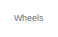
[diagram: root canvas - part 1/12, top center region]
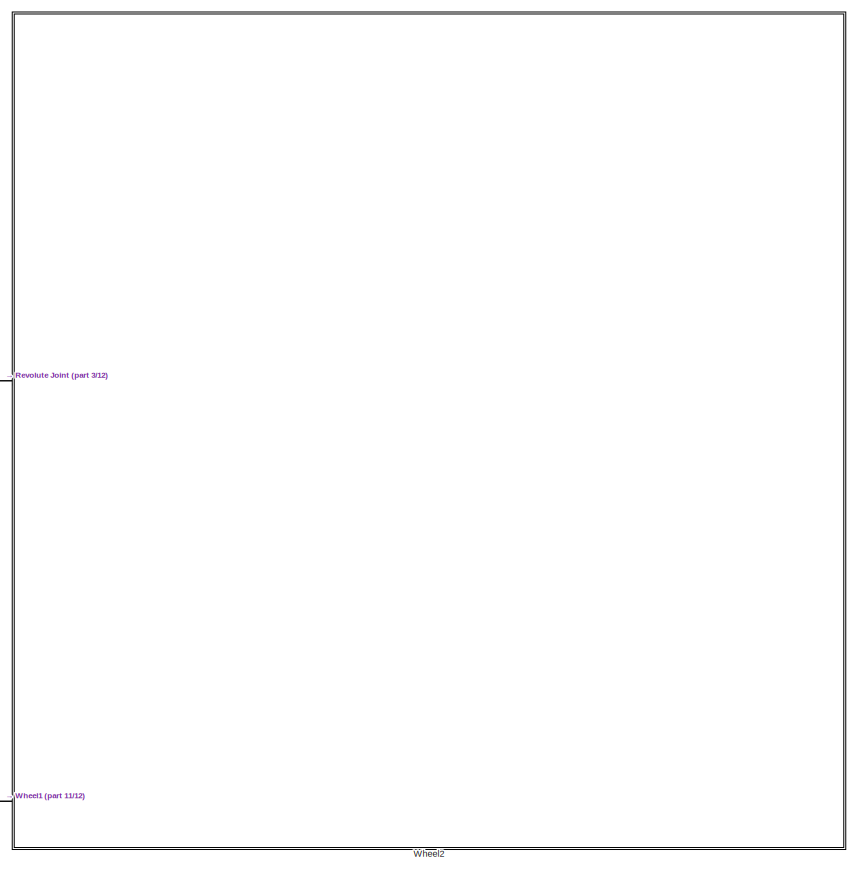
[diagram: root canvas - part 2/12, top right region]
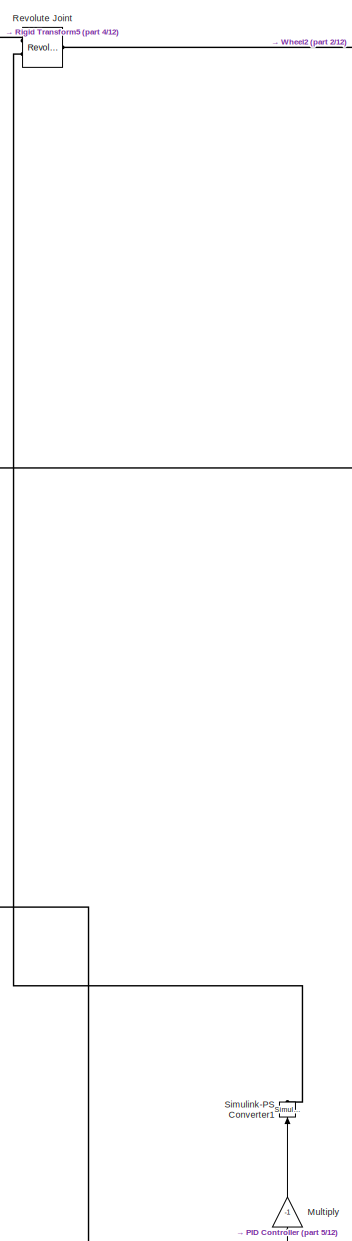
[diagram: root canvas - part 3/12, top center region]
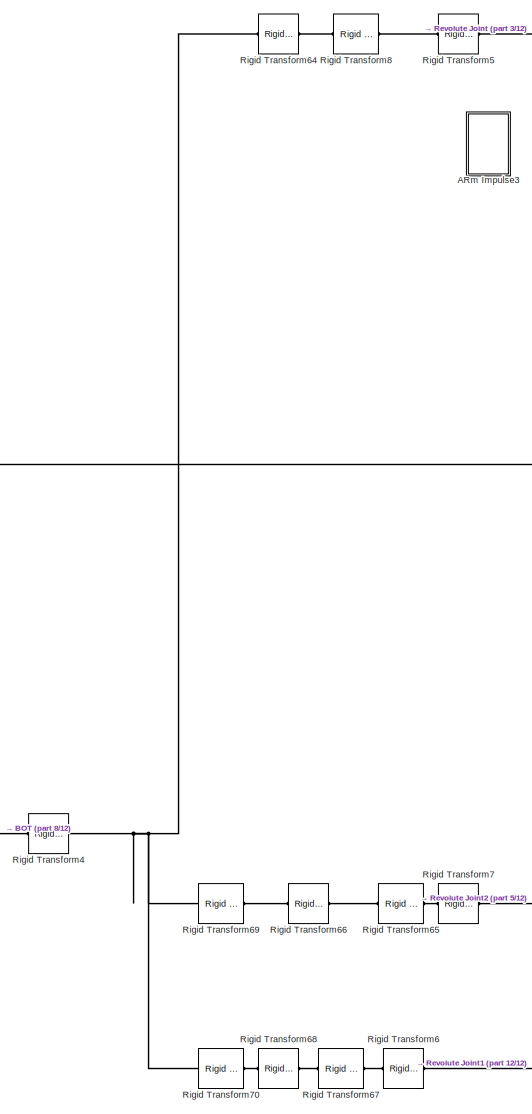
[diagram: root canvas - part 4/12, top center region]
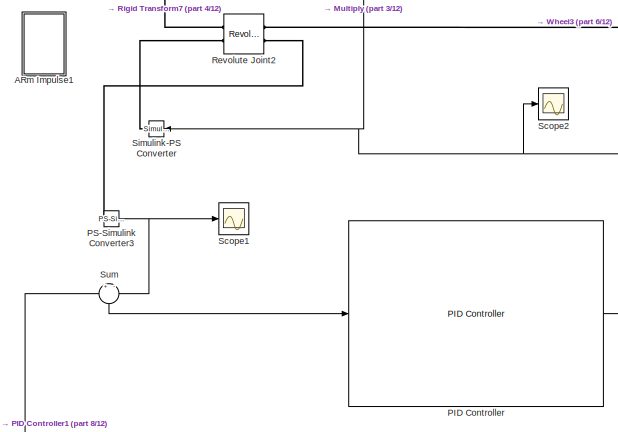
[diagram: root canvas - part 5/12, central region]
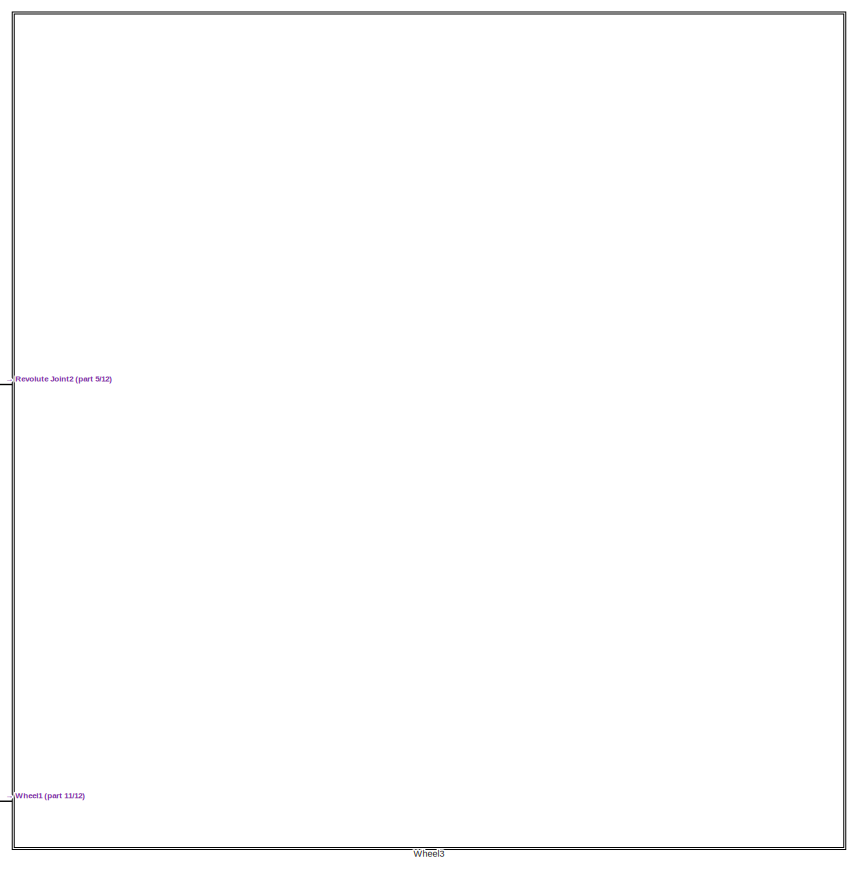
[diagram: root canvas - part 6/12, middle right region]
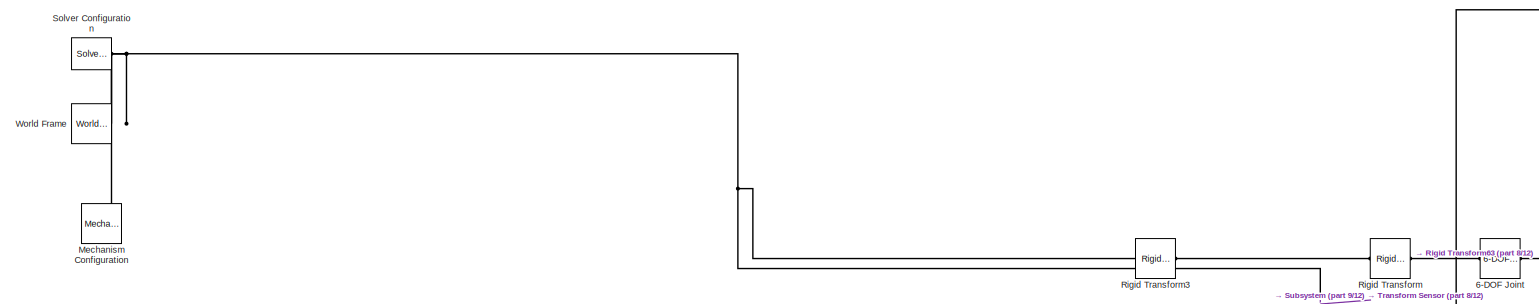
[diagram: root canvas - part 7/12, middle left region]
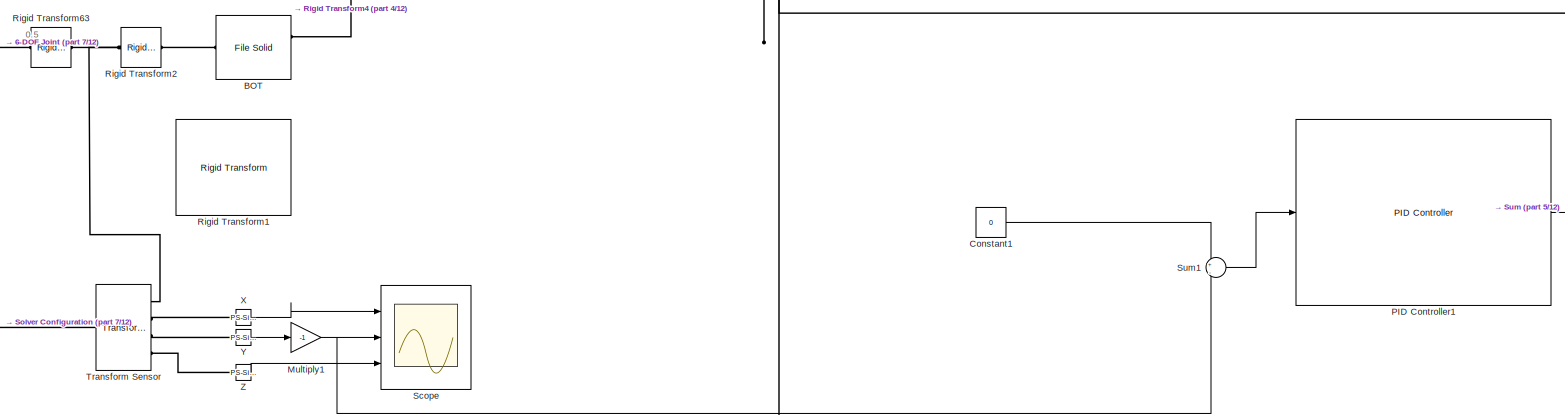
[diagram: root canvas - part 8/12, central region]
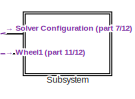
[diagram: root canvas - part 9/12, middle left region]
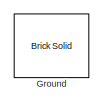
[diagram: root canvas - part 10/12, bottom left region]
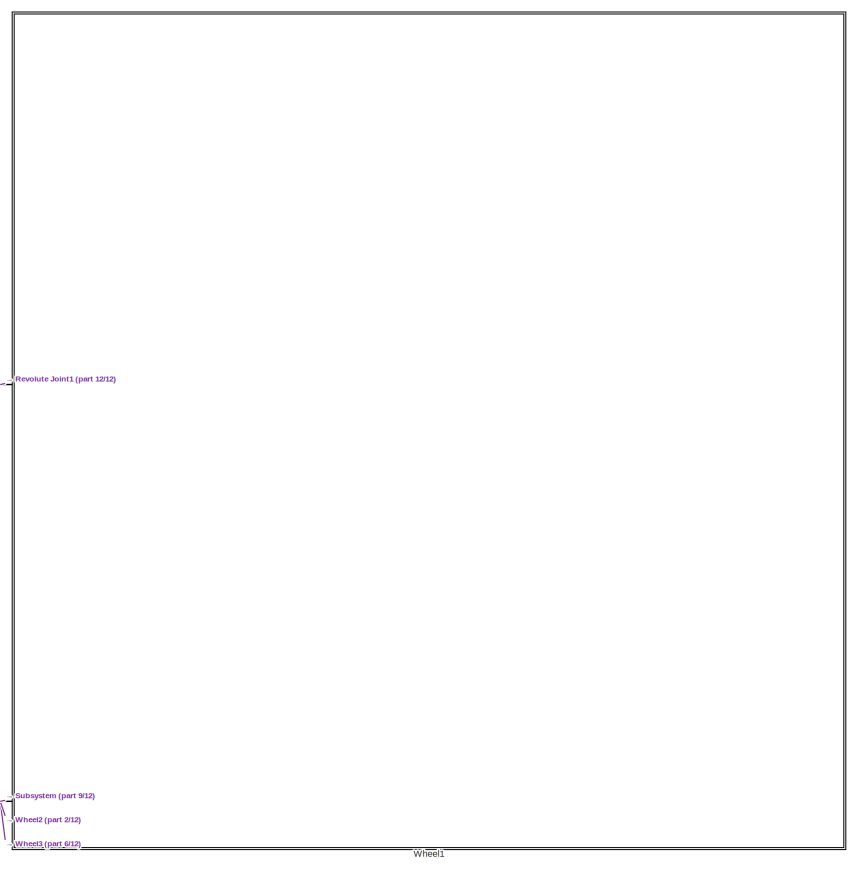
[diagram: root canvas - part 11/12, bottom right region]
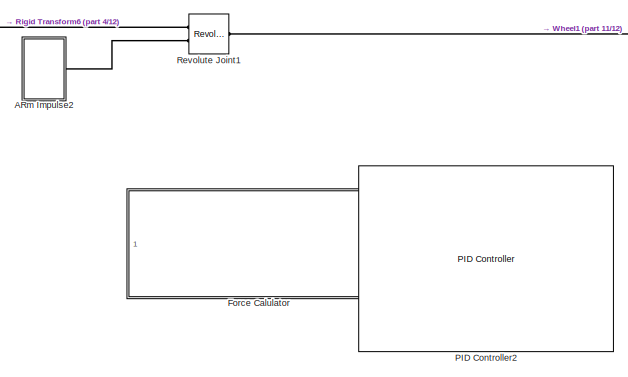
[diagram: root canvas - part 12/12, bottom center region]
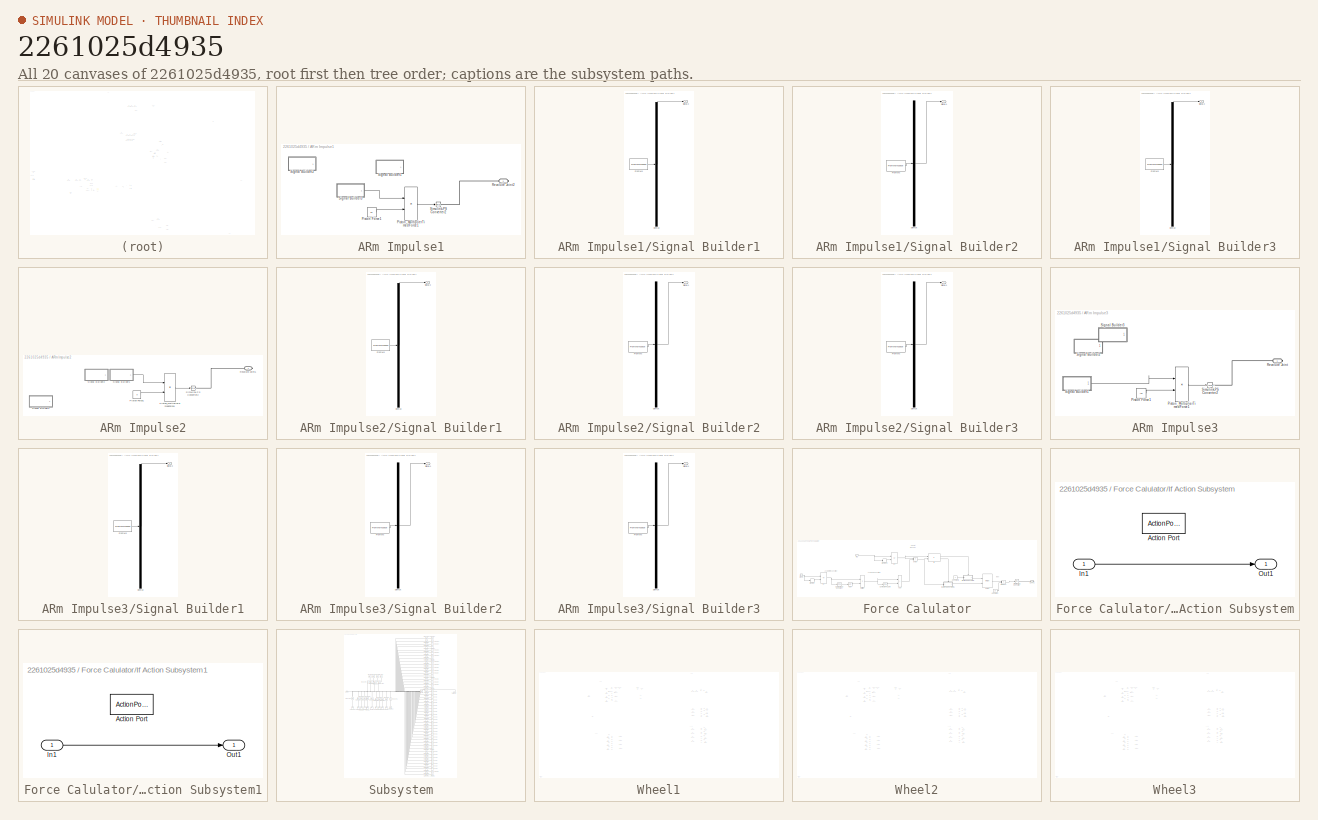
[diagram: thumbnail index - all 20 canvases of the model, root first then tree order]
MODEL slx_2261025d4935
KIND model
CONFIG AbsTol = auto
CONFIG EnableMultiTasking = on
CONFIG FixedStep = 0.0001 
CONFIG MaxStep = auto
CONFIG MinStep = auto
CONFIG RelTol = 1e-3
CONFIG SampleTimeConstraint = Unconstrained
CONFIG SolverName = ode3
CONFIG StartTime = 0.0
CONFIG StopTime = 8
BLOCK [Reference] 6-DOF Joint  REF=sm_lib/Joints/6-DOF Joint
  Ports = [0, 0, 0, 0, 0, 1, 1]
  SourceBlock = sm_lib/Joints/6-DOF Joint
  SourceProductBaseCode = MS
  SourceType = 6-DOF Joint
BLOCK [SubSystem] ARm Impulse1
  Commented = on
  Ports = [0, 0, 0, 0, 0, 0, 1]
  RequestExecContextInheritance = off
BLOCK [Constant] ARm Impulse1/Piston Force1
  Value = 10
BLOCK [Product] ARm Impulse1/Piston_MultiplierTimedForce1
  NameLocation = top
  Ports = [2, 1]
BLOCK [PMIOPort] ARm Impulse1/Revolute Joint2
  Side = Right
BLOCK [SubSystem] ARm Impulse1/Signal Builder1
  ClipboardFcn = sigbuilder_block('clipboard');
  CloseFcn = sigbuilder_block('close');
  Commented = on
  ContinueFcn = sigbuilder_block('continue');
  CopyFcn = sigbuilder_block('copy');
  DeleteFcn = sigbuilder_block('delete');
  LoadFcn = sigbuilder_block('load');
  MaskHideContents = on
  ModelCloseFcn = sigbuilder_block('modelClose');
  NameChangeFcn = sigbuilder_block('namechange');
  OpenFcn = sigbuilder_block('open',[65 140 831 459.2 ]);
  PauseFcn = sigbuilder_block('pause');
  Ports = [0, 1]
  PreSaveFcn = sigbuilder_block('preSave');
  RequestExecContextInheritance = off
  StartFcn = sigbuilder_block('start');
  StopFcn = sigbuilder_block('stop');
  Tag = STV Subsys
BLOCK [Demux] ARm Impulse1/Signal Builder1/Demux
  DisplayOption = none
  Outputs = 1
  Ports = [1, 1]
  Tag = STV Demux
BLOCK [FromWorkspace] ARm Impulse1/Signal Builder1/FromWs
  Tag = STV FromWs
  VariableName = tuvar
BLOCK [Outport] ARm Impulse1/Signal Builder1/Signal 2
  Tag = STV Outport
BLOCK [SubSystem] ARm Impulse1/Signal Builder2
  ClipboardFcn = sigbuilder_block('clipboard');
  CloseFcn = sigbuilder_block('close');
  Commented = on
  ContinueFcn = sigbuilder_block('continue');
  CopyFcn = sigbuilder_block('copy');
  DeleteFcn = sigbuilder_block('delete');
  LoadFcn = sigbuilder_block('load');
  MaskHideContents = on
  ModelCloseFcn = sigbuilder_block('modelClose');
  NameChangeFcn = sigbuilder_block('namechange');
  OpenFcn = sigbuilder_block('open',[411 153.6 550.8 400.2 ]);
  PauseFcn = sigbuilder_block('pause');
  Ports = [0, 1]
  PreSaveFcn = sigbuilder_block('preSave');
  RequestExecContextInheritance = off
  StartFcn = sigbuilder_block('start');
  StopFcn = sigbuilder_block('stop');
  Tag = STV Subsys
BLOCK [Demux] ARm Impulse1/Signal Builder2/Demux
  DisplayOption = none
  Outputs = 1
  Ports = [1, 1]
  Tag = STV Demux
BLOCK [FromWorkspace] ARm Impulse1/Signal Builder2/FromWs
  Tag = STV FromWs
  VariableName = tuvar
BLOCK [Outport] ARm Impulse1/Signal Builder2/Signal 1
  Tag = STV Outport
BLOCK [SubSystem] ARm Impulse1/Signal Builder3
  ClipboardFcn = sigbuilder_block('clipboard');
  CloseFcn = sigbuilder_block('close');
  ContinueFcn = sigbuilder_block('continue');
  CopyFcn = sigbuilder_block('copy');
  DeleteFcn = sigbuilder_block('delete');
  LoadFcn = sigbuilder_block('load');
  MaskHideContents = on
  ModelCloseFcn = sigbuilder_block('modelClose');
  NameChangeFcn = sigbuilder_block('namechange');
  OpenFcn = sigbuilder_block('open',[129 59.4 831 459.6 ]);
  PauseFcn = sigbuilder_block('pause');
  Ports = [0, 1]
  PreSaveFcn = sigbuilder_block('preSave');
  RequestExecContextInheritance = off
  StartFcn = sigbuilder_block('start');
  StopFcn = sigbuilder_block('stop');
  Tag = STV Subsys
BLOCK [Demux] ARm Impulse1/Signal Builder3/Demux
  DisplayOption = none
  Outputs = 1
  Ports = [1, 1]
  Tag = STV Demux
BLOCK [FromWorkspace] ARm Impulse1/Signal Builder3/FromWs
  Tag = STV FromWs
  VariableName = tuvar
BLOCK [Outport] ARm Impulse1/Signal Builder3/Signal 2
  Tag = STV Outport
BLOCK [Reference] ARm Impulse1/Simulink-PS Converter2  REF=nesl_utility/Simulink-PS
Converter
  Ports = [1, 0, 0, 0, 0, 0, 1]
  SourceBlock = nesl_utility/Simulink-PS\nConverter
  SourceProductBaseCode = SS
  SourceType = Simulink-PS\nConverter
BLOCK [SubSystem] ARm Impulse2
  Ports = [0, 0, 0, 0, 0, 0, 1]
  RequestExecContextInheritance = off
BLOCK [Constant] ARm Impulse2/Piston Force1
  Value = 0
BLOCK [Product] ARm Impulse2/Piston_MultiplierTimedForce1
  NameLocation = top
  Ports = [2, 1]
BLOCK [PMIOPort] ARm Impulse2/Revolute Joint1
  Side = Right
BLOCK [SubSystem] ARm Impulse2/Signal Builder1
  ClipboardFcn = sigbuilder_block('clipboard');
  CloseFcn = sigbuilder_block('close');
  ContinueFcn = sigbuilder_block('continue');
  CopyFcn = sigbuilder_block('copy');
  DeleteFcn = sigbuilder_block('delete');
  LoadFcn = sigbuilder_block('load');
  MaskHideContents = on
  ModelCloseFcn = sigbuilder_block('modelClose');
  NameChangeFcn = sigbuilder_block('namechange');
  OpenFcn = sigbuilder_block('open',[65 140 831 459.2 ]);
  PauseFcn = sigbuilder_block('pause');
  Ports = [0, 1]
  PreSaveFcn = sigbuilder_block('preSave');
  RequestExecContextInheritance = off
  StartFcn = sigbuilder_block('start');
  StopFcn = sigbuilder_block('stop');
  Tag = STV Subsys
BLOCK [Demux] ARm Impulse2/Signal Builder1/Demux
  DisplayOption = none
  Outputs = 1
  Ports = [1, 1]
  Tag = STV Demux
BLOCK [FromWorkspace] ARm Impulse2/Signal Builder1/FromWs
  Tag = STV FromWs
  VariableName = tuvar
BLOCK [Outport] ARm Impulse2/Signal Builder1/Signal 2
  Tag = STV Outport
BLOCK [SubSystem] ARm Impulse2/Signal Builder2
  ClipboardFcn = sigbuilder_block('clipboard');
  CloseFcn = sigbuilder_block('close');
  Commented = on
  ContinueFcn = sigbuilder_block('continue');
  CopyFcn = sigbuilder_block('copy');
  DeleteFcn = sigbuilder_block('delete');
  LoadFcn = sigbuilder_block('load');
  MaskHideContents = on
  ModelCloseFcn = sigbuilder_block('modelClose');
  NameChangeFcn = sigbuilder_block('namechange');
  OpenFcn = sigbuilder_block('open',[437.6 199.2 550.4 400 ]);
  PauseFcn = sigbuilder_block('pause');
  Ports = [0, 1]
  PreSaveFcn = sigbuilder_block('preSave');
  RequestExecContextInheritance = off
  StartFcn = sigbuilder_block('start');
  StopFcn = sigbuilder_block('stop');
  Tag = STV Subsys
BLOCK [Demux] ARm Impulse2/Signal Builder2/Demux
  DisplayOption = none
  Outputs = 1
  Ports = [1, 1]
  Tag = STV Demux
BLOCK [FromWorkspace] ARm Impulse2/Signal Builder2/FromWs
  Tag = STV FromWs
  VariableName = tuvar
BLOCK [Outport] ARm Impulse2/Signal Builder2/Signal 1
  Tag = STV Outport
BLOCK [SubSystem] ARm Impulse2/Signal Builder3
  ClipboardFcn = sigbuilder_block('clipboard');
  CloseFcn = sigbuilder_block('close');
  Commented = on
  ContinueFcn = sigbuilder_block('continue');
  CopyFcn = sigbuilder_block('copy');
  DeleteFcn = sigbuilder_block('delete');
  LoadFcn = sigbuilder_block('load');
  MaskHideContents = on
  ModelCloseFcn = sigbuilder_block('modelClose');
  NameChangeFcn = sigbuilder_block('namechange');
  OpenFcn = sigbuilder_block('open',[411 153.6 550.8 400.2 ]);
  PauseFcn = sigbuilder_block('pause');
  Ports = [0, 1]
  PreSaveFcn = sigbuilder_block('preSave');
  RequestExecContextInheritance = off
  StartFcn = sigbuilder_block('start');
  StopFcn = sigbuilder_block('stop');
  Tag = STV Subsys
BLOCK [Demux] ARm Impulse2/Signal Builder3/Demux
  DisplayOption = none
  Outputs = 1
  Ports = [1, 1]
  Tag = STV Demux
BLOCK [FromWorkspace] ARm Impulse2/Signal Builder3/FromWs
  Tag = STV FromWs
  VariableName = tuvar
BLOCK [Outport] ARm Impulse2/Signal Builder3/Signal 1
  Tag = STV Outport
BLOCK [Reference] ARm Impulse2/Simulink-PS Converter2  REF=nesl_utility/Simulink-PS
Converter
  Ports = [1, 0, 0, 0, 0, 0, 1]
  SourceBlock = nesl_utility/Simulink-PS\nConverter
  SourceProductBaseCode = SS
  SourceType = Simulink-PS\nConverter
BLOCK [SubSystem] ARm Impulse3
  Commented = on
  Ports = [0, 0, 0, 0, 0, 0, 1]
  RequestExecContextInheritance = off
BLOCK [Constant] ARm Impulse3/Piston Force1
  Value = -10
BLOCK [Product] ARm Impulse3/Piston_MultiplierTimedForce1
  NameLocation = top
  Ports = [2, 1]
BLOCK [PMIOPort] ARm Impulse3/Revolute Joint
  Side = Right
BLOCK [SubSystem] ARm Impulse3/Signal Builder1
  ClipboardFcn = sigbuilder_block('clipboard');
  CloseFcn = sigbuilder_block('close');
  ContinueFcn = sigbuilder_block('continue');
  CopyFcn = sigbuilder_block('copy');
  DeleteFcn = sigbuilder_block('delete');
  LoadFcn = sigbuilder_block('load');
  MaskHideContents = on
  ModelCloseFcn = sigbuilder_block('modelClose');
  NameChangeFcn = sigbuilder_block('namechange');
  OpenFcn = sigbuilder_block('open',[65 140 831 459.2 ]);
  PauseFcn = sigbuilder_block('pause');
  Ports = [0, 1]
  PreSaveFcn = sigbuilder_block('preSave');
  RequestExecContextInheritance = off
  StartFcn = sigbuilder_block('start');
  StopFcn = sigbuilder_block('stop');
  Tag = STV Subsys
BLOCK [Demux] ARm Impulse3/Signal Builder1/Demux
  DisplayOption = none
  Outputs = 1
  Ports = [1, 1]
  Tag = STV Demux
BLOCK [FromWorkspace] ARm Impulse3/Signal Builder1/FromWs
  Tag = STV FromWs
  VariableName = tuvar
BLOCK [Outport] ARm Impulse3/Signal Builder1/Signal 2
  Tag = STV Outport
BLOCK [SubSystem] ARm Impulse3/Signal Builder2
  ClipboardFcn = sigbuilder_block('clipboard');
  CloseFcn = sigbuilder_block('close');
  Commented = on
  ContinueFcn = sigbuilder_block('continue');
  CopyFcn = sigbuilder_block('copy');
  DeleteFcn = sigbuilder_block('delete');
  LoadFcn = sigbuilder_block('load');
  MaskHideContents = on
  ModelCloseFcn = sigbuilder_block('modelClose');
  NameChangeFcn = sigbuilder_block('namechange');
  OpenFcn = sigbuilder_block('open',[432 129.6 550.8 400.2 ]);
  PauseFcn = sigbuilder_block('pause');
  Ports = [0, 1]
  PreSaveFcn = sigbuilder_block('preSave');
  RequestExecContextInheritance = off
  StartFcn = sigbuilder_block('start');
  StopFcn = sigbuilder_block('stop');
  Tag = STV Subsys
BLOCK [Demux] ARm Impulse3/Signal Builder2/Demux
  DisplayOption = none
  Outputs = 1
  Ports = [1, 1]
  Tag = STV Demux
BLOCK [FromWorkspace] ARm Impulse3/Signal Builder2/FromWs
  Tag = STV FromWs
  VariableName = tuvar
BLOCK [Outport] ARm Impulse3/Signal Builder2/Signal 1
  Tag = STV Outport
BLOCK [SubSystem] ARm Impulse3/Signal Builder3
  ClipboardFcn = sigbuilder_block('clipboard');
  CloseFcn = sigbuilder_block('close');
  Commented = on
  ContinueFcn = sigbuilder_block('continue');
  CopyFcn = sigbuilder_block('copy');
  DeleteFcn = sigbuilder_block('delete');
  LoadFcn = sigbuilder_block('load');
  MaskHideContents = on
  ModelCloseFcn = sigbuilder_block('modelClose');
  NameChangeFcn = sigbuilder_block('namechange');
  OpenFcn = sigbuilder_block('open',[411 153.6 550.8 400.2 ]);
  PauseFcn = sigbuilder_block('pause');
  Ports = [0, 1]
  PreSaveFcn = sigbuilder_block('preSave');
  RequestExecContextInheritance = off
  StartFcn = sigbuilder_block('start');
  StopFcn = sigbuilder_block('stop');
  Tag = STV Subsys
BLOCK [Demux] ARm Impulse3/Signal Builder3/Demux
  DisplayOption = none
  Outputs = 1
  Ports = [1, 1]
  Tag = STV Demux
BLOCK [FromWorkspace] ARm Impulse3/Signal Builder3/FromWs
  Tag = STV FromWs
  VariableName = tuvar
BLOCK [Outport] ARm Impulse3/Signal Builder3/Signal 1
  Tag = STV Outport
BLOCK [Reference] ARm Impulse3/Simulink-PS Converter2  REF=nesl_utility/Simulink-PS
Converter
  Ports = [1, 0, 0, 0, 0, 0, 1]
  SourceBlock = nesl_utility/Simulink-PS\nConverter
  SourceProductBaseCode = SS
  SourceType = Simulink-PS\nConverter
BLOCK [Reference] BOT  REF=sm_lib/Body Elements/File Solid
  NameLocation = top
  Ports = [0, 0, 0, 0, 0, 2, 1]
  SourceBlock = sm_lib/Body Elements/File Solid
  SourceProductBaseCode = MS
  SourceType = File Solid
BLOCK [Constant] Constant1
  Value = 0
BLOCK [SubSystem] Force Calulator
  Commented = on
  Ports = [1, 0, 0, 0, 0, 0, 1]
  RequestExecContextInheritance = off
BLOCK [Sum] Force Calulator/Add
  IconShape = rectangular
  Ports = [2, 1]
BLOCK [Clock] Force Calulator/Clock
BLOCK [Reference] Force Calulator/Compare To Constant  REF=simulink/Logic and Bit
Operations/Compare
To Constant
  Ports = [1, 1]
  SourceBlock = simulink/Logic and Bit\nOperations/Compare\nTo Constant
  SourceProductBaseCode = SL
  SourceType = Compare To Constant
BLOCK [Reference] Force Calulator/Compare To Zero  REF=simulink/Logic and Bit
Operations/Compare
To Zero
  Ports = [1, 1]
  SourceBlock = simulink/Logic and Bit\nOperations/Compare\nTo Zero
  SourceProductBaseCode = SL
  SourceType = Compare To Zero
BLOCK [PMIOPort] Force Calulator/Conn1
  Side = Right
BLOCK [Constant] Force Calulator/Constant
  Value = 25
BLOCK [Constant] Force Calulator/Constant1
  Value = 0
BLOCK [Merge] Force Calulator/Force
  Ports = [2, 1]
BLOCK [SubSystem] Force Calulator/If Action Subsystem
  Ports = [1, 1, 0, 0, 0, 0, 0, 1]
  RequestExecContextInheritance = off
  TreatAsAtomicUnit = on
BLOCK [ActionPort] Force Calulator/If Action Subsystem/Action Port
  ActionPortLabel = if(u1 == u2)
BLOCK [Inport] Force Calulator/If Action Subsystem/In1
BLOCK [Outport] Force Calulator/If Action Subsystem/Out1
  VectorParamsAs1DForOutWhenUnconnected = off
BLOCK [SubSystem] Force Calulator/If Action Subsystem1
  Ports = [1, 1, 0, 0, 0, 0, 0, 1]
  RequestExecContextInheritance = off
  TreatAsAtomicUnit = on
BLOCK [ActionPort] Force Calulator/If Action Subsystem1/Action Port
  ActionPortLabel = else
BLOCK [Inport] Force Calulator/If Action Subsystem1/In1
BLOCK [Outport] Force Calulator/If Action Subsystem1/Out1
  VectorParamsAs1DForOutWhenUnconnected = off
BLOCK [If] Force Calulator/If1
  IfExpression = u1 == u2
  NumInputs = 2
  Ports = [2, 2]
BLOCK [Inport] Force Calulator/In1
BLOCK [Memory] Force Calulator/Memory
BLOCK [Memory] Force Calulator/Memory2
BLOCK [Product] Force Calulator/Multiply
  Ports = [2, 1]
BLOCK [Logic] Force Calulator/NOT
  AllPortsSameDT = off
  IconShape = distinctive
  Operator = NOT
  OutDataTypeStr = boolean
  Ports = [1, 1]
BLOCK [Product] Force Calulator/Product
  Ports = [2, 1]
BLOCK [Reference] Force Calulator/Simulink-PS Converter  REF=nesl_utility/Simulink-PS
Converter
  Ports = [1, 0, 0, 0, 0, 0, 1]
  SourceBlock = nesl_utility/Simulink-PS\nConverter
  SourceProductBaseCode = SS
  SourceType = Simulink-PS\nConverter
BLOCK [Sum] Force Calulator/dt
  IconShape = rectangular
  Inputs = +-
  Ports = [2, 1]
BLOCK [Sum] Force Calulator/dv
  IconShape = rectangular
  Inputs = +-
  Ports = [2, 1]
BLOCK [Product] Force Calulator/dv//dt
  Inputs = */
  Ports = [2, 1]
BLOCK [Reference] Ground  REF=sm_lib/Body Elements/Brick Solid
  Commented = on
  NameLocation = top
  Ports = [0, 0, 0, 0, 0, 3, 2]
  SourceBlock = sm_lib/Body Elements/Brick Solid
  SourceProductBaseCode = MS
  SourceType = Brick Solid
BLOCK [Reference] Mechanism Configuration  REF=sm_lib/Utilities/Mechanism
Configuration
  Ports = [0, 0, 0, 0, 0, 0, 1]
  SourceBlock = sm_lib/Utilities/Mechanism\nConfiguration
  SourceProductBaseCode = MS
  SourceType = Mechanism\nConfiguration
BLOCK [Gain] Multiply
  Gain = -1
  NameLocation = right
BLOCK [Gain] Multiply1
  Gain = -1
BLOCK [Reference] PID Controller  REF=pid_lib/PID Controller
  Ports = [1, 1]
  SourceBlock = pid_lib/PID Controller
  SourceProductBaseCode = SL
  SourceType = PID 1dof
BLOCK [Reference] PID Controller1  REF=pid_lib/PID Controller
  Ports = [1, 1]
  SourceBlock = pid_lib/PID Controller
  SourceProductBaseCode = SL
  SourceType = PID 1dof
BLOCK [Reference] PID Controller2  REF=pid_lib/PID Controller
  Ports = [1, 1]
  SourceBlock = pid_lib/PID Controller
  SourceProductBaseCode = SL
  SourceType = PID 1dof
BLOCK [Reference] PS-Simulink Converter3  REF=nesl_utility/PS-Simulink
Converter
  Ports = [0, 1, 0, 0, 0, 1]
  SourceBlock = nesl_utility/PS-Simulink\nConverter
  SourceProductBaseCode = SS
  SourceType = PS-Simulink\nConverter
BLOCK [Reference] Revolute Joint  REF=sm_lib/Joints/Revolute Joint
  Ports = [0, 0, 0, 0, 0, 2, 1]
  SourceBlock = sm_lib/Joints/Revolute Joint
  SourceProductBaseCode = MS
  SourceType = Revolute Joint
BLOCK [Reference] Revolute Joint1  REF=sm_lib/Joints/Revolute Joint
  Ports = [0, 0, 0, 0, 0, 2, 1]
  SourceBlock = sm_lib/Joints/Revolute Joint
  SourceProductBaseCode = MS
  SourceType = Revolute Joint
BLOCK [Reference] Revolute Joint2  REF=sm_lib/Joints/Revolute Joint
  Ports = [0, 0, 0, 0, 0, 2, 2]
  SourceBlock = sm_lib/Joints/Revolute Joint
  SourceProductBaseCode = MS
  SourceType = Revolute Joint
BLOCK [Reference] Rigid Transform  REF=sm_lib/Frames and
Transforms/Rigid
Transform
  Ports = [0, 0, 0, 0, 0, 1, 1]
  SourceBlock = sm_lib/Frames and\nTransforms/Rigid\nTransform
  SourceProductBaseCode = MS
  SourceType = Rigid\nTransform
BLOCK [Reference] Rigid Transform1  REF=sm_lib/Frames and
Transforms/Rigid
Transform
  Commented = on
  Ports = [0, 0, 0, 0, 0, 1, 1]
  SourceBlock = sm_lib/Frames and\nTransforms/Rigid\nTransform
  SourceProductBaseCode = MS
  SourceType = Rigid\nTransform
BLOCK [Reference] Rigid Transform2  REF=sm_lib/Frames and
Transforms/Rigid
Transform
  Ports = [0, 0, 0, 0, 0, 1, 1]
  SourceBlock = sm_lib/Frames and\nTransforms/Rigid\nTransform
  SourceProductBaseCode = MS
  SourceType = Rigid\nTransform
BLOCK [Reference] Rigid Transform3  REF=sm_lib/Frames and
Transforms/Rigid
Transform
  Ports = [0, 0, 0, 0, 0, 1, 1]
  SourceBlock = sm_lib/Frames and\nTransforms/Rigid\nTransform
  SourceProductBaseCode = MS
  SourceType = Rigid\nTransform
BLOCK [Reference] Rigid Transform4  REF=sm_lib/Frames and
Transforms/Rigid
Transform
  Ports = [0, 0, 0, 0, 0, 1, 1]
  SourceBlock = sm_lib/Frames and\nTransforms/Rigid\nTransform
  SourceProductBaseCode = MS
  SourceType = Rigid\nTransform
BLOCK [Reference] Rigid Transform5  REF=sm_lib/Frames and
Transforms/Rigid
Transform
  Ports = [0, 0, 0, 0, 0, 1, 1]
  SourceBlock = sm_lib/Frames and\nTransforms/Rigid\nTransform
  SourceProductBaseCode = MS
  SourceType = Rigid\nTransform
BLOCK [Reference] Rigid Transform6  REF=sm_lib/Frames and
Transforms/Rigid
Transform
  Ports = [0, 0, 0, 0, 0, 1, 1]
  SourceBlock = sm_lib/Frames and\nTransforms/Rigid\nTransform
  SourceProductBaseCode = MS
  SourceType = Rigid\nTransform
BLOCK [Reference] Rigid Transform63  REF=sm_lib/Frames and
Transforms/Rigid
Transform
  Ports = [0, 0, 0, 0, 0, 1, 1]
  SourceBlock = sm_lib/Frames and\nTransforms/Rigid\nTransform
  SourceProductBaseCode = MS
  SourceType = Rigid\nTransform
BLOCK [Reference] Rigid Transform64  REF=sm_lib/Frames and
Transforms/Rigid
Transform
  Ports = [0, 0, 0, 0, 0, 1, 1]
  SourceBlock = sm_lib/Frames and\nTransforms/Rigid\nTransform
  SourceProductBaseCode = MS
  SourceType = Rigid\nTransform
BLOCK [Reference] Rigid Transform65  REF=sm_lib/Frames and
Transforms/Rigid
Transform
  Ports = [0, 0, 0, 0, 0, 1, 1]
  SourceBlock = sm_lib/Frames and\nTransforms/Rigid\nTransform
  SourceProductBaseCode = MS
  SourceType = Rigid\nTransform
BLOCK [Reference] Rigid Transform66  REF=sm_lib/Frames and
Transforms/Rigid
Transform
  Ports = [0, 0, 0, 0, 0, 1, 1]
  SourceBlock = sm_lib/Frames and\nTransforms/Rigid\nTransform
  SourceProductBaseCode = MS
  SourceType = Rigid\nTransform
BLOCK [Reference] Rigid Transform67  REF=sm_lib/Frames and
Transforms/Rigid
Transform
  Ports = [0, 0, 0, 0, 0, 1, 1]
  SourceBlock = sm_lib/Frames and\nTransforms/Rigid\nTransform
  SourceProductBaseCode = MS
  SourceType = Rigid\nTransform
BLOCK [Reference] Rigid Transform68  REF=sm_lib/Frames and
Transforms/Rigid
Transform
  Ports = [0, 0, 0, 0, 0, 1, 1]
  SourceBlock = sm_lib/Frames and\nTransforms/Rigid\nTransform
  SourceProductBaseCode = MS
  SourceType = Rigid\nTransform
BLOCK [Reference] Rigid Transform69  REF=sm_lib/Frames and
Transforms/Rigid
Transform
  Ports = [0, 0, 0, 0, 0, 1, 1]
  SourceBlock = sm_lib/Frames and\nTransforms/Rigid\nTransform
  SourceProductBaseCode = MS
  SourceType = Rigid\nTransform
BLOCK [Reference] Rigid Transform7  REF=sm_lib/Frames and
Transforms/Rigid
Transform
  Ports = [0, 0, 0, 0, 0, 1, 1]
  SourceBlock = sm_lib/Frames and\nTransforms/Rigid\nTransform
  SourceProductBaseCode = MS
  SourceType = Rigid\nTransform
BLOCK [Reference] Rigid Transform70  REF=sm_lib/Frames and
Transforms/Rigid
Transform
  Ports = [0, 0, 0, 0, 0, 1, 1]
  SourceBlock = sm_lib/Frames and\nTransforms/Rigid\nTransform
  SourceProductBaseCode = MS
  SourceType = Rigid\nTransform
BLOCK [Reference] Rigid Transform8  REF=sm_lib/Frames and
Transforms/Rigid
Transform
  Ports = [0, 0, 0, 0, 0, 1, 1]
  SourceBlock = sm_lib/Frames and\nTransforms/Rigid\nTransform
  SourceProductBaseCode = MS
  SourceType = Rigid\nTransform
BLOCK [Scope] Scope
  Floating = off
  NumInputPorts = 3
  Ports = [3]
  ScopeSpecificationString = Simulink.scopes.TimeScopeBlockCfg('CurrentConfiguration', extmgr.ConfigurationSet(extmgr.Configuration('Core','General UI',true),extmgr.Configuration('Core','Source UI',true),extmgr.Configuration('Sources','WiredSimulink',true,'DataLoggingLimitDataPoints',true,'DataLoggingSaveFormat','Array','DataLoggingDecimation','1'),extmgr.Configuration('Visuals','Time Domain',true,'SerializedDisplays',{struct...<+1753ch>
BLOCK [Scope] Scope1
  Floating = off
  NumInputPorts = 1
  Ports = [1]
  ScopeSpecificationString = Simulink.scopes.TimeScopeBlockCfg('CurrentConfiguration', extmgr.ConfigurationSet(extmgr.Configuration('Core','General UI',true),extmgr.Configuration('Core','Source UI',true),extmgr.Configuration('Sources','WiredSimulink',true,'DataLoggingVariableName','ScopeData1'),extmgr.Configuration('Visuals','Time Domain',true,'SerializedDisplays',{struct('MinYLimReal','-14.30524','MaxYLimReal','59.25835','YL...<+1420ch>
BLOCK [Scope] Scope2
  Floating = off
  NumInputPorts = 1
  Ports = [1]
  ScopeSpecificationString = Simulink.scopes.TimeScopeBlockCfg('CurrentConfiguration', extmgr.ConfigurationSet(extmgr.Configuration('Core','General UI',true),extmgr.Configuration('Core','Source UI',true),extmgr.Configuration('Sources','WiredSimulink',true,'DataLoggingLimitDataPoints',true,'DataLoggingSaveFormat','Array','DataLoggingDecimation','1','DataLoggingVariableName','ScopeData1'),extmgr.Configuration('Visuals','Time Do...<+1678ch>
BLOCK [Reference] Simulink-PS Converter  REF=nesl_utility/Simulink-PS
Converter
  NameLocation = top
  Ports = [1, 0, 0, 0, 0, 0, 1]
  SourceBlock = nesl_utility/Simulink-PS\nConverter
  SourceProductBaseCode = SS
  SourceType = Simulink-PS\nConverter
BLOCK [Reference] Simulink-PS Converter1  REF=nesl_utility/Simulink-PS
Converter
  NameLocation = right
  Ports = [1, 0, 0, 0, 0, 0, 1]
  SourceBlock = nesl_utility/Simulink-PS\nConverter
  SourceProductBaseCode = SS
  SourceType = Simulink-PS\nConverter
BLOCK [Reference] Solver Configuration  REF=nesl_utility/Solver
Configuration
  Ports = [0, 0, 0, 0, 0, 0, 1]
  SourceBlock = nesl_utility/Solver\nConfiguration
  SourceProductBaseCode = SS
  SourceType = Solver\nConfiguration
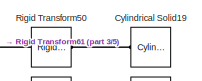
[diagram: Subsystem - part 1/5, top right region]
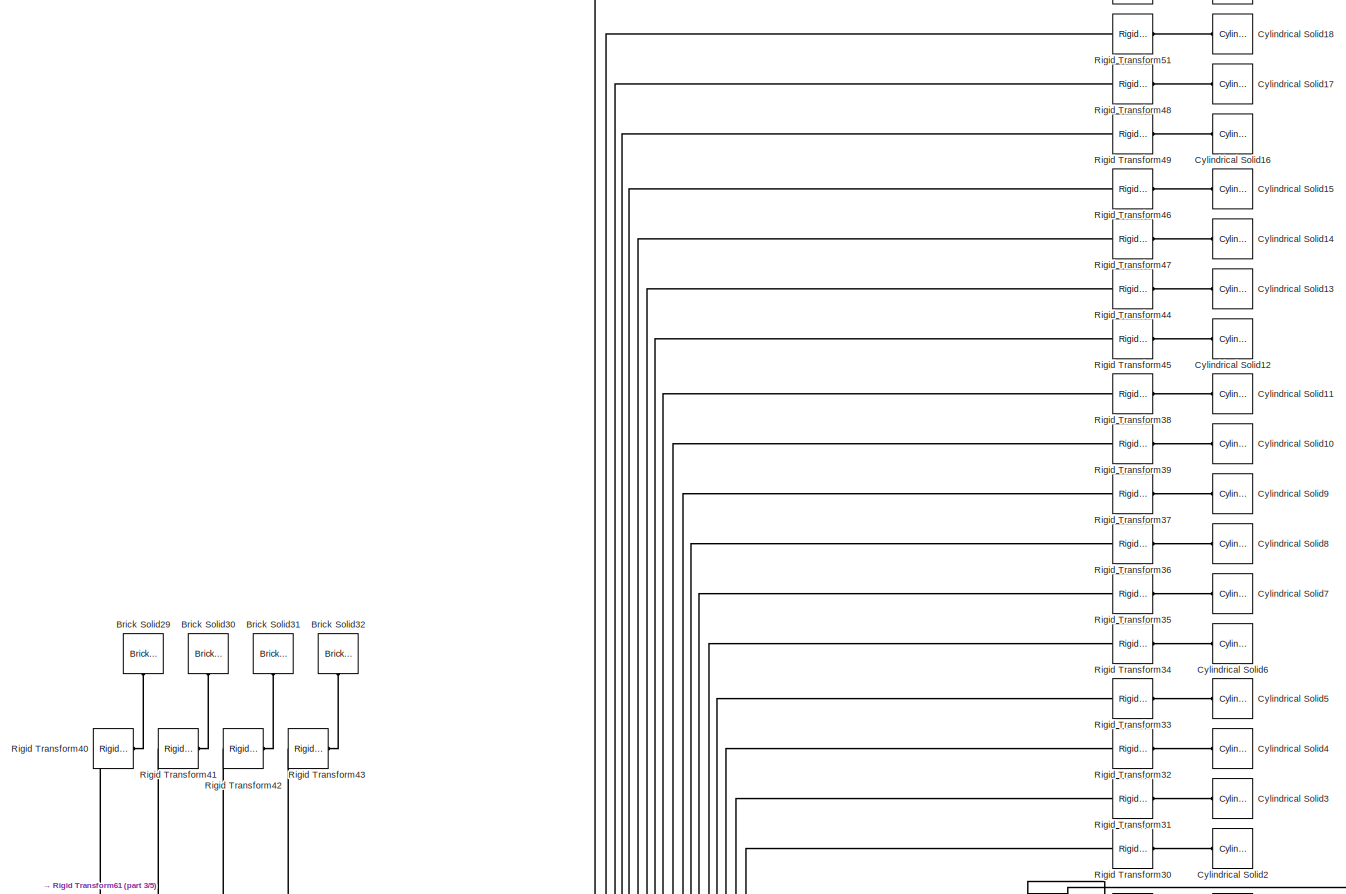
[diagram: Subsystem - part 2/5, top center region]
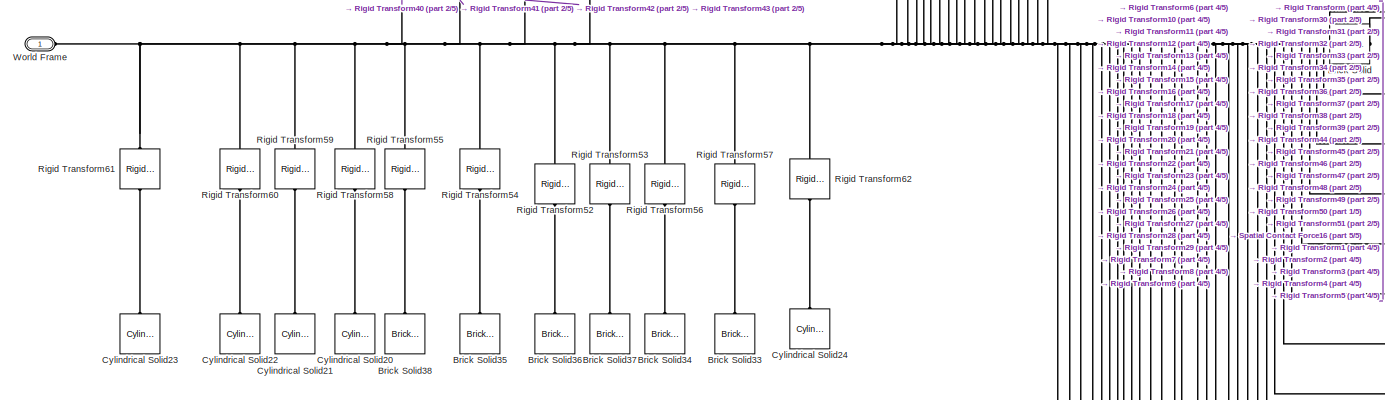
[diagram: Subsystem - part 3/5, central region]
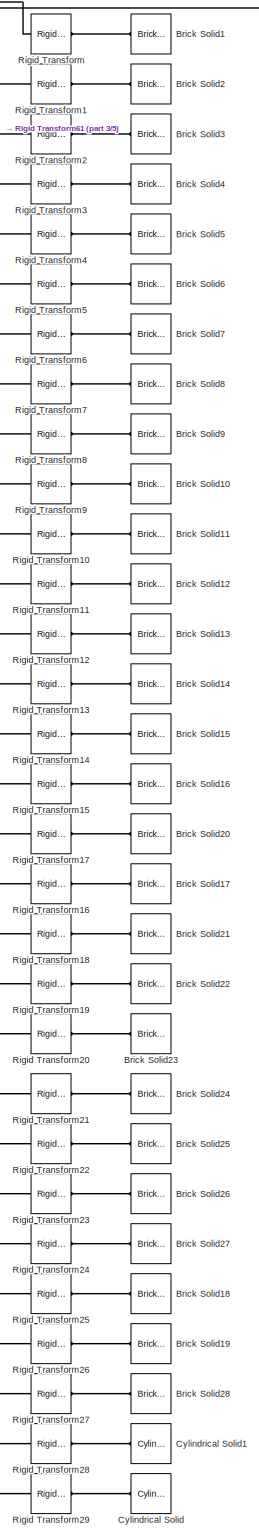
[diagram: Subsystem - part 4/5, bottom right region]
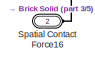
[diagram: Subsystem - part 5/5, middle right region]
BLOCK [SubSystem] Subsystem
  Ports = [0, 0, 0, 0, 0, 2]
  RequestExecContextInheritance = off
BLOCK [Reference] Subsystem/Brick Solid  REF=sm_lib/Body Elements/Brick Solid
  NameLocation = top
  Ports = [0, 0, 0, 0, 0, 1, 1]
  SourceBlock = sm_lib/Body Elements/Brick Solid
  SourceProductBaseCode = MS
  SourceType = Brick Solid
BLOCK [Reference] Subsystem/Brick Solid1  REF=sm_lib/Body Elements/Brick Solid
  NameLocation = top
  Ports = [0, 0, 0, 0, 0, 0, 1]
  SourceBlock = sm_lib/Body Elements/Brick Solid
  SourceProductBaseCode = MS
  SourceType = Brick Solid
BLOCK [Reference] Subsystem/Brick Solid10  REF=sm_lib/Body Elements/Brick Solid
  NameLocation = top
  Ports = [0, 0, 0, 0, 0, 0, 1]
  SourceBlock = sm_lib/Body Elements/Brick Solid
  SourceProductBaseCode = MS
  SourceType = Brick Solid
BLOCK [Reference] Subsystem/Brick Solid11  REF=sm_lib/Body Elements/Brick Solid
  NameLocation = top
  Ports = [0, 0, 0, 0, 0, 0, 1]
  SourceBlock = sm_lib/Body Elements/Brick Solid
  SourceProductBaseCode = MS
  SourceType = Brick Solid
BLOCK [Reference] Subsystem/Brick Solid12  REF=sm_lib/Body Elements/Brick Solid
  NameLocation = top
  Ports = [0, 0, 0, 0, 0, 0, 1]
  SourceBlock = sm_lib/Body Elements/Brick Solid
  SourceProductBaseCode = MS
  SourceType = Brick Solid
BLOCK [Reference] Subsystem/Brick Solid13  REF=sm_lib/Body Elements/Brick Solid
  NameLocation = top
  Ports = [0, 0, 0, 0, 0, 0, 1]
  SourceBlock = sm_lib/Body Elements/Brick Solid
  SourceProductBaseCode = MS
  SourceType = Brick Solid
BLOCK [Reference] Subsystem/Brick Solid14  REF=sm_lib/Body Elements/Brick Solid
  NameLocation = top
  Ports = [0, 0, 0, 0, 0, 0, 1]
  SourceBlock = sm_lib/Body Elements/Brick Solid
  SourceProductBaseCode = MS
  SourceType = Brick Solid
BLOCK [Reference] Subsystem/Brick Solid15  REF=sm_lib/Body Elements/Brick Solid
  NameLocation = top
  Ports = [0, 0, 0, 0, 0, 0, 1]
  SourceBlock = sm_lib/Body Elements/Brick Solid
  SourceProductBaseCode = MS
  SourceType = Brick Solid
BLOCK [Reference] Subsystem/Brick Solid16  REF=sm_lib/Body Elements/Brick Solid
  NameLocation = top
  Ports = [0, 0, 0, 0, 0, 0, 1]
  SourceBlock = sm_lib/Body Elements/Brick Solid
  SourceProductBaseCode = MS
  SourceType = Brick Solid
BLOCK [Reference] Subsystem/Brick Solid17  REF=sm_lib/Body Elements/Brick Solid
  NameLocation = top
  Ports = [0, 0, 0, 0, 0, 0, 1]
  SourceBlock = sm_lib/Body Elements/Brick Solid
  SourceProductBaseCode = MS
  SourceType = Brick Solid
BLOCK [Reference] Subsystem/Brick Solid18  REF=sm_lib/Body Elements/Brick Solid
  NameLocation = top
  Ports = [0, 0, 0, 0, 0, 0, 1]
  SourceBlock = sm_lib/Body Elements/Brick Solid
  SourceProductBaseCode = MS
  SourceType = Brick Solid
BLOCK [Reference] Subsystem/Brick Solid19  REF=sm_lib/Body Elements/Brick Solid
  NameLocation = top
  Ports = [0, 0, 0, 0, 0, 0, 1]
  SourceBlock = sm_lib/Body Elements/Brick Solid
  SourceProductBaseCode = MS
  SourceType = Brick Solid
BLOCK [Reference] Subsystem/Brick Solid2  REF=sm_lib/Body Elements/Brick Solid
  NameLocation = top
  Ports = [0, 0, 0, 0, 0, 0, 1]
  SourceBlock = sm_lib/Body Elements/Brick Solid
  SourceProductBaseCode = MS
  SourceType = Brick Solid
BLOCK [Reference] Subsystem/Brick Solid20  REF=sm_lib/Body Elements/Brick Solid
  NameLocation = top
  Ports = [0, 0, 0, 0, 0, 0, 1]
  SourceBlock = sm_lib/Body Elements/Brick Solid
  SourceProductBaseCode = MS
  SourceType = Brick Solid
BLOCK [Reference] Subsystem/Brick Solid21  REF=sm_lib/Body Elements/Brick Solid
  NameLocation = top
  Ports = [0, 0, 0, 0, 0, 0, 1]
  SourceBlock = sm_lib/Body Elements/Brick Solid
  SourceProductBaseCode = MS
  SourceType = Brick Solid
BLOCK [Reference] Subsystem/Brick Solid22  REF=sm_lib/Body Elements/Brick Solid
  NameLocation = top
  Ports = [0, 0, 0, 0, 0, 0, 1]
  SourceBlock = sm_lib/Body Elements/Brick Solid
  SourceProductBaseCode = MS
  SourceType = Brick Solid
BLOCK [Reference] Subsystem/Brick Solid23  REF=sm_lib/Body Elements/Brick Solid
  NameLocation = top
  Ports = [0, 0, 0, 0, 0, 0, 1]
  SourceBlock = sm_lib/Body Elements/Brick Solid
  SourceProductBaseCode = MS
  SourceType = Brick Solid
BLOCK [Reference] Subsystem/Brick Solid24  REF=sm_lib/Body Elements/Brick Solid
  NameLocation = top
  Ports = [0, 0, 0, 0, 0, 0, 1]
  SourceBlock = sm_lib/Body Elements/Brick Solid
  SourceProductBaseCode = MS
  SourceType = Brick Solid
BLOCK [Reference] Subsystem/Brick Solid25  REF=sm_lib/Body Elements/Brick Solid
  NameLocation = top
  Ports = [0, 0, 0, 0, 0, 0, 1]
  SourceBlock = sm_lib/Body Elements/Brick Solid
  SourceProductBaseCode = MS
  SourceType = Brick Solid
BLOCK [Reference] Subsystem/Brick Solid26  REF=sm_lib/Body Elements/Brick Solid
  NameLocation = top
  Ports = [0, 0, 0, 0, 0, 0, 1]
  SourceBlock = sm_lib/Body Elements/Brick Solid
  SourceProductBaseCode = MS
  SourceType = Brick Solid
BLOCK [Reference] Subsystem/Brick Solid27  REF=sm_lib/Body Elements/Brick Solid
  NameLocation = top
  Ports = [0, 0, 0, 0, 0, 0, 1]
  SourceBlock = sm_lib/Body Elements/Brick Solid
  SourceProductBaseCode = MS
  SourceType = Brick Solid
BLOCK [Reference] Subsystem/Brick Solid28  REF=sm_lib/Body Elements/Brick Solid
  NameLocation = top
  Ports = [0, 0, 0, 0, 0, 0, 1]
  SourceBlock = sm_lib/Body Elements/Brick Solid
  SourceProductBaseCode = MS
  SourceType = Brick Solid
BLOCK [Reference] Subsystem/Brick Solid29  REF=sm_lib/Body Elements/Brick Solid
  NameLocation = left
  Ports = [0, 0, 0, 0, 0, 0, 1]
  SourceBlock = sm_lib/Body Elements/Brick Solid
  SourceProductBaseCode = MS
  SourceType = Brick Solid
BLOCK [Reference] Subsystem/Brick Solid3  REF=sm_lib/Body Elements/Brick Solid
  NameLocation = top
  Ports = [0, 0, 0, 0, 0, 0, 1]
  SourceBlock = sm_lib/Body Elements/Brick Solid
  SourceProductBaseCode = MS
  SourceType = Brick Solid
BLOCK [Reference] Subsystem/Brick Solid30  REF=sm_lib/Body Elements/Brick Solid
  NameLocation = left
  Ports = [0, 0, 0, 0, 0, 0, 1]
  SourceBlock = sm_lib/Body Elements/Brick Solid
  SourceProductBaseCode = MS
  SourceType = Brick Solid
BLOCK [Reference] Subsystem/Brick Solid31  REF=sm_lib/Body Elements/Brick Solid
  NameLocation = left
  Ports = [0, 0, 0, 0, 0, 0, 1]
  SourceBlock = sm_lib/Body Elements/Brick Solid
  SourceProductBaseCode = MS
  SourceType = Brick Solid
BLOCK [Reference] Subsystem/Brick Solid32  REF=sm_lib/Body Elements/Brick Solid
  NameLocation = left
  Ports = [0, 0, 0, 0, 0, 0, 1]
  SourceBlock = sm_lib/Body Elements/Brick Solid
  SourceProductBaseCode = MS
  SourceType = Brick Solid
BLOCK [Reference] Subsystem/Brick Solid33  REF=sm_lib/Body Elements/Brick Solid
  NameLocation = right
  Ports = [0, 0, 0, 0, 0, 0, 1]
  SourceBlock = sm_lib/Body Elements/Brick Solid
  SourceProductBaseCode = MS
  SourceType = Brick Solid
BLOCK [Reference] Subsystem/Brick Solid34  REF=sm_lib/Body Elements/Brick Solid
  NameLocation = right
  Ports = [0, 0, 0, 0, 0, 0, 1]
  SourceBlock = sm_lib/Body Elements/Brick Solid
  SourceProductBaseCode = MS
  SourceType = Brick Solid
BLOCK [Reference] Subsystem/Brick Solid35  REF=sm_lib/Body Elements/Brick Solid
  NameLocation = right
  Ports = [0, 0, 0, 0, 0, 0, 1]
  SourceBlock = sm_lib/Body Elements/Brick Solid
  SourceProductBaseCode = MS
  SourceType = Brick Solid
BLOCK [Reference] Subsystem/Brick Solid36  REF=sm_lib/Body Elements/Brick Solid
  NameLocation = right
  Ports = [0, 0, 0, 0, 0, 0, 1]
  SourceBlock = sm_lib/Body Elements/Brick Solid
  SourceProductBaseCode = MS
  SourceType = Brick Solid
BLOCK [Reference] Subsystem/Brick Solid37  REF=sm_lib/Body Elements/Brick Solid
  NameLocation = right
  Ports = [0, 0, 0, 0, 0, 0, 1]
  SourceBlock = sm_lib/Body Elements/Brick Solid
  SourceProductBaseCode = MS
  SourceType = Brick Solid
BLOCK [Reference] Subsystem/Brick Solid38  REF=sm_lib/Body Elements/Brick Solid
  NameLocation = right
  Ports = [0, 0, 0, 0, 0, 0, 1]
  SourceBlock = sm_lib/Body Elements/Brick Solid
  SourceProductBaseCode = MS
  SourceType = Brick Solid
BLOCK [Reference] Subsystem/Brick Solid4  REF=sm_lib/Body Elements/Brick Solid
  NameLocation = top
  Ports = [0, 0, 0, 0, 0, 0, 1]
  SourceBlock = sm_lib/Body Elements/Brick Solid
  SourceProductBaseCode = MS
  SourceType = Brick Solid
BLOCK [Reference] Subsystem/Brick Solid5  REF=sm_lib/Body Elements/Brick Solid
  NameLocation = top
  Ports = [0, 0, 0, 0, 0, 0, 1]
  SourceBlock = sm_lib/Body Elements/Brick Solid
  SourceProductBaseCode = MS
  SourceType = Brick Solid
BLOCK [Reference] Subsystem/Brick Solid6  REF=sm_lib/Body Elements/Brick Solid
  NameLocation = top
  Ports = [0, 0, 0, 0, 0, 0, 1]
  SourceBlock = sm_lib/Body Elements/Brick Solid
  SourceProductBaseCode = MS
  SourceType = Brick Solid
BLOCK [Reference] Subsystem/Brick Solid7  REF=sm_lib/Body Elements/Brick Solid
  NameLocation = top
  Ports = [0, 0, 0, 0, 0, 0, 1]
  SourceBlock = sm_lib/Body Elements/Brick Solid
  SourceProductBaseCode = MS
  SourceType = Brick Solid
BLOCK [Reference] Subsystem/Brick Solid8  REF=sm_lib/Body Elements/Brick Solid
  NameLocation = top
  Ports = [0, 0, 0, 0, 0, 0, 1]
  SourceBlock = sm_lib/Body Elements/Brick Solid
  SourceProductBaseCode = MS
  SourceType = Brick Solid
BLOCK [Reference] Subsystem/Brick Solid9  REF=sm_lib/Body Elements/Brick Solid
  NameLocation = top
  Ports = [0, 0, 0, 0, 0, 0, 1]
  SourceBlock = sm_lib/Body Elements/Brick Solid
  SourceProductBaseCode = MS
  SourceType = Brick Solid
BLOCK [Reference] Subsystem/Cylindrical Solid  REF=sm_lib/Body Elements/Cylindrical Solid
  NameLocation = top
  Ports = [0, 0, 0, 0, 0, 0, 1]
  SourceBlock = sm_lib/Body Elements/Cylindrical Solid
  SourceProductBaseCode = MS
  SourceType = Cylindrical Solid
BLOCK [Reference] Subsystem/Cylindrical Solid1  REF=sm_lib/Body Elements/Cylindrical Solid
  NameLocation = top
  Ports = [0, 0, 0, 0, 0, 0, 1]
  SourceBlock = sm_lib/Body Elements/Cylindrical Solid
  SourceProductBaseCode = MS
  SourceType = Cylindrical Solid
BLOCK [Reference] Subsystem/Cylindrical Solid10  REF=sm_lib/Body Elements/Cylindrical Solid
  NameLocation = top
  Ports = [0, 0, 0, 0, 0, 0, 1]
  SourceBlock = sm_lib/Body Elements/Cylindrical Solid
  SourceProductBaseCode = MS
  SourceType = Cylindrical Solid
BLOCK [Reference] Subsystem/Cylindrical Solid11  REF=sm_lib/Body Elements/Cylindrical Solid
  NameLocation = top
  Ports = [0, 0, 0, 0, 0, 0, 1]
  SourceBlock = sm_lib/Body Elements/Cylindrical Solid
  SourceProductBaseCode = MS
  SourceType = Cylindrical Solid
BLOCK [Reference] Subsystem/Cylindrical Solid12  REF=sm_lib/Body Elements/Cylindrical Solid
  NameLocation = top
  Ports = [0, 0, 0, 0, 0, 0, 1]
  SourceBlock = sm_lib/Body Elements/Cylindrical Solid
  SourceProductBaseCode = MS
  SourceType = Cylindrical Solid
BLOCK [Reference] Subsystem/Cylindrical Solid13  REF=sm_lib/Body Elements/Cylindrical Solid
  NameLocation = top
  Ports = [0, 0, 0, 0, 0, 0, 1]
  SourceBlock = sm_lib/Body Elements/Cylindrical Solid
  SourceProductBaseCode = MS
  SourceType = Cylindrical Solid
BLOCK [Reference] Subsystem/Cylindrical Solid14  REF=sm_lib/Body Elements/Cylindrical Solid
  NameLocation = top
  Ports = [0, 0, 0, 0, 0, 0, 1]
  SourceBlock = sm_lib/Body Elements/Cylindrical Solid
  SourceProductBaseCode = MS
  SourceType = Cylindrical Solid
BLOCK [Reference] Subsystem/Cylindrical Solid15  REF=sm_lib/Body Elements/Cylindrical Solid
  NameLocation = top
  Ports = [0, 0, 0, 0, 0, 0, 1]
  SourceBlock = sm_lib/Body Elements/Cylindrical Solid
  SourceProductBaseCode = MS
  SourceType = Cylindrical Solid
BLOCK [Reference] Subsystem/Cylindrical Solid16  REF=sm_lib/Body Elements/Cylindrical Solid
  NameLocation = top
  Ports = [0, 0, 0, 0, 0, 0, 1]
  SourceBlock = sm_lib/Body Elements/Cylindrical Solid
  SourceProductBaseCode = MS
  SourceType = Cylindrical Solid
BLOCK [Reference] Subsystem/Cylindrical Solid17  REF=sm_lib/Body Elements/Cylindrical Solid
  NameLocation = top
  Ports = [0, 0, 0, 0, 0, 0, 1]
  SourceBlock = sm_lib/Body Elements/Cylindrical Solid
  SourceProductBaseCode = MS
  SourceType = Cylindrical Solid
BLOCK [Reference] Subsystem/Cylindrical Solid18  REF=sm_lib/Body Elements/Cylindrical Solid
  NameLocation = top
  Ports = [0, 0, 0, 0, 0, 0, 1]
  SourceBlock = sm_lib/Body Elements/Cylindrical Solid
  SourceProductBaseCode = MS
  SourceType = Cylindrical Solid
BLOCK [Reference] Subsystem/Cylindrical Solid19  REF=sm_lib/Body Elements/Cylindrical Solid
  NameLocation = top
  Ports = [0, 0, 0, 0, 0, 0, 1]
  SourceBlock = sm_lib/Body Elements/Cylindrical Solid
  SourceProductBaseCode = MS
  SourceType = Cylindrical Solid
BLOCK [Reference] Subsystem/Cylindrical Solid2  REF=sm_lib/Body Elements/Cylindrical Solid
  NameLocation = top
  Ports = [0, 0, 0, 0, 0, 0, 1]
  SourceBlock = sm_lib/Body Elements/Cylindrical Solid
  SourceProductBaseCode = MS
  SourceType = Cylindrical Solid
BLOCK [Reference] Subsystem/Cylindrical Solid20  REF=sm_lib/Body Elements/Cylindrical Solid
  NameLocation = right
  Ports = [0, 0, 0, 0, 0, 0, 1]
  SourceBlock = sm_lib/Body Elements/Cylindrical Solid
  SourceProductBaseCode = MS
  SourceType = Cylindrical Solid
BLOCK [Reference] Subsystem/Cylindrical Solid21  REF=sm_lib/Body Elements/Cylindrical Solid
  NameLocation = right
  Ports = [0, 0, 0, 0, 0, 0, 1]
  SourceBlock = sm_lib/Body Elements/Cylindrical Solid
  SourceProductBaseCode = MS
  SourceType = Cylindrical Solid
BLOCK [Reference] Subsystem/Cylindrical Solid22  REF=sm_lib/Body Elements/Cylindrical Solid
  NameLocation = right
  Ports = [0, 0, 0, 0, 0, 0, 1]
  SourceBlock = sm_lib/Body Elements/Cylindrical Solid
  SourceProductBaseCode = MS
  SourceType = Cylindrical Solid
BLOCK [Reference] Subsystem/Cylindrical Solid23  REF=sm_lib/Body Elements/Cylindrical Solid
  NameLocation = right
  Ports = [0, 0, 0, 0, 0, 0, 1]
  SourceBlock = sm_lib/Body Elements/Cylindrical Solid
  SourceProductBaseCode = MS
  SourceType = Cylindrical Solid
BLOCK [Reference] Subsystem/Cylindrical Solid24  REF=sm_lib/Body Elements/Cylindrical Solid
  NameLocation = right
  Ports = [0, 0, 0, 0, 0, 0, 1]
  SourceBlock = sm_lib/Body Elements/Cylindrical Solid
  SourceProductBaseCode = MS
  SourceType = Cylindrical Solid
BLOCK [Reference] Subsystem/Cylindrical Solid3  REF=sm_lib/Body Elements/Cylindrical Solid
  NameLocation = top
  Ports = [0, 0, 0, 0, 0, 0, 1]
  SourceBlock = sm_lib/Body Elements/Cylindrical Solid
  SourceProductBaseCode = MS
  SourceType = Cylindrical Solid
BLOCK [Reference] Subsystem/Cylindrical Solid4  REF=sm_lib/Body Elements/Cylindrical Solid
  NameLocation = top
  Ports = [0, 0, 0, 0, 0, 0, 1]
  SourceBlock = sm_lib/Body Elements/Cylindrical Solid
  SourceProductBaseCode = MS
  SourceType = Cylindrical Solid
BLOCK [Reference] Subsystem/Cylindrical Solid5  REF=sm_lib/Body Elements/Cylindrical Solid
  NameLocation = top
  Ports = [0, 0, 0, 0, 0, 0, 1]
  SourceBlock = sm_lib/Body Elements/Cylindrical Solid
  SourceProductBaseCode = MS
  SourceType = Cylindrical Solid
BLOCK [Reference] Subsystem/Cylindrical Solid6  REF=sm_lib/Body Elements/Cylindrical Solid
  NameLocation = top
  Ports = [0, 0, 0, 0, 0, 0, 1]
  SourceBlock = sm_lib/Body Elements/Cylindrical Solid
  SourceProductBaseCode = MS
  SourceType = Cylindrical Solid
BLOCK [Reference] Subsystem/Cylindrical Solid7  REF=sm_lib/Body Elements/Cylindrical Solid
  NameLocation = top
  Ports = [0, 0, 0, 0, 0, 0, 1]
  SourceBlock = sm_lib/Body Elements/Cylindrical Solid
  SourceProductBaseCode = MS
  SourceType = Cylindrical Solid
BLOCK [Reference] Subsystem/Cylindrical Solid8  REF=sm_lib/Body Elements/Cylindrical Solid
  NameLocation = top
  Ports = [0, 0, 0, 0, 0, 0, 1]
  SourceBlock = sm_lib/Body Elements/Cylindrical Solid
  SourceProductBaseCode = MS
  SourceType = Cylindrical Solid
BLOCK [Reference] Subsystem/Cylindrical Solid9  REF=sm_lib/Body Elements/Cylindrical Solid
  NameLocation = top
  Ports = [0, 0, 0, 0, 0, 0, 1]
  SourceBlock = sm_lib/Body Elements/Cylindrical Solid
  SourceProductBaseCode = MS
  SourceType = Cylindrical Solid
BLOCK [Reference] Subsystem/Rigid Transform  REF=sm_lib/Frames and
Transforms/Rigid
Transform
  Ports = [0, 0, 0, 0, 0, 1, 1]
  SourceBlock = sm_lib/Frames and\nTransforms/Rigid\nTransform
  SourceProductBaseCode = MS
  SourceType = Rigid\nTransform
BLOCK [Reference] Subsystem/Rigid Transform1  REF=sm_lib/Frames and
Transforms/Rigid
Transform
  Ports = [0, 0, 0, 0, 0, 1, 1]
  SourceBlock = sm_lib/Frames and\nTransforms/Rigid\nTransform
  SourceProductBaseCode = MS
  SourceType = Rigid\nTransform
BLOCK [Reference] Subsystem/Rigid Transform10  REF=sm_lib/Frames and
Transforms/Rigid
Transform
  Ports = [0, 0, 0, 0, 0, 1, 1]
  SourceBlock = sm_lib/Frames and\nTransforms/Rigid\nTransform
  SourceProductBaseCode = MS
  SourceType = Rigid\nTransform
BLOCK [Reference] Subsystem/Rigid Transform11  REF=sm_lib/Frames and
Transforms/Rigid
Transform
  Ports = [0, 0, 0, 0, 0, 1, 1]
  SourceBlock = sm_lib/Frames and\nTransforms/Rigid\nTransform
  SourceProductBaseCode = MS
  SourceType = Rigid\nTransform
BLOCK [Reference] Subsystem/Rigid Transform12  REF=sm_lib/Frames and
Transforms/Rigid
Transform
  Ports = [0, 0, 0, 0, 0, 1, 1]
  SourceBlock = sm_lib/Frames and\nTransforms/Rigid\nTransform
  SourceProductBaseCode = MS
  SourceType = Rigid\nTransform
BLOCK [Reference] Subsystem/Rigid Transform13  REF=sm_lib/Frames and
Transforms/Rigid
Transform
  Ports = [0, 0, 0, 0, 0, 1, 1]
  SourceBlock = sm_lib/Frames and\nTransforms/Rigid\nTransform
  SourceProductBaseCode = MS
  SourceType = Rigid\nTransform
BLOCK [Reference] Subsystem/Rigid Transform14  REF=sm_lib/Frames and
Transforms/Rigid
Transform
  Ports = [0, 0, 0, 0, 0, 1, 1]
  SourceBlock = sm_lib/Frames and\nTransforms/Rigid\nTransform
  SourceProductBaseCode = MS
  SourceType = Rigid\nTransform
BLOCK [Reference] Subsystem/Rigid Transform15  REF=sm_lib/Frames and
Transforms/Rigid
Transform
  Ports = [0, 0, 0, 0, 0, 1, 1]
  SourceBlock = sm_lib/Frames and\nTransforms/Rigid\nTransform
  SourceProductBaseCode = MS
  SourceType = Rigid\nTransform
BLOCK [Reference] Subsystem/Rigid Transform16  REF=sm_lib/Frames and
Transforms/Rigid
Transform
  Ports = [0, 0, 0, 0, 0, 1, 1]
  SourceBlock = sm_lib/Frames and\nTransforms/Rigid\nTransform
  SourceProductBaseCode = MS
  SourceType = Rigid\nTransform
BLOCK [Reference] Subsystem/Rigid Transform17  REF=sm_lib/Frames and
Transforms/Rigid
Transform
  Ports = [0, 0, 0, 0, 0, 1, 1]
  SourceBlock = sm_lib/Frames and\nTransforms/Rigid\nTransform
  SourceProductBaseCode = MS
  SourceType = Rigid\nTransform
BLOCK [Reference] Subsystem/Rigid Transform18  REF=sm_lib/Frames and
Transforms/Rigid
Transform
  Ports = [0, 0, 0, 0, 0, 1, 1]
  SourceBlock = sm_lib/Frames and\nTransforms/Rigid\nTransform
  SourceProductBaseCode = MS
  SourceType = Rigid\nTransform
BLOCK [Reference] Subsystem/Rigid Transform19  REF=sm_lib/Frames and
Transforms/Rigid
Transform
  Ports = [0, 0, 0, 0, 0, 1, 1]
  SourceBlock = sm_lib/Frames and\nTransforms/Rigid\nTransform
  SourceProductBaseCode = MS
  SourceType = Rigid\nTransform
BLOCK [Reference] Subsystem/Rigid Transform2  REF=sm_lib/Frames and
Transforms/Rigid
Transform
  Ports = [0, 0, 0, 0, 0, 1, 1]
  SourceBlock = sm_lib/Frames and\nTransforms/Rigid\nTransform
  SourceProductBaseCode = MS
  SourceType = Rigid\nTransform
BLOCK [Reference] Subsystem/Rigid Transform20  REF=sm_lib/Frames and
Transforms/Rigid
Transform
  Ports = [0, 0, 0, 0, 0, 1, 1]
  SourceBlock = sm_lib/Frames and\nTransforms/Rigid\nTransform
  SourceProductBaseCode = MS
  SourceType = Rigid\nTransform
BLOCK [Reference] Subsystem/Rigid Transform21  REF=sm_lib/Frames and
Transforms/Rigid
Transform
  Ports = [0, 0, 0, 0, 0, 1, 1]
  SourceBlock = sm_lib/Frames and\nTransforms/Rigid\nTransform
  SourceProductBaseCode = MS
  SourceType = Rigid\nTransform
BLOCK [Reference] Subsystem/Rigid Transform22  REF=sm_lib/Frames and
Transforms/Rigid
Transform
  Ports = [0, 0, 0, 0, 0, 1, 1]
  SourceBlock = sm_lib/Frames and\nTransforms/Rigid\nTransform
  SourceProductBaseCode = MS
  SourceType = Rigid\nTransform
BLOCK [Reference] Subsystem/Rigid Transform23  REF=sm_lib/Frames and
Transforms/Rigid
Transform
  Ports = [0, 0, 0, 0, 0, 1, 1]
  SourceBlock = sm_lib/Frames and\nTransforms/Rigid\nTransform
  SourceProductBaseCode = MS
  SourceType = Rigid\nTransform
BLOCK [Reference] Subsystem/Rigid Transform24  REF=sm_lib/Frames and
Transforms/Rigid
Transform
  Ports = [0, 0, 0, 0, 0, 1, 1]
  SourceBlock = sm_lib/Frames and\nTransforms/Rigid\nTransform
  SourceProductBaseCode = MS
  SourceType = Rigid\nTransform
BLOCK [Reference] Subsystem/Rigid Transform25  REF=sm_lib/Frames and
Transforms/Rigid
Transform
  Ports = [0, 0, 0, 0, 0, 1, 1]
  SourceBlock = sm_lib/Frames and\nTransforms/Rigid\nTransform
  SourceProductBaseCode = MS
  SourceType = Rigid\nTransform
BLOCK [Reference] Subsystem/Rigid Transform26  REF=sm_lib/Frames and
Transforms/Rigid
Transform
  Ports = [0, 0, 0, 0, 0, 1, 1]
  SourceBlock = sm_lib/Frames and\nTransforms/Rigid\nTransform
  SourceProductBaseCode = MS
  SourceType = Rigid\nTransform
BLOCK [Reference] Subsystem/Rigid Transform27  REF=sm_lib/Frames and
Transforms/Rigid
Transform
  Ports = [0, 0, 0, 0, 0, 1, 1]
  SourceBlock = sm_lib/Frames and\nTransforms/Rigid\nTransform
  SourceProductBaseCode = MS
  SourceType = Rigid\nTransform
BLOCK [Reference] Subsystem/Rigid Transform28  REF=sm_lib/Frames and
Transforms/Rigid
Transform
  Ports = [0, 0, 0, 0, 0, 1, 1]
  SourceBlock = sm_lib/Frames and\nTransforms/Rigid\nTransform
  SourceProductBaseCode = MS
  SourceType = Rigid\nTransform
BLOCK [Reference] Subsystem/Rigid Transform29  REF=sm_lib/Frames and
Transforms/Rigid
Transform
  Ports = [0, 0, 0, 0, 0, 1, 1]
  SourceBlock = sm_lib/Frames and\nTransforms/Rigid\nTransform
  SourceProductBaseCode = MS
  SourceType = Rigid\nTransform
BLOCK [Reference] Subsystem/Rigid Transform3  REF=sm_lib/Frames and
Transforms/Rigid
Transform
  Ports = [0, 0, 0, 0, 0, 1, 1]
  SourceBlock = sm_lib/Frames and\nTransforms/Rigid\nTransform
  SourceProductBaseCode = MS
  SourceType = Rigid\nTransform
BLOCK [Reference] Subsystem/Rigid Transform30  REF=sm_lib/Frames and
Transforms/Rigid
Transform
  Ports = [0, 0, 0, 0, 0, 1, 1]
  SourceBlock = sm_lib/Frames and\nTransforms/Rigid\nTransform
  SourceProductBaseCode = MS
  SourceType = Rigid\nTransform
BLOCK [Reference] Subsystem/Rigid Transform31  REF=sm_lib/Frames and
Transforms/Rigid
Transform
  Ports = [0, 0, 0, 0, 0, 1, 1]
  SourceBlock = sm_lib/Frames and\nTransforms/Rigid\nTransform
  SourceProductBaseCode = MS
  SourceType = Rigid\nTransform
BLOCK [Reference] Subsystem/Rigid Transform32  REF=sm_lib/Frames and
Transforms/Rigid
Transform
  Ports = [0, 0, 0, 0, 0, 1, 1]
  SourceBlock = sm_lib/Frames and\nTransforms/Rigid\nTransform
  SourceProductBaseCode = MS
  SourceType = Rigid\nTransform
BLOCK [Reference] Subsystem/Rigid Transform33  REF=sm_lib/Frames and
Transforms/Rigid
Transform
  Ports = [0, 0, 0, 0, 0, 1, 1]
  SourceBlock = sm_lib/Frames and\nTransforms/Rigid\nTransform
  SourceProductBaseCode = MS
  SourceType = Rigid\nTransform
BLOCK [Reference] Subsystem/Rigid Transform34  REF=sm_lib/Frames and
Transforms/Rigid
Transform
  Ports = [0, 0, 0, 0, 0, 1, 1]
  SourceBlock = sm_lib/Frames and\nTransforms/Rigid\nTransform
  SourceProductBaseCode = MS
  SourceType = Rigid\nTransform
BLOCK [Reference] Subsystem/Rigid Transform35  REF=sm_lib/Frames and
Transforms/Rigid
Transform
  Ports = [0, 0, 0, 0, 0, 1, 1]
  SourceBlock = sm_lib/Frames and\nTransforms/Rigid\nTransform
  SourceProductBaseCode = MS
  SourceType = Rigid\nTransform
BLOCK [Reference] Subsystem/Rigid Transform36  REF=sm_lib/Frames and
Transforms/Rigid
Transform
  Ports = [0, 0, 0, 0, 0, 1, 1]
  SourceBlock = sm_lib/Frames and\nTransforms/Rigid\nTransform
  SourceProductBaseCode = MS
  SourceType = Rigid\nTransform
BLOCK [Reference] Subsystem/Rigid Transform37  REF=sm_lib/Frames and
Transforms/Rigid
Transform
  Ports = [0, 0, 0, 0, 0, 1, 1]
  SourceBlock = sm_lib/Frames and\nTransforms/Rigid\nTransform
  SourceProductBaseCode = MS
  SourceType = Rigid\nTransform
BLOCK [Reference] Subsystem/Rigid Transform38  REF=sm_lib/Frames and
Transforms/Rigid
Transform
  Ports = [0, 0, 0, 0, 0, 1, 1]
  SourceBlock = sm_lib/Frames and\nTransforms/Rigid\nTransform
  SourceProductBaseCode = MS
  SourceType = Rigid\nTransform
BLOCK [Reference] Subsystem/Rigid Transform39  REF=sm_lib/Frames and
Transforms/Rigid
Transform
  Ports = [0, 0, 0, 0, 0, 1, 1]
  SourceBlock = sm_lib/Frames and\nTransforms/Rigid\nTransform
  SourceProductBaseCode = MS
  SourceType = Rigid\nTransform
BLOCK [Reference] Subsystem/Rigid Transform4  REF=sm_lib/Frames and
Transforms/Rigid
Transform
  Ports = [0, 0, 0, 0, 0, 1, 1]
  SourceBlock = sm_lib/Frames and\nTransforms/Rigid\nTransform
  SourceProductBaseCode = MS
  SourceType = Rigid\nTransform
BLOCK [Reference] Subsystem/Rigid Transform40  REF=sm_lib/Frames and
Transforms/Rigid
Transform
  Ports = [0, 0, 0, 0, 0, 1, 1]
  SourceBlock = sm_lib/Frames and\nTransforms/Rigid\nTransform
  SourceProductBaseCode = MS
  SourceType = Rigid\nTransform
BLOCK [Reference] Subsystem/Rigid Transform41  REF=sm_lib/Frames and
Transforms/Rigid
Transform
  Ports = [0, 0, 0, 0, 0, 1, 1]
  SourceBlock = sm_lib/Frames and\nTransforms/Rigid\nTransform
  SourceProductBaseCode = MS
  SourceType = Rigid\nTransform
BLOCK [Reference] Subsystem/Rigid Transform42  REF=sm_lib/Frames and
Transforms/Rigid
Transform
  Ports = [0, 0, 0, 0, 0, 1, 1]
  SourceBlock = sm_lib/Frames and\nTransforms/Rigid\nTransform
  SourceProductBaseCode = MS
  SourceType = Rigid\nTransform
BLOCK [Reference] Subsystem/Rigid Transform43  REF=sm_lib/Frames and
Transforms/Rigid
Transform
  Ports = [0, 0, 0, 0, 0, 1, 1]
  SourceBlock = sm_lib/Frames and\nTransforms/Rigid\nTransform
  SourceProductBaseCode = MS
  SourceType = Rigid\nTransform
BLOCK [Reference] Subsystem/Rigid Transform44  REF=sm_lib/Frames and
Transforms/Rigid
Transform
  Ports = [0, 0, 0, 0, 0, 1, 1]
  SourceBlock = sm_lib/Frames and\nTransforms/Rigid\nTransform
  SourceProductBaseCode = MS
  SourceType = Rigid\nTransform
BLOCK [Reference] Subsystem/Rigid Transform45  REF=sm_lib/Frames and
Transforms/Rigid
Transform
  Ports = [0, 0, 0, 0, 0, 1, 1]
  SourceBlock = sm_lib/Frames and\nTransforms/Rigid\nTransform
  SourceProductBaseCode = MS
  SourceType = Rigid\nTransform
BLOCK [Reference] Subsystem/Rigid Transform46  REF=sm_lib/Frames and
Transforms/Rigid
Transform
  Ports = [0, 0, 0, 0, 0, 1, 1]
  SourceBlock = sm_lib/Frames and\nTransforms/Rigid\nTransform
  SourceProductBaseCode = MS
  SourceType = Rigid\nTransform
BLOCK [Reference] Subsystem/Rigid Transform47  REF=sm_lib/Frames and
Transforms/Rigid
Transform
  Ports = [0, 0, 0, 0, 0, 1, 1]
  SourceBlock = sm_lib/Frames and\nTransforms/Rigid\nTransform
  SourceProductBaseCode = MS
  SourceType = Rigid\nTransform
BLOCK [Reference] Subsystem/Rigid Transform48  REF=sm_lib/Frames and
Transforms/Rigid
Transform
  Ports = [0, 0, 0, 0, 0, 1, 1]
  SourceBlock = sm_lib/Frames and\nTransforms/Rigid\nTransform
  SourceProductBaseCode = MS
  SourceType = Rigid\nTransform
BLOCK [Reference] Subsystem/Rigid Transform49  REF=sm_lib/Frames and
Transforms/Rigid
Transform
  Ports = [0, 0, 0, 0, 0, 1, 1]
  SourceBlock = sm_lib/Frames and\nTransforms/Rigid\nTransform
  SourceProductBaseCode = MS
  SourceType = Rigid\nTransform
BLOCK [Reference] Subsystem/Rigid Transform5  REF=sm_lib/Frames and
Transforms/Rigid
Transform
  Ports = [0, 0, 0, 0, 0, 1, 1]
  SourceBlock = sm_lib/Frames and\nTransforms/Rigid\nTransform
  SourceProductBaseCode = MS
  SourceType = Rigid\nTransform
BLOCK [Reference] Subsystem/Rigid Transform50  REF=sm_lib/Frames and
Transforms/Rigid
Transform
  Ports = [0, 0, 0, 0, 0, 1, 1]
  SourceBlock = sm_lib/Frames and\nTransforms/Rigid\nTransform
  SourceProductBaseCode = MS
  SourceType = Rigid\nTransform
BLOCK [Reference] Subsystem/Rigid Transform51  REF=sm_lib/Frames and
Transforms/Rigid
Transform
  Ports = [0, 0, 0, 0, 0, 1, 1]
  SourceBlock = sm_lib/Frames and\nTransforms/Rigid\nTransform
  SourceProductBaseCode = MS
  SourceType = Rigid\nTransform
BLOCK [Reference] Subsystem/Rigid Transform52  REF=sm_lib/Frames and
Transforms/Rigid
Transform
  NameLocation = left
  Ports = [0, 0, 0, 0, 0, 1, 1]
  SourceBlock = sm_lib/Frames and\nTransforms/Rigid\nTransform
  SourceProductBaseCode = MS
  SourceType = Rigid\nTransform
BLOCK [Reference] Subsystem/Rigid Transform53  REF=sm_lib/Frames and
Transforms/Rigid
Transform
  NameLocation = left
  Ports = [0, 0, 0, 0, 0, 1, 1]
  SourceBlock = sm_lib/Frames and\nTransforms/Rigid\nTransform
  SourceProductBaseCode = MS
  SourceType = Rigid\nTransform
BLOCK [Reference] Subsystem/Rigid Transform54  REF=sm_lib/Frames and
Transforms/Rigid
Transform
  NameLocation = left
  Ports = [0, 0, 0, 0, 0, 1, 1]
  SourceBlock = sm_lib/Frames and\nTransforms/Rigid\nTransform
  SourceProductBaseCode = MS
  SourceType = Rigid\nTransform
BLOCK [Reference] Subsystem/Rigid Transform55  REF=sm_lib/Frames and
Transforms/Rigid
Transform
  NameLocation = left
  Ports = [0, 0, 0, 0, 0, 1, 1]
  SourceBlock = sm_lib/Frames and\nTransforms/Rigid\nTransform
  SourceProductBaseCode = MS
  SourceType = Rigid\nTransform
BLOCK [Reference] Subsystem/Rigid Transform56  REF=sm_lib/Frames and
Transforms/Rigid
Transform
  NameLocation = left
  Ports = [0, 0, 0, 0, 0, 1, 1]
  SourceBlock = sm_lib/Frames and\nTransforms/Rigid\nTransform
  SourceProductBaseCode = MS
  SourceType = Rigid\nTransform
BLOCK [Reference] Subsystem/Rigid Transform57  REF=sm_lib/Frames and
Transforms/Rigid
Transform
  NameLocation = left
  Ports = [0, 0, 0, 0, 0, 1, 1]
  SourceBlock = sm_lib/Frames and\nTransforms/Rigid\nTransform
  SourceProductBaseCode = MS
  SourceType = Rigid\nTransform
BLOCK [Reference] Subsystem/Rigid Transform58  REF=sm_lib/Frames and
Transforms/Rigid
Transform
  NameLocation = left
  Ports = [0, 0, 0, 0, 0, 1, 1]
  SourceBlock = sm_lib/Frames and\nTransforms/Rigid\nTransform
  SourceProductBaseCode = MS
  SourceType = Rigid\nTransform
BLOCK [Reference] Subsystem/Rigid Transform59  REF=sm_lib/Frames and
Transforms/Rigid
Transform
  NameLocation = left
  Ports = [0, 0, 0, 0, 0, 1, 1]
  SourceBlock = sm_lib/Frames and\nTransforms/Rigid\nTransform
  SourceProductBaseCode = MS
  SourceType = Rigid\nTransform
BLOCK [Reference] Subsystem/Rigid Transform6  REF=sm_lib/Frames and
Transforms/Rigid
Transform
  Ports = [0, 0, 0, 0, 0, 1, 1]
  SourceBlock = sm_lib/Frames and\nTransforms/Rigid\nTransform
  SourceProductBaseCode = MS
  SourceType = Rigid\nTransform
BLOCK [Reference] Subsystem/Rigid Transform60  REF=sm_lib/Frames and
Transforms/Rigid
Transform
  NameLocation = left
  Ports = [0, 0, 0, 0, 0, 1, 1]
  SourceBlock = sm_lib/Frames and\nTransforms/Rigid\nTransform
  SourceProductBaseCode = MS
  SourceType = Rigid\nTransform
BLOCK [Reference] Subsystem/Rigid Transform61  REF=sm_lib/Frames and
Transforms/Rigid
Transform
  NameLocation = left
  Ports = [0, 0, 0, 0, 0, 1, 1]
  SourceBlock = sm_lib/Frames and\nTransforms/Rigid\nTransform
  SourceProductBaseCode = MS
  SourceType = Rigid\nTransform
BLOCK [Reference] Subsystem/Rigid Transform62  REF=sm_lib/Frames and
Transforms/Rigid
Transform
  NameLocation = left
  Ports = [0, 0, 0, 0, 0, 1, 1]
  SourceBlock = sm_lib/Frames and\nTransforms/Rigid\nTransform
  SourceProductBaseCode = MS
  SourceType = Rigid\nTransform
BLOCK [Reference] Subsystem/Rigid Transform7  REF=sm_lib/Frames and
Transforms/Rigid
Transform
  Ports = [0, 0, 0, 0, 0, 1, 1]
  SourceBlock = sm_lib/Frames and\nTransforms/Rigid\nTransform
  SourceProductBaseCode = MS
  SourceType = Rigid\nTransform
BLOCK [Reference] Subsystem/Rigid Transform8  REF=sm_lib/Frames and
Transforms/Rigid
Transform
  Ports = [0, 0, 0, 0, 0, 1, 1]
  SourceBlock = sm_lib/Frames and\nTransforms/Rigid\nTransform
  SourceProductBaseCode = MS
  SourceType = Rigid\nTransform
BLOCK [Reference] Subsystem/Rigid Transform9  REF=sm_lib/Frames and
Transforms/Rigid
Transform
  Ports = [0, 0, 0, 0, 0, 1, 1]
  SourceBlock = sm_lib/Frames and\nTransforms/Rigid\nTransform
  SourceProductBaseCode = MS
  SourceType = Rigid\nTransform
BLOCK [PMIOPort] Subsystem/Spatial Contact Force16
  Port = 2
  Side = Left
BLOCK [PMIOPort] Subsystem/World Frame
  Side = Left
BLOCK [Sum] Sum
  Inputs = +|-
  NameLocation = left
  Ports = [2, 1]
BLOCK [Sum] Sum1
  Inputs = +|-
  Ports = [2, 1]
BLOCK [Reference] Transform Sensor  REF=sm_lib/Frames and
Transforms/Transform
Sensor
  Ports = [0, 0, 0, 0, 0, 1, 4]
  SourceBlock = sm_lib/Frames and\nTransforms/Transform\nSensor
  SourceProductBaseCode = MS
  SourceType = Transform\nSensor
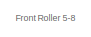
[diagram: Wheel1 - part 1/8, top center region]
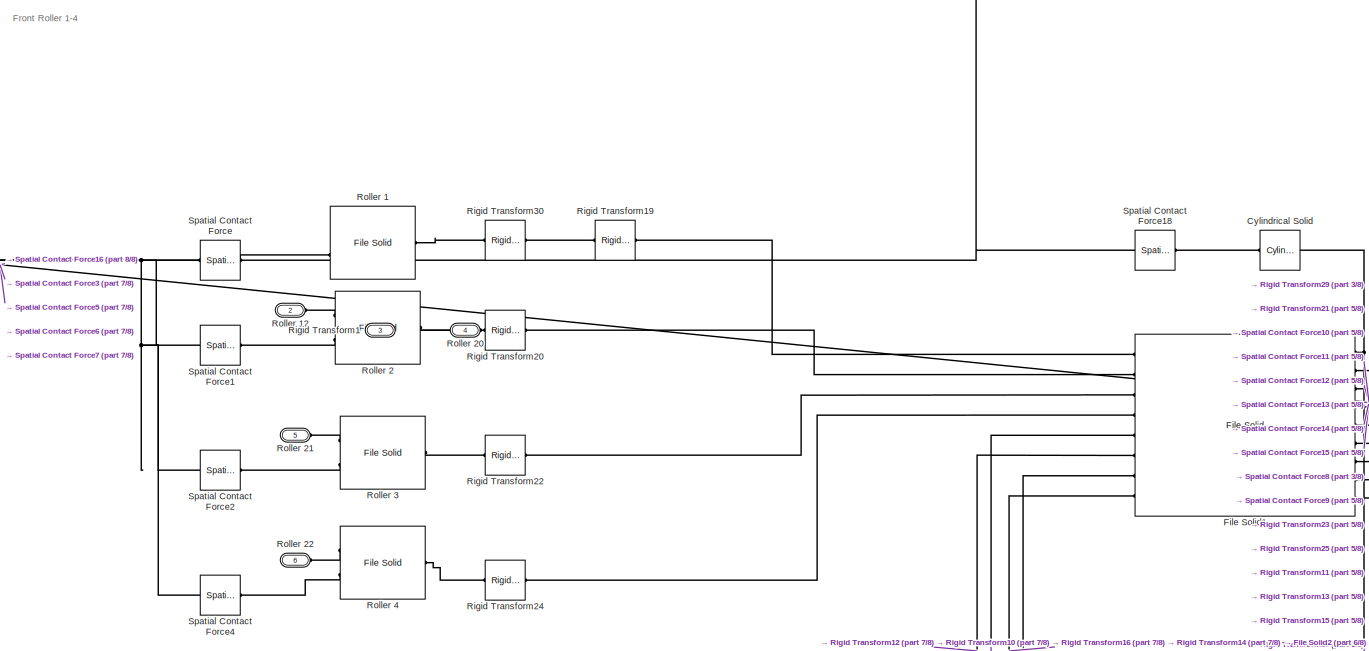
[diagram: Wheel1 - part 2/8, top center region]
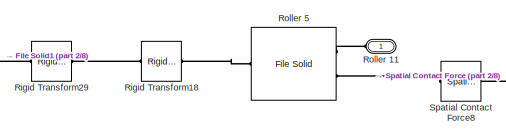
[diagram: Wheel1 - part 3/8, top right region]
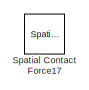
[diagram: Wheel1 - part 4/8, top left region]
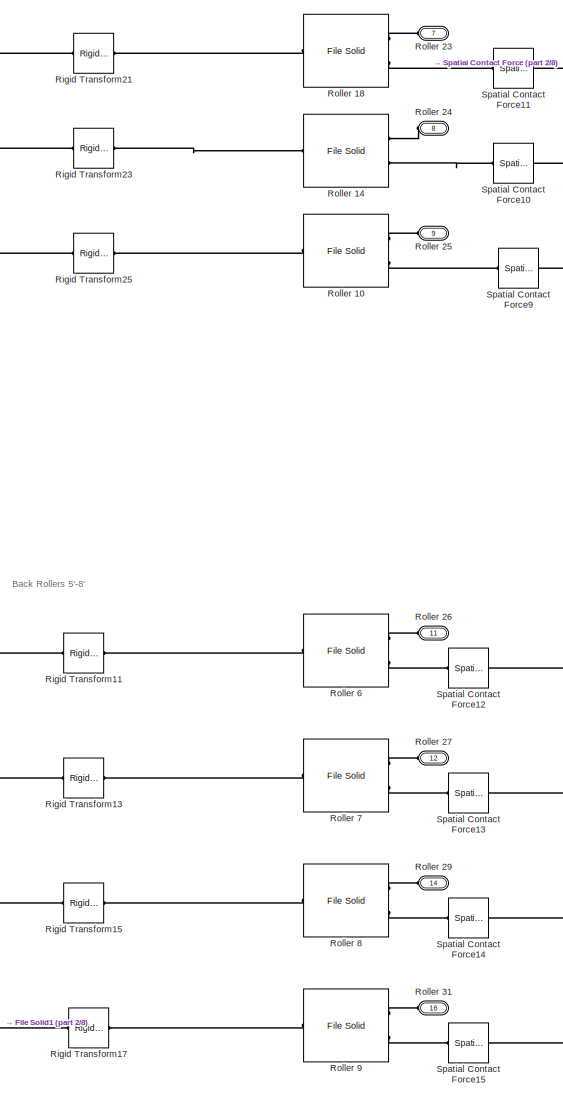
[diagram: Wheel1 - part 5/8, middle right region]
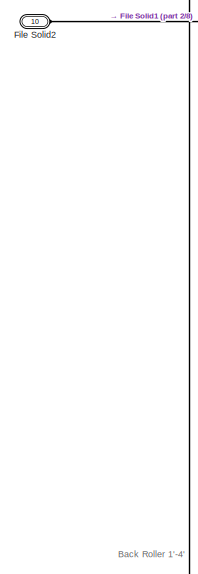
[diagram: Wheel1 - part 6/8, middle left region]
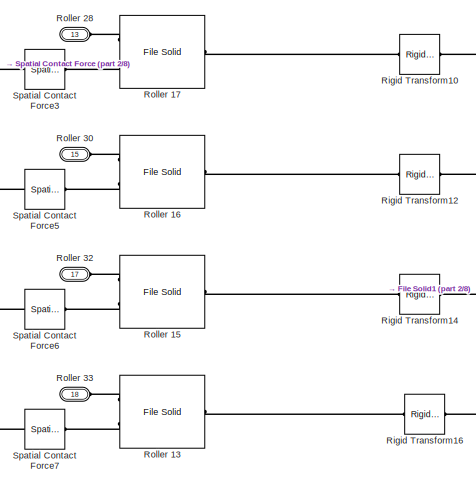
[diagram: Wheel1 - part 7/8, middle left region]
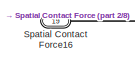
[diagram: Wheel1 - part 8/8, bottom left region]
BLOCK [SubSystem] Wheel1
  Ports = [0, 0, 0, 0, 0, 17, 2]
  RequestExecContextInheritance = off
BLOCK [Reference] Wheel1/Cylindrical Solid  REF=sm_lib/Body Elements/Cylindrical Solid
  Ports = [0, 0, 0, 0, 0, 1, 1]
  SourceBlock = sm_lib/Body Elements/Cylindrical Solid
  SourceProductBaseCode = MS
  SourceType = Cylindrical Solid
BLOCK [Reference] Wheel1/File Solid1  REF=sm_lib/Body Elements/File Solid
  NameLocation = top
  Ports = [0, 0, 0, 0, 0, 9, 8]
  SourceBlock = sm_lib/Body Elements/File Solid
  SourceProductBaseCode = MS
  SourceType = File Solid
BLOCK [PMIOPort] Wheel1/File Solid2
  Port = 10
  Side = Left
BLOCK [PMIOPort] Wheel1/Rigid Transform1
  Port = 3
  Side = Right
BLOCK [Reference] Wheel1/Rigid Transform10  REF=sm_lib/Frames and
Transforms/Rigid
Transform
  Ports = [0, 0, 0, 0, 0, 1, 1]
  SourceBlock = sm_lib/Frames and\nTransforms/Rigid\nTransform
  SourceProductBaseCode = MS
  SourceType = Rigid\nTransform
BLOCK [Reference] Wheel1/Rigid Transform11  REF=sm_lib/Frames and
Transforms/Rigid
Transform
  NameLocation = top
  Ports = [0, 0, 0, 0, 0, 1, 1]
  SourceBlock = sm_lib/Frames and\nTransforms/Rigid\nTransform
  SourceProductBaseCode = MS
  SourceType = Rigid\nTransform
BLOCK [Reference] Wheel1/Rigid Transform12  REF=sm_lib/Frames and
Transforms/Rigid
Transform
  Ports = [0, 0, 0, 0, 0, 1, 1]
  SourceBlock = sm_lib/Frames and\nTransforms/Rigid\nTransform
  SourceProductBaseCode = MS
  SourceType = Rigid\nTransform
BLOCK [Reference] Wheel1/Rigid Transform13  REF=sm_lib/Frames and
Transforms/Rigid
Transform
  NameLocation = top
  Ports = [0, 0, 0, 0, 0, 1, 1]
  SourceBlock = sm_lib/Frames and\nTransforms/Rigid\nTransform
  SourceProductBaseCode = MS
  SourceType = Rigid\nTransform
BLOCK [Reference] Wheel1/Rigid Transform14  REF=sm_lib/Frames and
Transforms/Rigid
Transform
  Ports = [0, 0, 0, 0, 0, 1, 1]
  SourceBlock = sm_lib/Frames and\nTransforms/Rigid\nTransform
  SourceProductBaseCode = MS
  SourceType = Rigid\nTransform
BLOCK [Reference] Wheel1/Rigid Transform15  REF=sm_lib/Frames and
Transforms/Rigid
Transform
  NameLocation = top
  Ports = [0, 0, 0, 0, 0, 1, 1]
  SourceBlock = sm_lib/Frames and\nTransforms/Rigid\nTransform
  SourceProductBaseCode = MS
  SourceType = Rigid\nTransform
BLOCK [Reference] Wheel1/Rigid Transform16  REF=sm_lib/Frames and
Transforms/Rigid
Transform
  Ports = [0, 0, 0, 0, 0, 1, 1]
  SourceBlock = sm_lib/Frames and\nTransforms/Rigid\nTransform
  SourceProductBaseCode = MS
  SourceType = Rigid\nTransform
BLOCK [Reference] Wheel1/Rigid Transform17  REF=sm_lib/Frames and
Transforms/Rigid
Transform
  NameLocation = top
  Ports = [0, 0, 0, 0, 0, 1, 1]
  SourceBlock = sm_lib/Frames and\nTransforms/Rigid\nTransform
  SourceProductBaseCode = MS
  SourceType = Rigid\nTransform
BLOCK [Reference] Wheel1/Rigid Transform18  REF=sm_lib/Frames and
Transforms/Rigid
Transform
  Ports = [0, 0, 0, 0, 0, 1, 1]
  SourceBlock = sm_lib/Frames and\nTransforms/Rigid\nTransform
  SourceProductBaseCode = MS
  SourceType = Rigid\nTransform
BLOCK [Reference] Wheel1/Rigid Transform19  REF=sm_lib/Frames and
Transforms/Rigid
Transform
  NameLocation = top
  Ports = [0, 0, 0, 0, 0, 1, 1]
  SourceBlock = sm_lib/Frames and\nTransforms/Rigid\nTransform
  SourceProductBaseCode = MS
  SourceType = Rigid\nTransform
BLOCK [Reference] Wheel1/Rigid Transform20  REF=sm_lib/Frames and
Transforms/Rigid
Transform
  NameLocation = top
  Ports = [0, 0, 0, 0, 0, 1, 1]
  SourceBlock = sm_lib/Frames and\nTransforms/Rigid\nTransform
  SourceProductBaseCode = MS
  SourceType = Rigid\nTransform
BLOCK [Reference] Wheel1/Rigid Transform21  REF=sm_lib/Frames and
Transforms/Rigid
Transform
  Ports = [0, 0, 0, 0, 0, 1, 1]
  SourceBlock = sm_lib/Frames and\nTransforms/Rigid\nTransform
  SourceProductBaseCode = MS
  SourceType = Rigid\nTransform
BLOCK [Reference] Wheel1/Rigid Transform22  REF=sm_lib/Frames and
Transforms/Rigid
Transform
  NameLocation = top
  Ports = [0, 0, 0, 0, 0, 1, 1]
  SourceBlock = sm_lib/Frames and\nTransforms/Rigid\nTransform
  SourceProductBaseCode = MS
  SourceType = Rigid\nTransform
BLOCK [Reference] Wheel1/Rigid Transform23  REF=sm_lib/Frames and
Transforms/Rigid
Transform
  Ports = [0, 0, 0, 0, 0, 1, 1]
  SourceBlock = sm_lib/Frames and\nTransforms/Rigid\nTransform
  SourceProductBaseCode = MS
  SourceType = Rigid\nTransform
BLOCK [Reference] Wheel1/Rigid Transform24  REF=sm_lib/Frames and
Transforms/Rigid
Transform
  NameLocation = top
  Ports = [0, 0, 0, 0, 0, 1, 1]
  SourceBlock = sm_lib/Frames and\nTransforms/Rigid\nTransform
  SourceProductBaseCode = MS
  SourceType = Rigid\nTransform
BLOCK [Reference] Wheel1/Rigid Transform25  REF=sm_lib/Frames and
Transforms/Rigid
Transform
  Ports = [0, 0, 0, 0, 0, 1, 1]
  SourceBlock = sm_lib/Frames and\nTransforms/Rigid\nTransform
  SourceProductBaseCode = MS
  SourceType = Rigid\nTransform
BLOCK [Reference] Wheel1/Rigid Transform29  REF=sm_lib/Frames and
Transforms/Rigid
Transform
  Ports = [0, 0, 0, 0, 0, 1, 1]
  SourceBlock = sm_lib/Frames and\nTransforms/Rigid\nTransform
  SourceProductBaseCode = MS
  SourceType = Rigid\nTransform
BLOCK [Reference] Wheel1/Rigid Transform30  REF=sm_lib/Frames and
Transforms/Rigid
Transform
  NameLocation = top
  Ports = [0, 0, 0, 0, 0, 1, 1]
  SourceBlock = sm_lib/Frames and\nTransforms/Rigid\nTransform
  SourceProductBaseCode = MS
  SourceType = Rigid\nTransform
BLOCK [Reference] Wheel1/Roller 1  REF=sm_lib/Body Elements/File Solid
  Ports = [0, 0, 0, 0, 0, 2, 1]
  SourceBlock = sm_lib/Body Elements/File Solid
  SourceProductBaseCode = MS
  SourceType = File Solid
BLOCK [Reference] Wheel1/Roller 10  REF=sm_lib/Body Elements/File Solid
  NameLocation = top
  Ports = [0, 0, 0, 0, 0, 2, 1]
  SourceBlock = sm_lib/Body Elements/File Solid
  SourceProductBaseCode = MS
  SourceType = File Solid
BLOCK [PMIOPort] Wheel1/Roller 11
  Side = Left
BLOCK [PMIOPort] Wheel1/Roller 12
  Port = 2
  Side = Left
BLOCK [Reference] Wheel1/Roller 13  REF=sm_lib/Body Elements/File Solid
  Ports = [0, 0, 0, 0, 0, 2, 1]
  SourceBlock = sm_lib/Body Elements/File Solid
  SourceProductBaseCode = MS
  SourceType = File Solid
BLOCK [Reference] Wheel1/Roller 14  REF=sm_lib/Body Elements/File Solid
  NameLocation = top
  Ports = [0, 0, 0, 0, 0, 2, 1]
  SourceBlock = sm_lib/Body Elements/File Solid
  SourceProductBaseCode = MS
  SourceType = File Solid
BLOCK [Reference] Wheel1/Roller 15  REF=sm_lib/Body Elements/File Solid
  Ports = [0, 0, 0, 0, 0, 2, 1]
  SourceBlock = sm_lib/Body Elements/File Solid
  SourceProductBaseCode = MS
  SourceType = File Solid
BLOCK [Reference] Wheel1/Roller 16  REF=sm_lib/Body Elements/File Solid
  Ports = [0, 0, 0, 0, 0, 2, 1]
  SourceBlock = sm_lib/Body Elements/File Solid
  SourceProductBaseCode = MS
  SourceType = File Solid
BLOCK [Reference] Wheel1/Roller 17  REF=sm_lib/Body Elements/File Solid
  Ports = [0, 0, 0, 0, 0, 2, 1]
  SourceBlock = sm_lib/Body Elements/File Solid
  SourceProductBaseCode = MS
  SourceType = File Solid
BLOCK [Reference] Wheel1/Roller 18  REF=sm_lib/Body Elements/File Solid
  NameLocation = top
  Ports = [0, 0, 0, 0, 0, 2, 1]
  SourceBlock = sm_lib/Body Elements/File Solid
  SourceProductBaseCode = MS
  SourceType = File Solid
BLOCK [Reference] Wheel1/Roller 2  REF=sm_lib/Body Elements/File Solid
  Ports = [0, 0, 0, 0, 0, 2, 1]
  SourceBlock = sm_lib/Body Elements/File Solid
  SourceProductBaseCode = MS
  SourceType = File Solid
BLOCK [PMIOPort] Wheel1/Roller 20
  Port = 4
  Side = Right
BLOCK [PMIOPort] Wheel1/Roller 21
  Port = 5
  Side = Left
BLOCK [PMIOPort] Wheel1/Roller 22
  Port = 6
  Side = Left
BLOCK [PMIOPort] Wheel1/Roller 23
  Port = 7
  Side = Left
BLOCK [PMIOPort] Wheel1/Roller 24
  Port = 8
  Side = Left
BLOCK [PMIOPort] Wheel1/Roller 25
  Port = 9
  Side = Left
BLOCK [PMIOPort] Wheel1/Roller 26
  Port = 11
  Side = Left
BLOCK [PMIOPort] Wheel1/Roller 27
  Port = 12
  Side = Left
BLOCK [PMIOPort] Wheel1/Roller 28
  Port = 13
  Side = Left
BLOCK [PMIOPort] Wheel1/Roller 29
  Port = 14
  Side = Left
BLOCK [Reference] Wheel1/Roller 3  REF=sm_lib/Body Elements/File Solid
  Ports = [0, 0, 0, 0, 0, 2, 1]
  SourceBlock = sm_lib/Body Elements/File Solid
  SourceProductBaseCode = MS
  SourceType = File Solid
BLOCK [PMIOPort] Wheel1/Roller 30
  Port = 15
  Side = Left
BLOCK [PMIOPort] Wheel1/Roller 31
  Port = 16
  Side = Left
BLOCK [PMIOPort] Wheel1/Roller 32
  Port = 17
  Side = Left
BLOCK [PMIOPort] Wheel1/Roller 33
  Port = 18
  Side = Left
BLOCK [Reference] Wheel1/Roller 4  REF=sm_lib/Body Elements/File Solid
  Ports = [0, 0, 0, 0, 0, 2, 1]
  SourceBlock = sm_lib/Body Elements/File Solid
  SourceProductBaseCode = MS
  SourceType = File Solid
BLOCK [Reference] Wheel1/Roller 5  REF=sm_lib/Body Elements/File Solid
  NameLocation = top
  Ports = [0, 0, 0, 0, 0, 2, 1]
  SourceBlock = sm_lib/Body Elements/File Solid
  SourceProductBaseCode = MS
  SourceType = File Solid
BLOCK [Reference] Wheel1/Roller 6  REF=sm_lib/Body Elements/File Solid
  NameLocation = top
  Ports = [0, 0, 0, 0, 0, 2, 1]
  SourceBlock = sm_lib/Body Elements/File Solid
  SourceProductBaseCode = MS
  SourceType = File Solid
BLOCK [Reference] Wheel1/Roller 7  REF=sm_lib/Body Elements/File Solid
  NameLocation = top
  Ports = [0, 0, 0, 0, 0, 2, 1]
  SourceBlock = sm_lib/Body Elements/File Solid
  SourceProductBaseCode = MS
  SourceType = File Solid
BLOCK [Reference] Wheel1/Roller 8  REF=sm_lib/Body Elements/File Solid
  NameLocation = top
  Ports = [0, 0, 0, 0, 0, 2, 1]
  SourceBlock = sm_lib/Body Elements/File Solid
  SourceProductBaseCode = MS
  SourceType = File Solid
BLOCK [Reference] Wheel1/Roller 9  REF=sm_lib/Body Elements/File Solid
  NameLocation = top
  Ports = [0, 0, 0, 0, 0, 2, 1]
  SourceBlock = sm_lib/Body Elements/File Solid
  SourceProductBaseCode = MS
  SourceType = File Solid
BLOCK [Reference] Wheel1/Spatial Contact Force  REF=sm_lib/Forces and
Torques/Spatial
Contact Force
  Ports = [0, 0, 0, 0, 0, 1, 1]
  SourceBlock = sm_lib/Forces and\nTorques/Spatial\nContact Force
  SourceProductBaseCode = MS
  SourceType = Spatial\nContact Force
BLOCK [Reference] Wheel1/Spatial Contact Force1  REF=sm_lib/Forces and
Torques/Spatial
Contact Force
  Ports = [0, 0, 0, 0, 0, 1, 1]
  SourceBlock = sm_lib/Forces and\nTorques/Spatial\nContact Force
  SourceProductBaseCode = MS
  SourceType = Spatial\nContact Force
BLOCK [Reference] Wheel1/Spatial Contact Force10  REF=sm_lib/Forces and
Torques/Spatial
Contact Force
  Ports = [0, 0, 0, 0, 0, 1, 1]
  SourceBlock = sm_lib/Forces and\nTorques/Spatial\nContact Force
  SourceProductBaseCode = MS
  SourceType = Spatial\nContact Force
BLOCK [Reference] Wheel1/Spatial Contact Force11  REF=sm_lib/Forces and
Torques/Spatial
Contact Force
  Ports = [0, 0, 0, 0, 0, 1, 1]
  SourceBlock = sm_lib/Forces and\nTorques/Spatial\nContact Force
  SourceProductBaseCode = MS
  SourceType = Spatial\nContact Force
BLOCK [Reference] Wheel1/Spatial Contact Force12  REF=sm_lib/Forces and
Torques/Spatial
Contact Force
  Ports = [0, 0, 0, 0, 0, 1, 1]
  SourceBlock = sm_lib/Forces and\nTorques/Spatial\nContact Force
  SourceProductBaseCode = MS
  SourceType = Spatial\nContact Force
BLOCK [Reference] Wheel1/Spatial Contact Force13  REF=sm_lib/Forces and
Torques/Spatial
Contact Force
  Ports = [0, 0, 0, 0, 0, 1, 1]
  SourceBlock = sm_lib/Forces and\nTorques/Spatial\nContact Force
  SourceProductBaseCode = MS
  SourceType = Spatial\nContact Force
BLOCK [Reference] Wheel1/Spatial Contact Force14  REF=sm_lib/Forces and
Torques/Spatial
Contact Force
  Ports = [0, 0, 0, 0, 0, 1, 1]
  SourceBlock = sm_lib/Forces and\nTorques/Spatial\nContact Force
  SourceProductBaseCode = MS
  SourceType = Spatial\nContact Force
BLOCK [Reference] Wheel1/Spatial Contact Force15  REF=sm_lib/Forces and
Torques/Spatial
Contact Force
  Ports = [0, 0, 0, 0, 0, 1, 1]
  SourceBlock = sm_lib/Forces and\nTorques/Spatial\nContact Force
  SourceProductBaseCode = MS
  SourceType = Spatial\nContact Force
BLOCK [PMIOPort] Wheel1/Spatial Contact Force16
  Port = 19
  Side = Left
BLOCK [Reference] Wheel1/Spatial Contact Force17  REF=sm_lib/Forces and
Torques/Spatial
Contact Force
  Ports = [0, 0, 0, 0, 0, 1, 1]
  SourceBlock = sm_lib/Forces and\nTorques/Spatial\nContact Force
  SourceProductBaseCode = MS
  SourceType = Spatial\nContact Force
BLOCK [Reference] Wheel1/Spatial Contact Force18  REF=sm_lib/Forces and
Torques/Spatial
Contact Force
  Ports = [0, 0, 0, 0, 0, 1, 1]
  SourceBlock = sm_lib/Forces and\nTorques/Spatial\nContact Force
  SourceProductBaseCode = MS
  SourceType = Spatial\nContact Force
BLOCK [Reference] Wheel1/Spatial Contact Force2  REF=sm_lib/Forces and
Torques/Spatial
Contact Force
  Ports = [0, 0, 0, 0, 0, 1, 1]
  SourceBlock = sm_lib/Forces and\nTorques/Spatial\nContact Force
  SourceProductBaseCode = MS
  SourceType = Spatial\nContact Force
BLOCK [Reference] Wheel1/Spatial Contact Force3  REF=sm_lib/Forces and
Torques/Spatial
Contact Force
  Ports = [0, 0, 0, 0, 0, 1, 1]
  SourceBlock = sm_lib/Forces and\nTorques/Spatial\nContact Force
  SourceProductBaseCode = MS
  SourceType = Spatial\nContact Force
BLOCK [Reference] Wheel1/Spatial Contact Force4  REF=sm_lib/Forces and
Torques/Spatial
Contact Force
  Ports = [0, 0, 0, 0, 0, 1, 1]
  SourceBlock = sm_lib/Forces and\nTorques/Spatial\nContact Force
  SourceProductBaseCode = MS
  SourceType = Spatial\nContact Force
BLOCK [Reference] Wheel1/Spatial Contact Force5  REF=sm_lib/Forces and
Torques/Spatial
Contact Force
  Ports = [0, 0, 0, 0, 0, 1, 1]
  SourceBlock = sm_lib/Forces and\nTorques/Spatial\nContact Force
  SourceProductBaseCode = MS
  SourceType = Spatial\nContact Force
BLOCK [Reference] Wheel1/Spatial Contact Force6  REF=sm_lib/Forces and
Torques/Spatial
Contact Force
  Ports = [0, 0, 0, 0, 0, 1, 1]
  SourceBlock = sm_lib/Forces and\nTorques/Spatial\nContact Force
  SourceProductBaseCode = MS
  SourceType = Spatial\nContact Force
BLOCK [Reference] Wheel1/Spatial Contact Force7  REF=sm_lib/Forces and
Torques/Spatial
Contact Force
  Ports = [0, 0, 0, 0, 0, 1, 1]
  SourceBlock = sm_lib/Forces and\nTorques/Spatial\nContact Force
  SourceProductBaseCode = MS
  SourceType = Spatial\nContact Force
BLOCK [Reference] Wheel1/Spatial Contact Force8  REF=sm_lib/Forces and
Torques/Spatial
Contact Force
  Ports = [0, 0, 0, 0, 0, 1, 1]
  SourceBlock = sm_lib/Forces and\nTorques/Spatial\nContact Force
  SourceProductBaseCode = MS
  SourceType = Spatial\nContact Force
BLOCK [Reference] Wheel1/Spatial Contact Force9  REF=sm_lib/Forces and
Torques/Spatial
Contact Force
  Ports = [0, 0, 0, 0, 0, 1, 1]
  SourceBlock = sm_lib/Forces and\nTorques/Spatial\nContact Force
  SourceProductBaseCode = MS
  SourceType = Spatial\nContact Force
BLOCK [SubSystem] Wheel2
  Ports = [0, 0, 0, 0, 0, 17, 2]
  RequestExecContextInheritance = off
BLOCK [Reference] Wheel2/Cylindrical Solid  REF=sm_lib/Body Elements/Cylindrical Solid
  Ports = [0, 0, 0, 0, 0, 1, 1]
  SourceBlock = sm_lib/Body Elements/Cylindrical Solid
  SourceProductBaseCode = MS
  SourceType = Cylindrical Solid
BLOCK [Reference] Wheel2/File Solid1  REF=sm_lib/Body Elements/File Solid
  NameLocation = top
  Ports = [0, 0, 0, 0, 0, 9, 8]
  SourceBlock = sm_lib/Body Elements/File Solid
  SourceProductBaseCode = MS
  SourceType = File Solid
BLOCK [PMIOPort] Wheel2/File Solid2
  Port = 10
  Side = Left
BLOCK [PMIOPort] Wheel2/Rigid Transform1
  Port = 3
  Side = Right
BLOCK [Reference] Wheel2/Rigid Transform10  REF=sm_lib/Frames and
Transforms/Rigid
Transform
  Ports = [0, 0, 0, 0, 0, 1, 1]
  SourceBlock = sm_lib/Frames and\nTransforms/Rigid\nTransform
  SourceProductBaseCode = MS
  SourceType = Rigid\nTransform
BLOCK [Reference] Wheel2/Rigid Transform11  REF=sm_lib/Frames and
Transforms/Rigid
Transform
  NameLocation = top
  Ports = [0, 0, 0, 0, 0, 1, 1]
  SourceBlock = sm_lib/Frames and\nTransforms/Rigid\nTransform
  SourceProductBaseCode = MS
  SourceType = Rigid\nTransform
BLOCK [Reference] Wheel2/Rigid Transform12  REF=sm_lib/Frames and
Transforms/Rigid
Transform
  Ports = [0, 0, 0, 0, 0, 1, 1]
  SourceBlock = sm_lib/Frames and\nTransforms/Rigid\nTransform
  SourceProductBaseCode = MS
  SourceType = Rigid\nTransform
BLOCK [Reference] Wheel2/Rigid Transform13  REF=sm_lib/Frames and
Transforms/Rigid
Transform
  NameLocation = top
  Ports = [0, 0, 0, 0, 0, 1, 1]
  SourceBlock = sm_lib/Frames and\nTransforms/Rigid\nTransform
  SourceProductBaseCode = MS
  SourceType = Rigid\nTransform
BLOCK [Reference] Wheel2/Rigid Transform14  REF=sm_lib/Frames and
Transforms/Rigid
Transform
  Ports = [0, 0, 0, 0, 0, 1, 1]
  SourceBlock = sm_lib/Frames and\nTransforms/Rigid\nTransform
  SourceProductBaseCode = MS
  SourceType = Rigid\nTransform
BLOCK [Reference] Wheel2/Rigid Transform15  REF=sm_lib/Frames and
Transforms/Rigid
Transform
  NameLocation = top
  Ports = [0, 0, 0, 0, 0, 1, 1]
  SourceBlock = sm_lib/Frames and\nTransforms/Rigid\nTransform
  SourceProductBaseCode = MS
  SourceType = Rigid\nTransform
BLOCK [Reference] Wheel2/Rigid Transform16  REF=sm_lib/Frames and
Transforms/Rigid
Transform
  Ports = [0, 0, 0, 0, 0, 1, 1]
  SourceBlock = sm_lib/Frames and\nTransforms/Rigid\nTransform
  SourceProductBaseCode = MS
  SourceType = Rigid\nTransform
BLOCK [Reference] Wheel2/Rigid Transform17  REF=sm_lib/Frames and
Transforms/Rigid
Transform
  NameLocation = top
  Ports = [0, 0, 0, 0, 0, 1, 1]
  SourceBlock = sm_lib/Frames and\nTransforms/Rigid\nTransform
  SourceProductBaseCode = MS
  SourceType = Rigid\nTransform
BLOCK [Reference] Wheel2/Rigid Transform18  REF=sm_lib/Frames and
Transforms/Rigid
Transform
  Ports = [0, 0, 0, 0, 0, 1, 1]
  SourceBlock = sm_lib/Frames and\nTransforms/Rigid\nTransform
  SourceProductBaseCode = MS
  SourceType = Rigid\nTransform
BLOCK [Reference] Wheel2/Rigid Transform19  REF=sm_lib/Frames and
Transforms/Rigid
Transform
  NameLocation = top
  Ports = [0, 0, 0, 0, 0, 1, 1]
  SourceBlock = sm_lib/Frames and\nTransforms/Rigid\nTransform
  SourceProductBaseCode = MS
  SourceType = Rigid\nTransform
BLOCK [Reference] Wheel2/Rigid Transform20  REF=sm_lib/Frames and
Transforms/Rigid
Transform
  NameLocation = top
  Ports = [0, 0, 0, 0, 0, 1, 1]
  SourceBlock = sm_lib/Frames and\nTransforms/Rigid\nTransform
  SourceProductBaseCode = MS
  SourceType = Rigid\nTransform
BLOCK [Reference] Wheel2/Rigid Transform21  REF=sm_lib/Frames and
Transforms/Rigid
Transform
  Ports = [0, 0, 0, 0, 0, 1, 1]
  SourceBlock = sm_lib/Frames and\nTransforms/Rigid\nTransform
  SourceProductBaseCode = MS
  SourceType = Rigid\nTransform
BLOCK [Reference] Wheel2/Rigid Transform22  REF=sm_lib/Frames and
Transforms/Rigid
Transform
  NameLocation = top
  Ports = [0, 0, 0, 0, 0, 1, 1]
  SourceBlock = sm_lib/Frames and\nTransforms/Rigid\nTransform
  SourceProductBaseCode = MS
  SourceType = Rigid\nTransform
BLOCK [Reference] Wheel2/Rigid Transform23  REF=sm_lib/Frames and
Transforms/Rigid
Transform
  Ports = [0, 0, 0, 0, 0, 1, 1]
  SourceBlock = sm_lib/Frames and\nTransforms/Rigid\nTransform
  SourceProductBaseCode = MS
  SourceType = Rigid\nTransform
BLOCK [Reference] Wheel2/Rigid Transform24  REF=sm_lib/Frames and
Transforms/Rigid
Transform
  NameLocation = top
  Ports = [0, 0, 0, 0, 0, 1, 1]
  SourceBlock = sm_lib/Frames and\nTransforms/Rigid\nTransform
  SourceProductBaseCode = MS
  SourceType = Rigid\nTransform
BLOCK [Reference] Wheel2/Rigid Transform25  REF=sm_lib/Frames and
Transforms/Rigid
Transform
  Ports = [0, 0, 0, 0, 0, 1, 1]
  SourceBlock = sm_lib/Frames and\nTransforms/Rigid\nTransform
  SourceProductBaseCode = MS
  SourceType = Rigid\nTransform
BLOCK [Reference] Wheel2/Rigid Transform29  REF=sm_lib/Frames and
Transforms/Rigid
Transform
  Ports = [0, 0, 0, 0, 0, 1, 1]
  SourceBlock = sm_lib/Frames and\nTransforms/Rigid\nTransform
  SourceProductBaseCode = MS
  SourceType = Rigid\nTransform
BLOCK [Reference] Wheel2/Rigid Transform30  REF=sm_lib/Frames and
Transforms/Rigid
Transform
  NameLocation = top
  Ports = [0, 0, 0, 0, 0, 1, 1]
  SourceBlock = sm_lib/Frames and\nTransforms/Rigid\nTransform
  SourceProductBaseCode = MS
  SourceType = Rigid\nTransform
BLOCK [Reference] Wheel2/Roller 1  REF=sm_lib/Body Elements/File Solid
  Ports = [0, 0, 0, 0, 0, 2, 1]
  SourceBlock = sm_lib/Body Elements/File Solid
  SourceProductBaseCode = MS
  SourceType = File Solid
BLOCK [Reference] Wheel2/Roller 10  REF=sm_lib/Body Elements/File Solid
  NameLocation = top
  Ports = [0, 0, 0, 0, 0, 2, 1]
  SourceBlock = sm_lib/Body Elements/File Solid
  SourceProductBaseCode = MS
  SourceType = File Solid
BLOCK [PMIOPort] Wheel2/Roller 11
  Side = Left
BLOCK [PMIOPort] Wheel2/Roller 12
  Port = 2
  Side = Left
BLOCK [Reference] Wheel2/Roller 13  REF=sm_lib/Body Elements/File Solid
  Ports = [0, 0, 0, 0, 0, 2, 1]
  SourceBlock = sm_lib/Body Elements/File Solid
  SourceProductBaseCode = MS
  SourceType = File Solid
BLOCK [Reference] Wheel2/Roller 14  REF=sm_lib/Body Elements/File Solid
  NameLocation = top
  Ports = [0, 0, 0, 0, 0, 2, 1]
  SourceBlock = sm_lib/Body Elements/File Solid
  SourceProductBaseCode = MS
  SourceType = File Solid
BLOCK [Reference] Wheel2/Roller 15  REF=sm_lib/Body Elements/File Solid
  Ports = [0, 0, 0, 0, 0, 2, 1]
  SourceBlock = sm_lib/Body Elements/File Solid
  SourceProductBaseCode = MS
  SourceType = File Solid
BLOCK [Reference] Wheel2/Roller 16  REF=sm_lib/Body Elements/File Solid
  Ports = [0, 0, 0, 0, 0, 2, 1]
  SourceBlock = sm_lib/Body Elements/File Solid
  SourceProductBaseCode = MS
  SourceType = File Solid
BLOCK [Reference] Wheel2/Roller 17  REF=sm_lib/Body Elements/File Solid
  Ports = [0, 0, 0, 0, 0, 2, 1]
  SourceBlock = sm_lib/Body Elements/File Solid
  SourceProductBaseCode = MS
  SourceType = File Solid
BLOCK [Reference] Wheel2/Roller 18  REF=sm_lib/Body Elements/File Solid
  NameLocation = top
  Ports = [0, 0, 0, 0, 0, 2, 1]
  SourceBlock = sm_lib/Body Elements/File Solid
  SourceProductBaseCode = MS
  SourceType = File Solid
BLOCK [Reference] Wheel2/Roller 2  REF=sm_lib/Body Elements/File Solid
  Ports = [0, 0, 0, 0, 0, 2, 1]
  SourceBlock = sm_lib/Body Elements/File Solid
  SourceProductBaseCode = MS
  SourceType = File Solid
BLOCK [PMIOPort] Wheel2/Roller 20
  Port = 4
  Side = Right
BLOCK [PMIOPort] Wheel2/Roller 21
  Port = 5
  Side = Left
BLOCK [PMIOPort] Wheel2/Roller 22
  Port = 6
  Side = Left
BLOCK [PMIOPort] Wheel2/Roller 23
  Port = 7
  Side = Left
BLOCK [PMIOPort] Wheel2/Roller 24
  Port = 8
  Side = Left
BLOCK [PMIOPort] Wheel2/Roller 25
  Port = 9
  Side = Left
BLOCK [PMIOPort] Wheel2/Roller 26
  Port = 11
  Side = Left
BLOCK [PMIOPort] Wheel2/Roller 27
  Port = 12
  Side = Left
BLOCK [PMIOPort] Wheel2/Roller 28
  Port = 13
  Side = Left
BLOCK [PMIOPort] Wheel2/Roller 29
  Port = 14
  Side = Left
BLOCK [Reference] Wheel2/Roller 3  REF=sm_lib/Body Elements/File Solid
  Ports = [0, 0, 0, 0, 0, 2, 1]
  SourceBlock = sm_lib/Body Elements/File Solid
  SourceProductBaseCode = MS
  SourceType = File Solid
BLOCK [PMIOPort] Wheel2/Roller 30
  Port = 15
  Side = Left
BLOCK [PMIOPort] Wheel2/Roller 31
  Port = 16
  Side = Left
BLOCK [PMIOPort] Wheel2/Roller 32
  Port = 17
  Side = Left
BLOCK [PMIOPort] Wheel2/Roller 33
  Port = 18
  Side = Left
BLOCK [Reference] Wheel2/Roller 4  REF=sm_lib/Body Elements/File Solid
  Ports = [0, 0, 0, 0, 0, 2, 1]
  SourceBlock = sm_lib/Body Elements/File Solid
  SourceProductBaseCode = MS
  SourceType = File Solid
BLOCK [Reference] Wheel2/Roller 5  REF=sm_lib/Body Elements/File Solid
  NameLocation = top
  Ports = [0, 0, 0, 0, 0, 2, 1]
  SourceBlock = sm_lib/Body Elements/File Solid
  SourceProductBaseCode = MS
  SourceType = File Solid
BLOCK [Reference] Wheel2/Roller 6  REF=sm_lib/Body Elements/File Solid
  NameLocation = top
  Ports = [0, 0, 0, 0, 0, 2, 1]
  SourceBlock = sm_lib/Body Elements/File Solid
  SourceProductBaseCode = MS
  SourceType = File Solid
BLOCK [Reference] Wheel2/Roller 7  REF=sm_lib/Body Elements/File Solid
  NameLocation = top
  Ports = [0, 0, 0, 0, 0, 2, 1]
  SourceBlock = sm_lib/Body Elements/File Solid
  SourceProductBaseCode = MS
  SourceType = File Solid
BLOCK [Reference] Wheel2/Roller 8  REF=sm_lib/Body Elements/File Solid
  NameLocation = top
  Ports = [0, 0, 0, 0, 0, 2, 1]
  SourceBlock = sm_lib/Body Elements/File Solid
  SourceProductBaseCode = MS
  SourceType = File Solid
BLOCK [Reference] Wheel2/Roller 9  REF=sm_lib/Body Elements/File Solid
  NameLocation = top
  Ports = [0, 0, 0, 0, 0, 2, 1]
  SourceBlock = sm_lib/Body Elements/File Solid
  SourceProductBaseCode = MS
  SourceType = File Solid
BLOCK [Reference] Wheel2/Spatial Contact Force  REF=sm_lib/Forces and
Torques/Spatial
Contact Force
  Ports = [0, 0, 0, 0, 0, 1, 1]
  SourceBlock = sm_lib/Forces and\nTorques/Spatial\nContact Force
  SourceProductBaseCode = MS
  SourceType = Spatial\nContact Force
BLOCK [Reference] Wheel2/Spatial Contact Force1  REF=sm_lib/Forces and
Torques/Spatial
Contact Force
  Ports = [0, 0, 0, 0, 0, 1, 1]
  SourceBlock = sm_lib/Forces and\nTorques/Spatial\nContact Force
  SourceProductBaseCode = MS
  SourceType = Spatial\nContact Force
BLOCK [Reference] Wheel2/Spatial Contact Force10  REF=sm_lib/Forces and
Torques/Spatial
Contact Force
  Ports = [0, 0, 0, 0, 0, 1, 1]
  SourceBlock = sm_lib/Forces and\nTorques/Spatial\nContact Force
  SourceProductBaseCode = MS
  SourceType = Spatial\nContact Force
BLOCK [Reference] Wheel2/Spatial Contact Force11  REF=sm_lib/Forces and
Torques/Spatial
Contact Force
  Ports = [0, 0, 0, 0, 0, 1, 1]
  SourceBlock = sm_lib/Forces and\nTorques/Spatial\nContact Force
  SourceProductBaseCode = MS
  SourceType = Spatial\nContact Force
BLOCK [Reference] Wheel2/Spatial Contact Force12  REF=sm_lib/Forces and
Torques/Spatial
Contact Force
  Ports = [0, 0, 0, 0, 0, 1, 1]
  SourceBlock = sm_lib/Forces and\nTorques/Spatial\nContact Force
  SourceProductBaseCode = MS
  SourceType = Spatial\nContact Force
BLOCK [Reference] Wheel2/Spatial Contact Force13  REF=sm_lib/Forces and
Torques/Spatial
Contact Force
  Ports = [0, 0, 0, 0, 0, 1, 1]
  SourceBlock = sm_lib/Forces and\nTorques/Spatial\nContact Force
  SourceProductBaseCode = MS
  SourceType = Spatial\nContact Force
BLOCK [Reference] Wheel2/Spatial Contact Force14  REF=sm_lib/Forces and
Torques/Spatial
Contact Force
  Ports = [0, 0, 0, 0, 0, 1, 1]
  SourceBlock = sm_lib/Forces and\nTorques/Spatial\nContact Force
  SourceProductBaseCode = MS
  SourceType = Spatial\nContact Force
BLOCK [Reference] Wheel2/Spatial Contact Force15  REF=sm_lib/Forces and
Torques/Spatial
Contact Force
  Ports = [0, 0, 0, 0, 0, 1, 1]
  SourceBlock = sm_lib/Forces and\nTorques/Spatial\nContact Force
  SourceProductBaseCode = MS
  SourceType = Spatial\nContact Force
BLOCK [PMIOPort] Wheel2/Spatial Contact Force16
  Port = 19
  Side = Left
BLOCK [Reference] Wheel2/Spatial Contact Force17  REF=sm_lib/Forces and
Torques/Spatial
Contact Force
  Ports = [0, 0, 0, 0, 0, 1, 1]
  SourceBlock = sm_lib/Forces and\nTorques/Spatial\nContact Force
  SourceProductBaseCode = MS
  SourceType = Spatial\nContact Force
BLOCK [Reference] Wheel2/Spatial Contact Force18  REF=sm_lib/Forces and
Torques/Spatial
Contact Force
  Ports = [0, 0, 0, 0, 0, 1, 1]
  SourceBlock = sm_lib/Forces and\nTorques/Spatial\nContact Force
  SourceProductBaseCode = MS
  SourceType = Spatial\nContact Force
BLOCK [Reference] Wheel2/Spatial Contact Force2  REF=sm_lib/Forces and
Torques/Spatial
Contact Force
  Ports = [0, 0, 0, 0, 0, 1, 1]
  SourceBlock = sm_lib/Forces and\nTorques/Spatial\nContact Force
  SourceProductBaseCode = MS
  SourceType = Spatial\nContact Force
BLOCK [Reference] Wheel2/Spatial Contact Force3  REF=sm_lib/Forces and
Torques/Spatial
Contact Force
  Ports = [0, 0, 0, 0, 0, 1, 1]
  SourceBlock = sm_lib/Forces and\nTorques/Spatial\nContact Force
  SourceProductBaseCode = MS
  SourceType = Spatial\nContact Force
BLOCK [Reference] Wheel2/Spatial Contact Force4  REF=sm_lib/Forces and
Torques/Spatial
Contact Force
  Ports = [0, 0, 0, 0, 0, 1, 1]
  SourceBlock = sm_lib/Forces and\nTorques/Spatial\nContact Force
  SourceProductBaseCode = MS
  SourceType = Spatial\nContact Force
BLOCK [Reference] Wheel2/Spatial Contact Force5  REF=sm_lib/Forces and
Torques/Spatial
Contact Force
  Ports = [0, 0, 0, 0, 0, 1, 1]
  SourceBlock = sm_lib/Forces and\nTorques/Spatial\nContact Force
  SourceProductBaseCode = MS
  SourceType = Spatial\nContact Force
BLOCK [Reference] Wheel2/Spatial Contact Force6  REF=sm_lib/Forces and
Torques/Spatial
Contact Force
  Ports = [0, 0, 0, 0, 0, 1, 1]
  SourceBlock = sm_lib/Forces and\nTorques/Spatial\nContact Force
  SourceProductBaseCode = MS
  SourceType = Spatial\nContact Force
BLOCK [Reference] Wheel2/Spatial Contact Force7  REF=sm_lib/Forces and
Torques/Spatial
Contact Force
  Ports = [0, 0, 0, 0, 0, 1, 1]
  SourceBlock = sm_lib/Forces and\nTorques/Spatial\nContact Force
  SourceProductBaseCode = MS
  SourceType = Spatial\nContact Force
BLOCK [Reference] Wheel2/Spatial Contact Force8  REF=sm_lib/Forces and
Torques/Spatial
Contact Force
  Ports = [0, 0, 0, 0, 0, 1, 1]
  SourceBlock = sm_lib/Forces and\nTorques/Spatial\nContact Force
  SourceProductBaseCode = MS
  SourceType = Spatial\nContact Force
BLOCK [Reference] Wheel2/Spatial Contact Force9  REF=sm_lib/Forces and
Torques/Spatial
Contact Force
  Ports = [0, 0, 0, 0, 0, 1, 1]
  SourceBlock = sm_lib/Forces and\nTorques/Spatial\nContact Force
  SourceProductBaseCode = MS
  SourceType = Spatial\nContact Force
BLOCK [SubSystem] Wheel3
  Ports = [0, 0, 0, 0, 0, 17, 2]
  RequestExecContextInheritance = off
BLOCK [Reference] Wheel3/Cylindrical Solid  REF=sm_lib/Body Elements/Cylindrical Solid
  Ports = [0, 0, 0, 0, 0, 1, 1]
  SourceBlock = sm_lib/Body Elements/Cylindrical Solid
  SourceProductBaseCode = MS
  SourceType = Cylindrical Solid
BLOCK [Reference] Wheel3/File Solid1  REF=sm_lib/Body Elements/File Solid
  NameLocation = top
  Ports = [0, 0, 0, 0, 0, 9, 8]
  SourceBlock = sm_lib/Body Elements/File Solid
  SourceProductBaseCode = MS
  SourceType = File Solid
BLOCK [PMIOPort] Wheel3/File Solid2
  Port = 10
  Side = Left
BLOCK [PMIOPort] Wheel3/Rigid Transform1
  Port = 3
  Side = Right
BLOCK [Reference] Wheel3/Rigid Transform10  REF=sm_lib/Frames and
Transforms/Rigid
Transform
  Ports = [0, 0, 0, 0, 0, 1, 1]
  SourceBlock = sm_lib/Frames and\nTransforms/Rigid\nTransform
  SourceProductBaseCode = MS
  SourceType = Rigid\nTransform
BLOCK [Reference] Wheel3/Rigid Transform11  REF=sm_lib/Frames and
Transforms/Rigid
Transform
  NameLocation = top
  Ports = [0, 0, 0, 0, 0, 1, 1]
  SourceBlock = sm_lib/Frames and\nTransforms/Rigid\nTransform
  SourceProductBaseCode = MS
  SourceType = Rigid\nTransform
BLOCK [Reference] Wheel3/Rigid Transform12  REF=sm_lib/Frames and
Transforms/Rigid
Transform
  Ports = [0, 0, 0, 0, 0, 1, 1]
  SourceBlock = sm_lib/Frames and\nTransforms/Rigid\nTransform
  SourceProductBaseCode = MS
  SourceType = Rigid\nTransform
BLOCK [Reference] Wheel3/Rigid Transform13  REF=sm_lib/Frames and
Transforms/Rigid
Transform
  NameLocation = top
  Ports = [0, 0, 0, 0, 0, 1, 1]
  SourceBlock = sm_lib/Frames and\nTransforms/Rigid\nTransform
  SourceProductBaseCode = MS
  SourceType = Rigid\nTransform
BLOCK [Reference] Wheel3/Rigid Transform14  REF=sm_lib/Frames and
Transforms/Rigid
Transform
  Ports = [0, 0, 0, 0, 0, 1, 1]
  SourceBlock = sm_lib/Frames and\nTransforms/Rigid\nTransform
  SourceProductBaseCode = MS
  SourceType = Rigid\nTransform
BLOCK [Reference] Wheel3/Rigid Transform15  REF=sm_lib/Frames and
Transforms/Rigid
Transform
  NameLocation = top
  Ports = [0, 0, 0, 0, 0, 1, 1]
  SourceBlock = sm_lib/Frames and\nTransforms/Rigid\nTransform
  SourceProductBaseCode = MS
  SourceType = Rigid\nTransform
BLOCK [Reference] Wheel3/Rigid Transform16  REF=sm_lib/Frames and
Transforms/Rigid
Transform
  Ports = [0, 0, 0, 0, 0, 1, 1]
  SourceBlock = sm_lib/Frames and\nTransforms/Rigid\nTransform
  SourceProductBaseCode = MS
  SourceType = Rigid\nTransform
BLOCK [Reference] Wheel3/Rigid Transform17  REF=sm_lib/Frames and
Transforms/Rigid
Transform
  NameLocation = top
  Ports = [0, 0, 0, 0, 0, 1, 1]
  SourceBlock = sm_lib/Frames and\nTransforms/Rigid\nTransform
  SourceProductBaseCode = MS
  SourceType = Rigid\nTransform
BLOCK [Reference] Wheel3/Rigid Transform18  REF=sm_lib/Frames and
Transforms/Rigid
Transform
  Ports = [0, 0, 0, 0, 0, 1, 1]
  SourceBlock = sm_lib/Frames and\nTransforms/Rigid\nTransform
  SourceProductBaseCode = MS
  SourceType = Rigid\nTransform
BLOCK [Reference] Wheel3/Rigid Transform19  REF=sm_lib/Frames and
Transforms/Rigid
Transform
  NameLocation = top
  Ports = [0, 0, 0, 0, 0, 1, 1]
  SourceBlock = sm_lib/Frames and\nTransforms/Rigid\nTransform
  SourceProductBaseCode = MS
  SourceType = Rigid\nTransform
BLOCK [Reference] Wheel3/Rigid Transform20  REF=sm_lib/Frames and
Transforms/Rigid
Transform
  NameLocation = top
  Ports = [0, 0, 0, 0, 0, 1, 1]
  SourceBlock = sm_lib/Frames and\nTransforms/Rigid\nTransform
  SourceProductBaseCode = MS
  SourceType = Rigid\nTransform
BLOCK [Reference] Wheel3/Rigid Transform21  REF=sm_lib/Frames and
Transforms/Rigid
Transform
  Ports = [0, 0, 0, 0, 0, 1, 1]
  SourceBlock = sm_lib/Frames and\nTransforms/Rigid\nTransform
  SourceProductBaseCode = MS
  SourceType = Rigid\nTransform
BLOCK [Reference] Wheel3/Rigid Transform22  REF=sm_lib/Frames and
Transforms/Rigid
Transform
  NameLocation = top
  Ports = [0, 0, 0, 0, 0, 1, 1]
  SourceBlock = sm_lib/Frames and\nTransforms/Rigid\nTransform
  SourceProductBaseCode = MS
  SourceType = Rigid\nTransform
BLOCK [Reference] Wheel3/Rigid Transform23  REF=sm_lib/Frames and
Transforms/Rigid
Transform
  Ports = [0, 0, 0, 0, 0, 1, 1]
  SourceBlock = sm_lib/Frames and\nTransforms/Rigid\nTransform
  SourceProductBaseCode = MS
  SourceType = Rigid\nTransform
BLOCK [Reference] Wheel3/Rigid Transform24  REF=sm_lib/Frames and
Transforms/Rigid
Transform
  NameLocation = top
  Ports = [0, 0, 0, 0, 0, 1, 1]
  SourceBlock = sm_lib/Frames and\nTransforms/Rigid\nTransform
  SourceProductBaseCode = MS
  SourceType = Rigid\nTransform
BLOCK [Reference] Wheel3/Rigid Transform25  REF=sm_lib/Frames and
Transforms/Rigid
Transform
  Ports = [0, 0, 0, 0, 0, 1, 1]
  SourceBlock = sm_lib/Frames and\nTransforms/Rigid\nTransform
  SourceProductBaseCode = MS
  SourceType = Rigid\nTransform
BLOCK [Reference] Wheel3/Rigid Transform29  REF=sm_lib/Frames and
Transforms/Rigid
Transform
  Ports = [0, 0, 0, 0, 0, 1, 1]
  SourceBlock = sm_lib/Frames and\nTransforms/Rigid\nTransform
  SourceProductBaseCode = MS
  SourceType = Rigid\nTransform
BLOCK [Reference] Wheel3/Rigid Transform30  REF=sm_lib/Frames and
Transforms/Rigid
Transform
  NameLocation = top
  Ports = [0, 0, 0, 0, 0, 1, 1]
  SourceBlock = sm_lib/Frames and\nTransforms/Rigid\nTransform
  SourceProductBaseCode = MS
  SourceType = Rigid\nTransform
BLOCK [Reference] Wheel3/Roller 1  REF=sm_lib/Body Elements/File Solid
  Ports = [0, 0, 0, 0, 0, 2, 1]
  SourceBlock = sm_lib/Body Elements/File Solid
  SourceProductBaseCode = MS
  SourceType = File Solid
BLOCK [Reference] Wheel3/Roller 10  REF=sm_lib/Body Elements/File Solid
  NameLocation = top
  Ports = [0, 0, 0, 0, 0, 2, 1]
  SourceBlock = sm_lib/Body Elements/File Solid
  SourceProductBaseCode = MS
  SourceType = File Solid
BLOCK [PMIOPort] Wheel3/Roller 11
  Side = Left
BLOCK [PMIOPort] Wheel3/Roller 12
  Port = 2
  Side = Left
BLOCK [Reference] Wheel3/Roller 13  REF=sm_lib/Body Elements/File Solid
  Ports = [0, 0, 0, 0, 0, 2, 1]
  SourceBlock = sm_lib/Body Elements/File Solid
  SourceProductBaseCode = MS
  SourceType = File Solid
BLOCK [Reference] Wheel3/Roller 14  REF=sm_lib/Body Elements/File Solid
  NameLocation = top
  Ports = [0, 0, 0, 0, 0, 2, 1]
  SourceBlock = sm_lib/Body Elements/File Solid
  SourceProductBaseCode = MS
  SourceType = File Solid
BLOCK [Reference] Wheel3/Roller 15  REF=sm_lib/Body Elements/File Solid
  Ports = [0, 0, 0, 0, 0, 2, 1]
  SourceBlock = sm_lib/Body Elements/File Solid
  SourceProductBaseCode = MS
  SourceType = File Solid
BLOCK [Reference] Wheel3/Roller 16  REF=sm_lib/Body Elements/File Solid
  Ports = [0, 0, 0, 0, 0, 2, 1]
  SourceBlock = sm_lib/Body Elements/File Solid
  SourceProductBaseCode = MS
  SourceType = File Solid
BLOCK [Reference] Wheel3/Roller 17  REF=sm_lib/Body Elements/File Solid
  Ports = [0, 0, 0, 0, 0, 2, 1]
  SourceBlock = sm_lib/Body Elements/File Solid
  SourceProductBaseCode = MS
  SourceType = File Solid
BLOCK [Reference] Wheel3/Roller 18  REF=sm_lib/Body Elements/File Solid
  NameLocation = top
  Ports = [0, 0, 0, 0, 0, 2, 1]
  SourceBlock = sm_lib/Body Elements/File Solid
  SourceProductBaseCode = MS
  SourceType = File Solid
BLOCK [Reference] Wheel3/Roller 2  REF=sm_lib/Body Elements/File Solid
  Ports = [0, 0, 0, 0, 0, 2, 1]
  SourceBlock = sm_lib/Body Elements/File Solid
  SourceProductBaseCode = MS
  SourceType = File Solid
BLOCK [PMIOPort] Wheel3/Roller 20
  Port = 4
  Side = Right
BLOCK [PMIOPort] Wheel3/Roller 21
  Port = 5
  Side = Left
BLOCK [PMIOPort] Wheel3/Roller 22
  Port = 6
  Side = Left
BLOCK [PMIOPort] Wheel3/Roller 23
  Port = 7
  Side = Left
BLOCK [PMIOPort] Wheel3/Roller 24
  Port = 8
  Side = Left
BLOCK [PMIOPort] Wheel3/Roller 25
  Port = 9
  Side = Left
BLOCK [PMIOPort] Wheel3/Roller 26
  Port = 11
  Side = Left
BLOCK [PMIOPort] Wheel3/Roller 27
  Port = 12
  Side = Left
BLOCK [PMIOPort] Wheel3/Roller 28
  Port = 13
  Side = Left
BLOCK [PMIOPort] Wheel3/Roller 29
  Port = 14
  Side = Left
BLOCK [Reference] Wheel3/Roller 3  REF=sm_lib/Body Elements/File Solid
  Ports = [0, 0, 0, 0, 0, 2, 1]
  SourceBlock = sm_lib/Body Elements/File Solid
  SourceProductBaseCode = MS
  SourceType = File Solid
BLOCK [PMIOPort] Wheel3/Roller 30
  Port = 15
  Side = Left
BLOCK [PMIOPort] Wheel3/Roller 31
  Port = 16
  Side = Left
BLOCK [PMIOPort] Wheel3/Roller 32
  Port = 17
  Side = Left
BLOCK [PMIOPort] Wheel3/Roller 33
  Port = 18
  Side = Left
BLOCK [Reference] Wheel3/Roller 4  REF=sm_lib/Body Elements/File Solid
  Ports = [0, 0, 0, 0, 0, 2, 1]
  SourceBlock = sm_lib/Body Elements/File Solid
  SourceProductBaseCode = MS
  SourceType = File Solid
BLOCK [Reference] Wheel3/Roller 5  REF=sm_lib/Body Elements/File Solid
  NameLocation = top
  Ports = [0, 0, 0, 0, 0, 2, 1]
  SourceBlock = sm_lib/Body Elements/File Solid
  SourceProductBaseCode = MS
  SourceType = File Solid
BLOCK [Reference] Wheel3/Roller 6  REF=sm_lib/Body Elements/File Solid
  NameLocation = top
  Ports = [0, 0, 0, 0, 0, 2, 1]
  SourceBlock = sm_lib/Body Elements/File Solid
  SourceProductBaseCode = MS
  SourceType = File Solid
BLOCK [Reference] Wheel3/Roller 7  REF=sm_lib/Body Elements/File Solid
  NameLocation = top
  Ports = [0, 0, 0, 0, 0, 2, 1]
  SourceBlock = sm_lib/Body Elements/File Solid
  SourceProductBaseCode = MS
  SourceType = File Solid
BLOCK [Reference] Wheel3/Roller 8  REF=sm_lib/Body Elements/File Solid
  NameLocation = top
  Ports = [0, 0, 0, 0, 0, 2, 1]
  SourceBlock = sm_lib/Body Elements/File Solid
  SourceProductBaseCode = MS
  SourceType = File Solid
BLOCK [Reference] Wheel3/Roller 9  REF=sm_lib/Body Elements/File Solid
  NameLocation = top
  Ports = [0, 0, 0, 0, 0, 2, 1]
  SourceBlock = sm_lib/Body Elements/File Solid
  SourceProductBaseCode = MS
  SourceType = File Solid
BLOCK [Reference] Wheel3/Spatial Contact Force  REF=sm_lib/Forces and
Torques/Spatial
Contact Force
  Ports = [0, 0, 0, 0, 0, 1, 1]
  SourceBlock = sm_lib/Forces and\nTorques/Spatial\nContact Force
  SourceProductBaseCode = MS
  SourceType = Spatial\nContact Force
BLOCK [Reference] Wheel3/Spatial Contact Force1  REF=sm_lib/Forces and
Torques/Spatial
Contact Force
  Ports = [0, 0, 0, 0, 0, 1, 1]
  SourceBlock = sm_lib/Forces and\nTorques/Spatial\nContact Force
  SourceProductBaseCode = MS
  SourceType = Spatial\nContact Force
BLOCK [Reference] Wheel3/Spatial Contact Force10  REF=sm_lib/Forces and
Torques/Spatial
Contact Force
  Ports = [0, 0, 0, 0, 0, 1, 1]
  SourceBlock = sm_lib/Forces and\nTorques/Spatial\nContact Force
  SourceProductBaseCode = MS
  SourceType = Spatial\nContact Force
BLOCK [Reference] Wheel3/Spatial Contact Force11  REF=sm_lib/Forces and
Torques/Spatial
Contact Force
  Ports = [0, 0, 0, 0, 0, 1, 1]
  SourceBlock = sm_lib/Forces and\nTorques/Spatial\nContact Force
  SourceProductBaseCode = MS
  SourceType = Spatial\nContact Force
BLOCK [Reference] Wheel3/Spatial Contact Force12  REF=sm_lib/Forces and
Torques/Spatial
Contact Force
  Ports = [0, 0, 0, 0, 0, 1, 1]
  SourceBlock = sm_lib/Forces and\nTorques/Spatial\nContact Force
  SourceProductBaseCode = MS
  SourceType = Spatial\nContact Force
BLOCK [Reference] Wheel3/Spatial Contact Force13  REF=sm_lib/Forces and
Torques/Spatial
Contact Force
  Ports = [0, 0, 0, 0, 0, 1, 1]
  SourceBlock = sm_lib/Forces and\nTorques/Spatial\nContact Force
  SourceProductBaseCode = MS
  SourceType = Spatial\nContact Force
BLOCK [Reference] Wheel3/Spatial Contact Force14  REF=sm_lib/Forces and
Torques/Spatial
Contact Force
  Ports = [0, 0, 0, 0, 0, 1, 1]
  SourceBlock = sm_lib/Forces and\nTorques/Spatial\nContact Force
  SourceProductBaseCode = MS
  SourceType = Spatial\nContact Force
BLOCK [Reference] Wheel3/Spatial Contact Force15  REF=sm_lib/Forces and
Torques/Spatial
Contact Force
  Ports = [0, 0, 0, 0, 0, 1, 1]
  SourceBlock = sm_lib/Forces and\nTorques/Spatial\nContact Force
  SourceProductBaseCode = MS
  SourceType = Spatial\nContact Force
BLOCK [PMIOPort] Wheel3/Spatial Contact Force16
  Port = 19
  Side = Left
BLOCK [Reference] Wheel3/Spatial Contact Force17  REF=sm_lib/Forces and
Torques/Spatial
Contact Force
  Ports = [0, 0, 0, 0, 0, 1, 1]
  SourceBlock = sm_lib/Forces and\nTorques/Spatial\nContact Force
  SourceProductBaseCode = MS
  SourceType = Spatial\nContact Force
BLOCK [Reference] Wheel3/Spatial Contact Force18  REF=sm_lib/Forces and
Torques/Spatial
Contact Force
  Ports = [0, 0, 0, 0, 0, 1, 1]
  SourceBlock = sm_lib/Forces and\nTorques/Spatial\nContact Force
  SourceProductBaseCode = MS
  SourceType = Spatial\nContact Force
BLOCK [Reference] Wheel3/Spatial Contact Force2  REF=sm_lib/Forces and
Torques/Spatial
Contact Force
  Ports = [0, 0, 0, 0, 0, 1, 1]
  SourceBlock = sm_lib/Forces and\nTorques/Spatial\nContact Force
  SourceProductBaseCode = MS
  SourceType = Spatial\nContact Force
BLOCK [Reference] Wheel3/Spatial Contact Force3  REF=sm_lib/Forces and
Torques/Spatial
Contact Force
  Ports = [0, 0, 0, 0, 0, 1, 1]
  SourceBlock = sm_lib/Forces and\nTorques/Spatial\nContact Force
  SourceProductBaseCode = MS
  SourceType = Spatial\nContact Force
BLOCK [Reference] Wheel3/Spatial Contact Force4  REF=sm_lib/Forces and
Torques/Spatial
Contact Force
  Ports = [0, 0, 0, 0, 0, 1, 1]
  SourceBlock = sm_lib/Forces and\nTorques/Spatial\nContact Force
  SourceProductBaseCode = MS
  SourceType = Spatial\nContact Force
BLOCK [Reference] Wheel3/Spatial Contact Force5  REF=sm_lib/Forces and
Torques/Spatial
Contact Force
  Ports = [0, 0, 0, 0, 0, 1, 1]
  SourceBlock = sm_lib/Forces and\nTorques/Spatial\nContact Force
  SourceProductBaseCode = MS
  SourceType = Spatial\nContact Force
BLOCK [Reference] Wheel3/Spatial Contact Force6  REF=sm_lib/Forces and
Torques/Spatial
Contact Force
  Ports = [0, 0, 0, 0, 0, 1, 1]
  SourceBlock = sm_lib/Forces and\nTorques/Spatial\nContact Force
  SourceProductBaseCode = MS
  SourceType = Spatial\nContact Force
BLOCK [Reference] Wheel3/Spatial Contact Force7  REF=sm_lib/Forces and
Torques/Spatial
Contact Force
  Ports = [0, 0, 0, 0, 0, 1, 1]
  SourceBlock = sm_lib/Forces and\nTorques/Spatial\nContact Force
  SourceProductBaseCode = MS
  SourceType = Spatial\nContact Force
BLOCK [Reference] Wheel3/Spatial Contact Force8  REF=sm_lib/Forces and
Torques/Spatial
Contact Force
  Ports = [0, 0, 0, 0, 0, 1, 1]
  SourceBlock = sm_lib/Forces and\nTorques/Spatial\nContact Force
  SourceProductBaseCode = MS
  SourceType = Spatial\nContact Force
BLOCK [Reference] Wheel3/Spatial Contact Force9  REF=sm_lib/Forces and
Torques/Spatial
Contact Force
  Ports = [0, 0, 0, 0, 0, 1, 1]
  SourceBlock = sm_lib/Forces and\nTorques/Spatial\nContact Force
  SourceProductBaseCode = MS
  SourceType = Spatial\nContact Force
BLOCK [Reference] World Frame  REF=sm_lib/Frames and
Transforms/World Frame
  Ports = [0, 0, 0, 0, 0, 0, 1]
  SourceBlock = sm_lib/Frames and\nTransforms/World Frame
  SourceProductBaseCode = MS
  SourceType = World Frame
BLOCK [Reference] X  REF=nesl_utility/PS-Simulink
Converter
  NameLocation = left
  Ports = [0, 1, 0, 0, 0, 1]
  SourceBlock = nesl_utility/PS-Simulink\nConverter
  SourceProductBaseCode = SS
  SourceType = PS-Simulink\nConverter
BLOCK [Reference] Y  REF=nesl_utility/PS-Simulink
Converter
  Ports = [0, 1, 0, 0, 0, 1]
  SourceBlock = nesl_utility/PS-Simulink\nConverter
  SourceProductBaseCode = SS
  SourceType = PS-Simulink\nConverter
BLOCK [Reference] Z  REF=nesl_utility/PS-Simulink
Converter
  Ports = [0, 1, 0, 0, 0, 1]
  SourceBlock = nesl_utility/PS-Simulink\nConverter
  SourceProductBaseCode = SS
  SourceType = PS-Simulink\nConverter
ANNOTATION (root): 0.5
ANNOTATION (root): Wheels
ANNOTATION Force Calulator: Avoid Infinity Condition
ANNOTATION Force Calulator: Avoid Zero Condition
ANNOTATION Force Calulator: f =dv/dt
ANNOTATION Force Calulator: force
ANNOTATION Force Calulator: mass is 1
ANNOTATION Wheel1: Back Roller 1'-4'
ANNOTATION Wheel1: Back Rollers 5'-8'
ANNOTATION Wheel1: Front Roller 1-4
ANNOTATION Wheel1: Front Roller 5-8
ANNOTATION Wheel2: Back Roller 1'-4'
ANNOTATION Wheel2: Back Rollers 5'-8'
ANNOTATION Wheel2: Front Roller 1-4
ANNOTATION Wheel2: Front Roller 5-8
ANNOTATION Wheel3: Back Roller 1'-4'
ANNOTATION Wheel3: Back Rollers 5'-8'
ANNOTATION Wheel3: Front Roller 1-4
ANNOTATION Wheel3: Front Roller 5-8
LINE ARm Impulse1/Piston Force1:1 -> ARm Impulse1/Piston_MultiplierTimedForce1:2
LINE ARm Impulse1/Piston_MultiplierTimedForce1:1 -> ARm Impulse1/Simulink-PS Converter2:1
LINE ARm Impulse1/Signal Builder3:1 -> ARm Impulse1/Piston_MultiplierTimedForce1:1
LINE ARm Impulse2/Piston Force1:1 -> ARm Impulse2/Piston_MultiplierTimedForce1:2
LINE ARm Impulse2/Piston_MultiplierTimedForce1:1 -> ARm Impulse2/Simulink-PS Converter2:1
LINE ARm Impulse2/Signal Builder1:1 -> ARm Impulse2/Piston_MultiplierTimedForce1:1
LINE ARm Impulse3/Piston Force1:1 -> ARm Impulse3/Piston_MultiplierTimedForce1:2
LINE ARm Impulse3/Piston_MultiplierTimedForce1:1 -> ARm Impulse3/Simulink-PS Converter2:1
LINE ARm Impulse3/Signal Builder1:1 -> ARm Impulse3/Piston_MultiplierTimedForce1:1
LINE Constant1:1 -> Sum1:1
LINE Force Calulator/Add:1 -> Force Calulator/dv//dt:2
NET Force Calulator/Clock:1 -> Force Calulator/Memory:1, Force Calulator/dt:1
LINE Force Calulator/Compare To Constant:1 -> Force Calulator/NOT:1
LINE Force Calulator/Compare To Zero:1 -> Force Calulator/Add:2
LINE Force Calulator/Constant1:1 -> Force Calulator/If Action Subsystem:1
LINE Force Calulator/Constant:1 -> Force Calulator/Product:2
LINE Force Calulator/Force:1 -> Force Calulator/Product:1
LINE Force Calulator/If Action Subsystem/In1:1 -> Force Calulator/If Action Subsystem/Out1:1
LINE Force Calulator/If Action Subsystem1/In1:1 -> Force Calulator/If Action Subsystem1/Out1:1
LINE Force Calulator/If Action Subsystem1:1 -> Force Calulator/Force:2
LINE Force Calulator/If Action Subsystem:1 -> Force Calulator/Force:1
LINE Force Calulator/If1:1 -> Force Calulator/If Action Subsystem:ifaction
LINE Force Calulator/If1:2 -> Force Calulator/If Action Subsystem1:ifaction
NET Force Calulator/In1:1 -> Force Calulator/Memory2:1, Force Calulator/dv:1
LINE Force Calulator/Memory2:1 -> Force Calulator/dv:2
LINE Force Calulator/Memory:1 -> Force Calulator/dt:2
NET Force Calulator/Multiply:1 -> Force Calulator/Add:1, Force Calulator/Compare To Zero:1
LINE Force Calulator/NOT:1 -> Force Calulator/Multiply:2
LINE Force Calulator/Product:1 -> Force Calulator/Simulink-PS Converter:1
NET Force Calulator/dt:1 -> Force Calulator/Compare To Constant:1, Force Calulator/Multiply:1
NET Force Calulator/dv//dt:1 -> Force Calulator/If Action Subsystem1:1, Force Calulator/If1:2
NET Force Calulator/dv:1 -> Force Calulator/If1:1, Force Calulator/dv//dt:1
NET Multiply1:1 -> Scope:2, Sum1:2
LINE Multiply:1 -> Simulink-PS Converter1:1
LINE PID Controller1:1 -> Sum:1
NET PID Controller:1 -> Multiply:1, Scope2:1, Simulink-PS Converter:1
NET PS-Simulink Converter3:1 -> Scope1:1, Sum:2
LINE Sum1:1 -> PID Controller1:1
LINE Sum:1 -> PID Controller:1
LINE X:1 -> Scope:1
LINE Y:1 -> Multiply1:1
LINE Z:1 -> Scope:3
PLINE 6-DOF Joint:LConn1 -- Rigid Transform:RConn1
PLINE 6-DOF Joint:RConn1 -- Rigid Transform63:LConn1
PLINE ARm Impulse1/Revolute Joint2:RConn1 -- ARm Impulse1/Simulink-PS Converter2:RConn1
PLINE ARm Impulse2/Revolute Joint1:RConn1 -- ARm Impulse2/Simulink-PS Converter2:RConn1
PLINE ARm Impulse2:RConn1 -- Revolute Joint1:LConn2
PLINE ARm Impulse3/Revolute Joint:RConn1 -- ARm Impulse3/Simulink-PS Converter2:RConn1
PLINE BOT:LConn1 -- Rigid Transform4:LConn1
PLINE BOT:RConn1 -- Rigid Transform2:RConn1
PLINE Force Calulator/Conn1:RConn1 -- Force Calulator/Simulink-PS Converter:RConn1
PNET net1: Mechanism Configuration:RConn1 -- Rigid Transform3:LConn1 -- Solver Configuration:RConn1 -- Subsystem:LConn1 -- Transform Sensor:LConn1 -- World Frame:RConn1
PLINE PS-Simulink Converter3:LConn1 -- Revolute Joint2:RConn2
PLINE Revolute Joint1:LConn1 -- Rigid Transform6:RConn1
PLINE Revolute Joint1:RConn1 -- Wheel1:LConn8
PLINE Revolute Joint2:LConn1 -- Rigid Transform7:RConn1
PLINE Revolute Joint2:LConn2 -- Simulink-PS Converter:RConn1
PLINE Revolute Joint2:RConn1 -- Wheel3:LConn8
PLINE Revolute Joint:LConn1 -- Rigid Transform5:RConn1
PLINE Revolute Joint:LConn2 -- Simulink-PS Converter1:RConn1
PLINE Revolute Joint:RConn1 -- Wheel2:LConn8
PNET net2: Rigid Transform2:LConn1 -- Rigid Transform63:RConn1 -- Transform Sensor:RConn1
PLINE Rigid Transform3:RConn1 -- Rigid Transform:LConn1
PNET net3: Rigid Transform4:RConn1 -- Rigid Transform64:LConn1 -- Rigid Transform69:LConn1 -- Rigid Transform70:LConn1
PLINE Rigid Transform5:LConn1 -- Rigid Transform8:RConn1
PLINE Rigid Transform64:RConn1 -- Rigid Transform8:LConn1
PLINE Rigid Transform65:LConn1 -- Rigid Transform66:RConn1
PLINE Rigid Transform65:RConn1 -- Rigid Transform7:LConn1
PLINE Rigid Transform66:LConn1 -- Rigid Transform69:RConn1
PLINE Rigid Transform67:LConn1 -- Rigid Transform68:RConn1
PLINE Rigid Transform67:RConn1 -- Rigid Transform6:LConn1
PLINE Rigid Transform68:LConn1 -- Rigid Transform70:RConn1
PLINE Subsystem/Brick Solid10:RConn1 -- Subsystem/Rigid Transform9:RConn1
PLINE Subsystem/Brick Solid11:RConn1 -- Subsystem/Rigid Transform10:RConn1
PLINE Subsystem/Brick Solid12:RConn1 -- Subsystem/Rigid Transform11:RConn1
PLINE Subsystem/Brick Solid13:RConn1 -- Subsystem/Rigid Transform12:RConn1
PLINE Subsystem/Brick Solid14:RConn1 -- Subsystem/Rigid Transform13:RConn1
PLINE Subsystem/Brick Solid15:RConn1 -- Subsystem/Rigid Transform14:RConn1
PLINE Subsystem/Brick Solid16:RConn1 -- Subsystem/Rigid Transform15:RConn1
PLINE Subsystem/Brick Solid17:RConn1 -- Subsystem/Rigid Transform16:RConn1
PLINE Subsystem/Brick Solid18:RConn1 -- Subsystem/Rigid Transform25:RConn1
PLINE Subsystem/Brick Solid19:RConn1 -- Subsystem/Rigid Transform26:RConn1
PLINE Subsystem/Brick Solid1:RConn1 -- Subsystem/Rigid Transform:RConn1
PLINE Subsystem/Brick Solid20:RConn1 -- Subsystem/Rigid Transform17:RConn1
PLINE Subsystem/Brick Solid21:RConn1 -- Subsystem/Rigid Transform18:RConn1
PLINE Subsystem/Brick Solid22:RConn1 -- Subsystem/Rigid Transform19:RConn1
PLINE Subsystem/Brick Solid23:RConn1 -- Subsystem/Rigid Transform20:RConn1
PLINE Subsystem/Brick Solid24:RConn1 -- Subsystem/Rigid Transform21:RConn1
PLINE Subsystem/Brick Solid25:RConn1 -- Subsystem/Rigid Transform22:RConn1
PLINE Subsystem/Brick Solid26:RConn1 -- Subsystem/Rigid Transform23:RConn1
PLINE Subsystem/Brick Solid27:RConn1 -- Subsystem/Rigid Transform24:RConn1
PLINE Subsystem/Brick Solid28:RConn1 -- Subsystem/Rigid Transform27:RConn1
PLINE Subsystem/Brick Solid29:RConn1 -- Subsystem/Rigid Transform40:RConn1
PLINE Subsystem/Brick Solid2:RConn1 -- Subsystem/Rigid Transform1:RConn1
PLINE Subsystem/Brick Solid30:RConn1 -- Subsystem/Rigid Transform41:RConn1
PLINE Subsystem/Brick Solid31:RConn1 -- Subsystem/Rigid Transform42:RConn1
PLINE Subsystem/Brick Solid32:RConn1 -- Subsystem/Rigid Transform43:RConn1
PLINE Subsystem/Brick Solid33:RConn1 -- Subsystem/Rigid Transform57:RConn1
PLINE Subsystem/Brick Solid34:RConn1 -- Subsystem/Rigid Transform56:RConn1
PLINE Subsystem/Brick Solid35:RConn1 -- Subsystem/Rigid Transform54:RConn1
PLINE Subsystem/Brick Solid36:RConn1 -- Subsystem/Rigid Transform52:RConn1
PLINE Subsystem/Brick Solid37:RConn1 -- Subsystem/Rigid Transform53:RConn1
PLINE Subsystem/Brick Solid38:RConn1 -- Subsystem/Rigid Transform55:RConn1
PLINE Subsystem/Brick Solid3:RConn1 -- Subsystem/Rigid Transform2:RConn1
PLINE Subsystem/Brick Solid4:RConn1 -- Subsystem/Rigid Transform3:RConn1
PLINE Subsystem/Brick Solid5:RConn1 -- Subsystem/Rigid Transform4:RConn1
PLINE Subsystem/Brick Solid6:RConn1 -- Subsystem/Rigid Transform5:RConn1
PLINE Subsystem/Brick Solid7:RConn1 -- Subsystem/Rigid Transform6:RConn1
PLINE Subsystem/Brick Solid8:RConn1 -- Subsystem/Rigid Transform7:RConn1
PLINE Subsystem/Brick Solid9:RConn1 -- Subsystem/Rigid Transform8:RConn1
PLINE Subsystem/Brick Solid:LConn1 -- Subsystem/Spatial Contact Force16:RConn1
PNET net4: Subsystem/Brick Solid:RConn1 -- Subsystem/Rigid Transform10:LConn1 -- Subsystem/Rigid Transform11:LConn1 -- Subsystem/Rigid Transform12:LConn1 -- Subsystem/Rigid Transform13:LConn1 -- Subsystem/Rigid Transform14:LConn1 -- Subsystem/Rigid Transform15:LConn1 -- Subsystem/Rigid Transform16:LConn1 -- Subsystem/Rigid Transform17:LConn1 -- Subsystem/Rigid Transform18:LConn1 -- Subsystem/Rigid Transform19:LConn1 -- Subsystem/Rigid Transform1:LConn1 -- Subsystem/Rigid Transform20:LConn1 -- Subsystem/Rigid Transform21:LConn1 -- Subsystem/Rigid Transform22:LConn1 -- Subsystem/Rigid Transform23:LConn1 -- Subsystem/Rigid Transform24:LConn1 -- Subsystem/Rigid Transform25:LConn1 -- Subsystem/Rigid Transform26:LConn1 -- Subsystem/Rigid Transform27:LConn1 -- Subsystem/Rigid Transform28:LConn1 -- Subsystem/Rigid Transform29:LConn1 -- Subsystem/Rigid Transform2:LConn1 -- Subsystem/Rigid Transform30:LConn1 -- Subsystem/Rigid Transform31:LConn1 -- Subsystem/Rigid Transform32:LConn1 -- Subsystem/Rigid Transform33:LConn1 -- Subsystem/Rigid Transform34:LConn1 -- Subsystem/Rigid Transform35:LConn1 -- Subsystem/Rigid Transform36:LConn1 -- Subsystem/Rigid Transform37:LConn1 -- Subsystem/Rigid Transform38:LConn1 -- Subsystem/Rigid Transform39:LConn1 -- Subsystem/Rigid Transform3:LConn1 -- Subsystem/Rigid Transform40:LConn1 -- Subsystem/Rigid Transform41:LConn1 -- Subsystem/Rigid Transform42:LConn1 -- Subsystem/Rigid Transform43:LConn1 -- Subsystem/Rigid Transform44:LConn1 -- Subsystem/Rigid Transform45:LConn1 -- Subsystem/Rigid Transform46:LConn1 -- Subsystem/Rigid Transform47:LConn1 -- Subsystem/Rigid Transform48:LConn1 -- Subsystem/Rigid Transform49:LConn1 -- Subsystem/Rigid Transform4:LConn1 -- Subsystem/Rigid Transform50:LConn1 -- Subsystem/Rigid Transform51:LConn1 -- Subsystem/Rigid Transform52:LConn1 -- Subsystem/Rigid Transform53:LConn1 -- Subsystem/Rigid Transform54:LConn1 -- Subsystem/Rigid Transform55:LConn1 -- Subsystem/Rigid Transform56:LConn1 -- Subsystem/Rigid Transform57:LConn1 -- Subsystem/Rigid Transform58:LConn1 -- Subsystem/Rigid Transform59:LConn1 -- Subsystem/Rigid Transform5:LConn1 -- Subsystem/Rigid Transform60:LConn1 -- Subsystem/Rigid Transform61:LConn1 -- Subsystem/Rigid Transform62:LConn1 -- Subsystem/Rigid Transform6:LConn1 -- Subsystem/Rigid Transform7:LConn1 -- Subsystem/Rigid Transform8:LConn1 -- Subsystem/Rigid Transform9:LConn1 -- Subsystem/Rigid Transform:LConn1 -- Subsystem/World Frame:RConn1
PLINE Subsystem/Cylindrical Solid10:RConn1 -- Subsystem/Rigid Transform39:RConn1
PLINE Subsystem/Cylindrical Solid11:RConn1 -- Subsystem/Rigid Transform38:RConn1
PLINE Subsystem/Cylindrical Solid12:RConn1 -- Subsystem/Rigid Transform45:RConn1
PLINE Subsystem/Cylindrical Solid13:RConn1 -- Subsystem/Rigid Transform44:RConn1
PLINE Subsystem/Cylindrical Solid14:RConn1 -- Subsystem/Rigid Transform47:RConn1
PLINE Subsystem/Cylindrical Solid15:RConn1 -- Subsystem/Rigid Transform46:RConn1
PLINE Subsystem/Cylindrical Solid16:RConn1 -- Subsystem/Rigid Transform49:RConn1
PLINE Subsystem/Cylindrical Solid17:RConn1 -- Subsystem/Rigid Transform48:RConn1
PLINE Subsystem/Cylindrical Solid18:RConn1 -- Subsystem/Rigid Transform51:RConn1
PLINE Subsystem/Cylindrical Solid19:RConn1 -- Subsystem/Rigid Transform50:RConn1
PLINE Subsystem/Cylindrical Solid1:RConn1 -- Subsystem/Rigid Transform28:RConn1
PLINE Subsystem/Cylindrical Solid20:RConn1 -- Subsystem/Rigid Transform58:RConn1
PLINE Subsystem/Cylindrical Solid21:RConn1 -- Subsystem/Rigid Transform59:RConn1
PLINE Subsystem/Cylindrical Solid22:RConn1 -- Subsystem/Rigid Transform60:RConn1
PLINE Subsystem/Cylindrical Solid23:RConn1 -- Subsystem/Rigid Transform61:RConn1
PLINE Subsystem/Cylindrical Solid24:RConn1 -- Subsystem/Rigid Transform62:RConn1
PLINE Subsystem/Cylindrical Solid2:RConn1 -- Subsystem/Rigid Transform30:RConn1
PLINE Subsystem/Cylindrical Solid3:RConn1 -- Subsystem/Rigid Transform31:RConn1
PLINE Subsystem/Cylindrical Solid4:RConn1 -- Subsystem/Rigid Transform32:RConn1
PLINE Subsystem/Cylindrical Solid5:RConn1 -- Subsystem/Rigid Transform33:RConn1
PLINE Subsystem/Cylindrical Solid6:RConn1 -- Subsystem/Rigid Transform34:RConn1
PLINE Subsystem/Cylindrical Solid7:RConn1 -- Subsystem/Rigid Transform35:RConn1
PLINE Subsystem/Cylindrical Solid8:RConn1 -- Subsystem/Rigid Transform36:RConn1
PLINE Subsystem/Cylindrical Solid9:RConn1 -- Subsystem/Rigid Transform37:RConn1
PLINE Subsystem/Cylindrical Solid:RConn1 -- Subsystem/Rigid Transform29:RConn1
PNET net5: Subsystem:LConn2 -- Wheel1:LConn17 -- Wheel2:LConn17 -- Wheel3:LConn17
PLINE Transform Sensor:RConn2 -- X:LConn1
PLINE Transform Sensor:RConn3 -- Y:LConn1
PLINE Transform Sensor:RConn4 -- Z:LConn1
PLINE Wheel1/Cylindrical Solid:LConn1 -- Wheel1/Spatial Contact Force18:RConn1
PNET net6: Wheel1/Cylindrical Solid:RConn1 -- Wheel1/File Solid1:LConn1 -- Wheel1/File Solid2:RConn1
PLINE Wheel1/File Solid1:LConn2 -- Wheel1/Rigid Transform29:LConn1
PLINE Wheel1/File Solid1:LConn3 -- Wheel1/Rigid Transform21:LConn1
PLINE Wheel1/File Solid1:LConn4 -- Wheel1/Rigid Transform23:LConn1
PLINE Wheel1/File Solid1:LConn5 -- Wheel1/Rigid Transform25:LConn1
PLINE Wheel1/File Solid1:LConn6 -- Wheel1/Rigid Transform11:RConn1
PLINE Wheel1/File Solid1:LConn7 -- Wheel1/Rigid Transform13:RConn1
PLINE Wheel1/File Solid1:LConn8 -- Wheel1/Rigid Transform15:RConn1
PLINE Wheel1/File Solid1:LConn9 -- Wheel1/Rigid Transform17:RConn1
PLINE Wheel1/File Solid1:RConn1 -- Wheel1/Rigid Transform19:LConn1
PLINE Wheel1/File Solid1:RConn2 -- Wheel1/Rigid Transform20:LConn1
PLINE Wheel1/File Solid1:RConn3 -- Wheel1/Rigid Transform22:LConn1
PLINE Wheel1/File Solid1:RConn4 -- Wheel1/Rigid Transform24:LConn1
PLINE Wheel1/File Solid1:RConn5 -- Wheel1/Rigid Transform10:RConn1
PLINE Wheel1/File Solid1:RConn6 -- Wheel1/Rigid Transform12:RConn1
PLINE Wheel1/File Solid1:RConn7 -- Wheel1/Rigid Transform14:RConn1
PLINE Wheel1/File Solid1:RConn8 -- Wheel1/Rigid Transform16:RConn1
PLINE Wheel1/Rigid Transform10:LConn1 -- Wheel1/Roller 17:RConn1
PLINE Wheel1/Rigid Transform11:LConn1 -- Wheel1/Roller 6:RConn1
PLINE Wheel1/Rigid Transform12:LConn1 -- Wheel1/Roller 16:RConn1
PLINE Wheel1/Rigid Transform13:LConn1 -- Wheel1/Roller 7:RConn1
PLINE Wheel1/Rigid Transform14:LConn1 -- Wheel1/Roller 15:RConn1
PLINE Wheel1/Rigid Transform15:LConn1 -- Wheel1/Roller 8:RConn1
PLINE Wheel1/Rigid Transform16:LConn1 -- Wheel1/Roller 13:RConn1
PLINE Wheel1/Rigid Transform17:LConn1 -- Wheel1/Roller 9:RConn1
PLINE Wheel1/Rigid Transform18:LConn1 -- Wheel1/Rigid Transform29:RConn1
PLINE Wheel1/Rigid Transform18:RConn1 -- Wheel1/Roller 5:RConn1
PLINE Wheel1/Rigid Transform19:RConn1 -- Wheel1/Rigid Transform30:LConn1
PLINE Wheel1/Rigid Transform1:RConn1 -- Wheel1/Rigid Transform20:RConn1
PLINE Wheel1/Rigid Transform21:RConn1 -- Wheel1/Roller 18:RConn1
PLINE Wheel1/Rigid Transform22:RConn1 -- Wheel1/Roller 3:RConn1
PLINE Wheel1/Rigid Transform23:RConn1 -- Wheel1/Roller 14:RConn1
PLINE Wheel1/Rigid Transform24:RConn1 -- Wheel1/Roller 4:RConn1
PLINE Wheel1/Rigid Transform25:RConn1 -- Wheel1/Roller 10:RConn1
PLINE Wheel1/Rigid Transform30:RConn1 -- Wheel1/Roller 1:RConn1
PLINE Wheel1/Roller 10:LConn1 -- Wheel1/Roller 25:RConn1
PLINE Wheel1/Roller 10:LConn2 -- Wheel1/Spatial Contact Force9:LConn1
PLINE Wheel1/Roller 11:RConn1 -- Wheel1/Roller 5:LConn1
PLINE Wheel1/Roller 12:RConn1 -- Wheel1/Roller 2:LConn1
PLINE Wheel1/Roller 13:LConn1 -- Wheel1/Roller 33:RConn1
PLINE Wheel1/Roller 13:LConn2 -- Wheel1/Spatial Contact Force7:RConn1
PLINE Wheel1/Roller 14:LConn1 -- Wheel1/Roller 24:RConn1
PLINE Wheel1/Roller 14:LConn2 -- Wheel1/Spatial Contact Force10:LConn1
PLINE Wheel1/Roller 15:LConn1 -- Wheel1/Roller 32:RConn1
PLINE Wheel1/Roller 15:LConn2 -- Wheel1/Spatial Contact Force6:RConn1
PLINE Wheel1/Roller 16:LConn1 -- Wheel1/Roller 30:RConn1
PLINE Wheel1/Roller 16:LConn2 -- Wheel1/Spatial Contact Force5:RConn1
PLINE Wheel1/Roller 17:LConn1 -- Wheel1/Roller 28:RConn1
PLINE Wheel1/Roller 17:LConn2 -- Wheel1/Spatial Contact Force3:RConn1
PLINE Wheel1/Roller 18:LConn1 -- Wheel1/Roller 23:RConn1
PLINE Wheel1/Roller 18:LConn2 -- Wheel1/Spatial Contact Force11:LConn1
PLINE Wheel1/Roller 1:LConn2 -- Wheel1/Spatial Contact Force:RConn1
PLINE Wheel1/Roller 20:RConn1 -- Wheel1/Roller 2:RConn1
PLINE Wheel1/Roller 21:RConn1 -- Wheel1/Roller 3:LConn1
PLINE Wheel1/Roller 22:RConn1 -- Wheel1/Roller 4:LConn1
PLINE Wheel1/Roller 26:RConn1 -- Wheel1/Roller 6:LConn1
PLINE Wheel1/Roller 27:RConn1 -- Wheel1/Roller 7:LConn1
PLINE Wheel1/Roller 29:RConn1 -- Wheel1/Roller 8:LConn1
PLINE Wheel1/Roller 2:LConn2 -- Wheel1/Spatial Contact Force1:RConn1
PLINE Wheel1/Roller 31:RConn1 -- Wheel1/Roller 9:LConn1
PLINE Wheel1/Roller 3:LConn2 -- Wheel1/Spatial Contact Force2:RConn1
PLINE Wheel1/Roller 4:LConn2 -- Wheel1/Spatial Contact Force4:RConn1
PLINE Wheel1/Roller 5:LConn2 -- Wheel1/Spatial Contact Force8:LConn1
PLINE Wheel1/Roller 6:LConn2 -- Wheel1/Spatial Contact Force12:LConn1
PLINE Wheel1/Roller 7:LConn2 -- Wheel1/Spatial Contact Force13:LConn1
PLINE Wheel1/Roller 8:LConn2 -- Wheel1/Spatial Contact Force14:LConn1
PLINE Wheel1/Roller 9:LConn2 -- Wheel1/Spatial Contact Force15:LConn1
PNET net7: Wheel1/Spatial Contact Force10:RConn1 -- Wheel1/Spatial Contact Force11:RConn1 -- Wheel1/Spatial Contact Force12:RConn1 -- Wheel1/Spatial Contact Force13:RConn1 -- Wheel1/Spatial Contact Force14:RConn1 -- Wheel1/Spatial Contact Force15:RConn1 -- Wheel1/Spatial Contact Force16:RConn1 -- Wheel1/Spatial Contact Force18:LConn1 -- Wheel1/Spatial Contact Force1:LConn1 -- Wheel1/Spatial Contact Force2:LConn1 -- Wheel1/Spatial Contact Force3:LConn1 -- Wheel1/Spatial Contact Force4:LConn1 -- Wheel1/Spatial Contact Force5:LConn1 -- Wheel1/Spatial Contact Force6:LConn1 -- Wheel1/Spatial Contact Force7:LConn1 -- Wheel1/Spatial Contact Force8:RConn1 -- Wheel1/Spatial Contact Force9:RConn1 -- Wheel1/Spatial Contact Force:LConn1
PLINE Wheel2/Cylindrical Solid:LConn1 -- Wheel2/Spatial Contact Force18:RConn1
PNET net8: Wheel2/Cylindrical Solid:RConn1 -- Wheel2/File Solid1:LConn1 -- Wheel2/File Solid2:RConn1
PLINE Wheel2/File Solid1:LConn2 -- Wheel2/Rigid Transform29:LConn1
PLINE Wheel2/File Solid1:LConn3 -- Wheel2/Rigid Transform21:LConn1
PLINE Wheel2/File Solid1:LConn4 -- Wheel2/Rigid Transform23:LConn1
PLINE Wheel2/File Solid1:LConn5 -- Wheel2/Rigid Transform25:LConn1
PLINE Wheel2/File Solid1:LConn6 -- Wheel2/Rigid Transform11:RConn1
PLINE Wheel2/File Solid1:LConn7 -- Wheel2/Rigid Transform13:RConn1
PLINE Wheel2/File Solid1:LConn8 -- Wheel2/Rigid Transform15:RConn1
PLINE Wheel2/File Solid1:LConn9 -- Wheel2/Rigid Transform17:RConn1
PLINE Wheel2/File Solid1:RConn1 -- Wheel2/Rigid Transform19:LConn1
PLINE Wheel2/File Solid1:RConn2 -- Wheel2/Rigid Transform20:LConn1
PLINE Wheel2/File Solid1:RConn3 -- Wheel2/Rigid Transform22:LConn1
PLINE Wheel2/File Solid1:RConn4 -- Wheel2/Rigid Transform24:LConn1
PLINE Wheel2/File Solid1:RConn5 -- Wheel2/Rigid Transform10:RConn1
PLINE Wheel2/File Solid1:RConn6 -- Wheel2/Rigid Transform12:RConn1
PLINE Wheel2/File Solid1:RConn7 -- Wheel2/Rigid Transform14:RConn1
PLINE Wheel2/File Solid1:RConn8 -- Wheel2/Rigid Transform16:RConn1
PLINE Wheel2/Rigid Transform10:LConn1 -- Wheel2/Roller 17:RConn1
PLINE Wheel2/Rigid Transform11:LConn1 -- Wheel2/Roller 6:RConn1
PLINE Wheel2/Rigid Transform12:LConn1 -- Wheel2/Roller 16:RConn1
PLINE Wheel2/Rigid Transform13:LConn1 -- Wheel2/Roller 7:RConn1
PLINE Wheel2/Rigid Transform14:LConn1 -- Wheel2/Roller 15:RConn1
PLINE Wheel2/Rigid Transform15:LConn1 -- Wheel2/Roller 8:RConn1
PLINE Wheel2/Rigid Transform16:LConn1 -- Wheel2/Roller 13:RConn1
PLINE Wheel2/Rigid Transform17:LConn1 -- Wheel2/Roller 9:RConn1
PLINE Wheel2/Rigid Transform18:LConn1 -- Wheel2/Rigid Transform29:RConn1
PLINE Wheel2/Rigid Transform18:RConn1 -- Wheel2/Roller 5:RConn1
PLINE Wheel2/Rigid Transform19:RConn1 -- Wheel2/Rigid Transform30:LConn1
PLINE Wheel2/Rigid Transform1:RConn1 -- Wheel2/Rigid Transform20:RConn1
PLINE Wheel2/Rigid Transform21:RConn1 -- Wheel2/Roller 18:RConn1
PLINE Wheel2/Rigid Transform22:RConn1 -- Wheel2/Roller 3:RConn1
PLINE Wheel2/Rigid Transform23:RConn1 -- Wheel2/Roller 14:RConn1
PLINE Wheel2/Rigid Transform24:RConn1 -- Wheel2/Roller 4:RConn1
PLINE Wheel2/Rigid Transform25:RConn1 -- Wheel2/Roller 10:RConn1
PLINE Wheel2/Rigid Transform30:RConn1 -- Wheel2/Roller 1:RConn1
PLINE Wheel2/Roller 10:LConn1 -- Wheel2/Roller 25:RConn1
PLINE Wheel2/Roller 10:LConn2 -- Wheel2/Spatial Contact Force9:LConn1
PLINE Wheel2/Roller 11:RConn1 -- Wheel2/Roller 5:LConn1
PLINE Wheel2/Roller 12:RConn1 -- Wheel2/Roller 2:LConn1
PLINE Wheel2/Roller 13:LConn1 -- Wheel2/Roller 33:RConn1
PLINE Wheel2/Roller 13:LConn2 -- Wheel2/Spatial Contact Force7:RConn1
PLINE Wheel2/Roller 14:LConn1 -- Wheel2/Roller 24:RConn1
PLINE Wheel2/Roller 14:LConn2 -- Wheel2/Spatial Contact Force10:LConn1
PLINE Wheel2/Roller 15:LConn1 -- Wheel2/Roller 32:RConn1
PLINE Wheel2/Roller 15:LConn2 -- Wheel2/Spatial Contact Force6:RConn1
PLINE Wheel2/Roller 16:LConn1 -- Wheel2/Roller 30:RConn1
PLINE Wheel2/Roller 16:LConn2 -- Wheel2/Spatial Contact Force5:RConn1
PLINE Wheel2/Roller 17:LConn1 -- Wheel2/Roller 28:RConn1
PLINE Wheel2/Roller 17:LConn2 -- Wheel2/Spatial Contact Force3:RConn1
PLINE Wheel2/Roller 18:LConn1 -- Wheel2/Roller 23:RConn1
PLINE Wheel2/Roller 18:LConn2 -- Wheel2/Spatial Contact Force11:LConn1
PLINE Wheel2/Roller 1:LConn2 -- Wheel2/Spatial Contact Force:RConn1
PLINE Wheel2/Roller 20:RConn1 -- Wheel2/Roller 2:RConn1
PLINE Wheel2/Roller 21:RConn1 -- Wheel2/Roller 3:LConn1
PLINE Wheel2/Roller 22:RConn1 -- Wheel2/Roller 4:LConn1
PLINE Wheel2/Roller 26:RConn1 -- Wheel2/Roller 6:LConn1
PLINE Wheel2/Roller 27:RConn1 -- Wheel2/Roller 7:LConn1
PLINE Wheel2/Roller 29:RConn1 -- Wheel2/Roller 8:LConn1
PLINE Wheel2/Roller 2:LConn2 -- Wheel2/Spatial Contact Force1:RConn1
PLINE Wheel2/Roller 31:RConn1 -- Wheel2/Roller 9:LConn1
PLINE Wheel2/Roller 3:LConn2 -- Wheel2/Spatial Contact Force2:RConn1
PLINE Wheel2/Roller 4:LConn2 -- Wheel2/Spatial Contact Force4:RConn1
PLINE Wheel2/Roller 5:LConn2 -- Wheel2/Spatial Contact Force8:LConn1
PLINE Wheel2/Roller 6:LConn2 -- Wheel2/Spatial Contact Force12:LConn1
PLINE Wheel2/Roller 7:LConn2 -- Wheel2/Spatial Contact Force13:LConn1
PLINE Wheel2/Roller 8:LConn2 -- Wheel2/Spatial Contact Force14:LConn1
PLINE Wheel2/Roller 9:LConn2 -- Wheel2/Spatial Contact Force15:LConn1
PNET net9: Wheel2/Spatial Contact Force10:RConn1 -- Wheel2/Spatial Contact Force11:RConn1 -- Wheel2/Spatial Contact Force12:RConn1 -- Wheel2/Spatial Contact Force13:RConn1 -- Wheel2/Spatial Contact Force14:RConn1 -- Wheel2/Spatial Contact Force15:RConn1 -- Wheel2/Spatial Contact Force16:RConn1 -- Wheel2/Spatial Contact Force18:LConn1 -- Wheel2/Spatial Contact Force1:LConn1 -- Wheel2/Spatial Contact Force2:LConn1 -- Wheel2/Spatial Contact Force3:LConn1 -- Wheel2/Spatial Contact Force4:LConn1 -- Wheel2/Spatial Contact Force5:LConn1 -- Wheel2/Spatial Contact Force6:LConn1 -- Wheel2/Spatial Contact Force7:LConn1 -- Wheel2/Spatial Contact Force8:RConn1 -- Wheel2/Spatial Contact Force9:RConn1 -- Wheel2/Spatial Contact Force:LConn1
PLINE Wheel3/Cylindrical Solid:LConn1 -- Wheel3/Spatial Contact Force18:RConn1
PNET net10: Wheel3/Cylindrical Solid:RConn1 -- Wheel3/File Solid1:LConn1 -- Wheel3/File Solid2:RConn1
PLINE Wheel3/File Solid1:LConn2 -- Wheel3/Rigid Transform29:LConn1
PLINE Wheel3/File Solid1:LConn3 -- Wheel3/Rigid Transform21:LConn1
PLINE Wheel3/File Solid1:LConn4 -- Wheel3/Rigid Transform23:LConn1
PLINE Wheel3/File Solid1:LConn5 -- Wheel3/Rigid Transform25:LConn1
PLINE Wheel3/File Solid1:LConn6 -- Wheel3/Rigid Transform11:RConn1
PLINE Wheel3/File Solid1:LConn7 -- Wheel3/Rigid Transform13:RConn1
PLINE Wheel3/File Solid1:LConn8 -- Wheel3/Rigid Transform15:RConn1
PLINE Wheel3/File Solid1:LConn9 -- Wheel3/Rigid Transform17:RConn1
PLINE Wheel3/File Solid1:RConn1 -- Wheel3/Rigid Transform19:LConn1
PLINE Wheel3/File Solid1:RConn2 -- Wheel3/Rigid Transform20:LConn1
PLINE Wheel3/File Solid1:RConn3 -- Wheel3/Rigid Transform22:LConn1
PLINE Wheel3/File Solid1:RConn4 -- Wheel3/Rigid Transform24:LConn1
PLINE Wheel3/File Solid1:RConn5 -- Wheel3/Rigid Transform10:RConn1
PLINE Wheel3/File Solid1:RConn6 -- Wheel3/Rigid Transform12:RConn1
PLINE Wheel3/File Solid1:RConn7 -- Wheel3/Rigid Transform14:RConn1
PLINE Wheel3/File Solid1:RConn8 -- Wheel3/Rigid Transform16:RConn1
PLINE Wheel3/Rigid Transform10:LConn1 -- Wheel3/Roller 17:RConn1
PLINE Wheel3/Rigid Transform11:LConn1 -- Wheel3/Roller 6:RConn1
PLINE Wheel3/Rigid Transform12:LConn1 -- Wheel3/Roller 16:RConn1
PLINE Wheel3/Rigid Transform13:LConn1 -- Wheel3/Roller 7:RConn1
PLINE Wheel3/Rigid Transform14:LConn1 -- Wheel3/Roller 15:RConn1
PLINE Wheel3/Rigid Transform15:LConn1 -- Wheel3/Roller 8:RConn1
PLINE Wheel3/Rigid Transform16:LConn1 -- Wheel3/Roller 13:RConn1
PLINE Wheel3/Rigid Transform17:LConn1 -- Wheel3/Roller 9:RConn1
PLINE Wheel3/Rigid Transform18:LConn1 -- Wheel3/Rigid Transform29:RConn1
PLINE Wheel3/Rigid Transform18:RConn1 -- Wheel3/Roller 5:RConn1
PLINE Wheel3/Rigid Transform19:RConn1 -- Wheel3/Rigid Transform30:LConn1
PLINE Wheel3/Rigid Transform1:RConn1 -- Wheel3/Rigid Transform20:RConn1
PLINE Wheel3/Rigid Transform21:RConn1 -- Wheel3/Roller 18:RConn1
PLINE Wheel3/Rigid Transform22:RConn1 -- Wheel3/Roller 3:RConn1
PLINE Wheel3/Rigid Transform23:RConn1 -- Wheel3/Roller 14:RConn1
PLINE Wheel3/Rigid Transform24:RConn1 -- Wheel3/Roller 4:RConn1
PLINE Wheel3/Rigid Transform25:RConn1 -- Wheel3/Roller 10:RConn1
PLINE Wheel3/Rigid Transform30:RConn1 -- Wheel3/Roller 1:RConn1
PLINE Wheel3/Roller 10:LConn1 -- Wheel3/Roller 25:RConn1
PLINE Wheel3/Roller 10:LConn2 -- Wheel3/Spatial Contact Force9:LConn1
PLINE Wheel3/Roller 11:RConn1 -- Wheel3/Roller 5:LConn1
PLINE Wheel3/Roller 12:RConn1 -- Wheel3/Roller 2:LConn1
PLINE Wheel3/Roller 13:LConn1 -- Wheel3/Roller 33:RConn1
PLINE Wheel3/Roller 13:LConn2 -- Wheel3/Spatial Contact Force7:RConn1
PLINE Wheel3/Roller 14:LConn1 -- Wheel3/Roller 24:RConn1
PLINE Wheel3/Roller 14:LConn2 -- Wheel3/Spatial Contact Force10:LConn1
PLINE Wheel3/Roller 15:LConn1 -- Wheel3/Roller 32:RConn1
PLINE Wheel3/Roller 15:LConn2 -- Wheel3/Spatial Contact Force6:RConn1
PLINE Wheel3/Roller 16:LConn1 -- Wheel3/Roller 30:RConn1
PLINE Wheel3/Roller 16:LConn2 -- Wheel3/Spatial Contact Force5:RConn1
PLINE Wheel3/Roller 17:LConn1 -- Wheel3/Roller 28:RConn1
PLINE Wheel3/Roller 17:LConn2 -- Wheel3/Spatial Contact Force3:RConn1
PLINE Wheel3/Roller 18:LConn1 -- Wheel3/Roller 23:RConn1
PLINE Wheel3/Roller 18:LConn2 -- Wheel3/Spatial Contact Force11:LConn1
PLINE Wheel3/Roller 1:LConn2 -- Wheel3/Spatial Contact Force:RConn1
PLINE Wheel3/Roller 20:RConn1 -- Wheel3/Roller 2:RConn1
PLINE Wheel3/Roller 21:RConn1 -- Wheel3/Roller 3:LConn1
PLINE Wheel3/Roller 22:RConn1 -- Wheel3/Roller 4:LConn1
PLINE Wheel3/Roller 26:RConn1 -- Wheel3/Roller 6:LConn1
PLINE Wheel3/Roller 27:RConn1 -- Wheel3/Roller 7:LConn1
PLINE Wheel3/Roller 29:RConn1 -- Wheel3/Roller 8:LConn1
PLINE Wheel3/Roller 2:LConn2 -- Wheel3/Spatial Contact Force1:RConn1
PLINE Wheel3/Roller 31:RConn1 -- Wheel3/Roller 9:LConn1
PLINE Wheel3/Roller 3:LConn2 -- Wheel3/Spatial Contact Force2:RConn1
PLINE Wheel3/Roller 4:LConn2 -- Wheel3/Spatial Contact Force4:RConn1
PLINE Wheel3/Roller 5:LConn2 -- Wheel3/Spatial Contact Force8:LConn1
PLINE Wheel3/Roller 6:LConn2 -- Wheel3/Spatial Contact Force12:LConn1
PLINE Wheel3/Roller 7:LConn2 -- Wheel3/Spatial Contact Force13:LConn1
PLINE Wheel3/Roller 8:LConn2 -- Wheel3/Spatial Contact Force14:LConn1
PLINE Wheel3/Roller 9:LConn2 -- Wheel3/Spatial Contact Force15:LConn1
PNET net11: Wheel3/Spatial Contact Force10:RConn1 -- Wheel3/Spatial Contact Force11:RConn1 -- Wheel3/Spatial Contact Force12:RConn1 -- Wheel3/Spatial Contact Force13:RConn1 -- Wheel3/Spatial Contact Force14:RConn1 -- Wheel3/Spatial Contact Force15:RConn1 -- Wheel3/Spatial Contact Force16:RConn1 -- Wheel3/Spatial Contact Force18:LConn1 -- Wheel3/Spatial Contact Force1:LConn1 -- Wheel3/Spatial Contact Force2:LConn1 -- Wheel3/Spatial Contact Force3:LConn1 -- Wheel3/Spatial Contact Force4:LConn1 -- Wheel3/Spatial Contact Force5:LConn1 -- Wheel3/Spatial Contact Force6:LConn1 -- Wheel3/Spatial Contact Force7:LConn1 -- Wheel3/Spatial Contact Force8:RConn1 -- Wheel3/Spatial Contact Force9:RConn1 -- Wheel3/Spatial Contact Force:LConn1
note: NET lines group one-source signal fan-out (src -> all destinations, sorted); 1:1 wires keep LINE; PNET lines group multi-terminal physical nets as a canonical sorted terminal list (undirected conserving connections); 2-terminal nets keep the pairwise PLINE form
